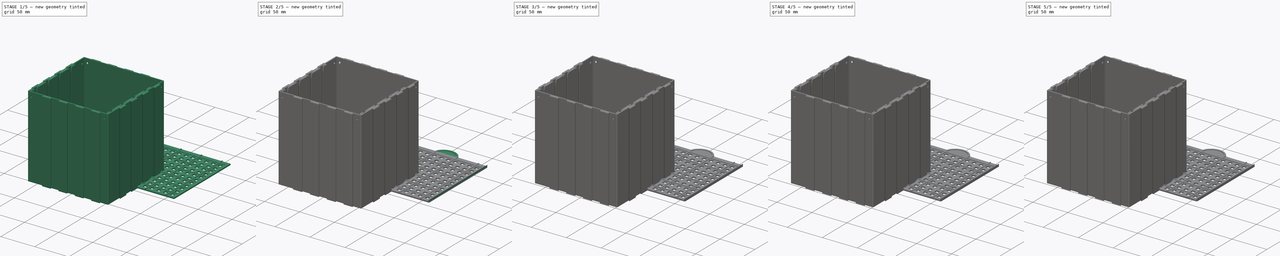
[diagram: build sequence overview — one tinted view per stage of 5, left to right]
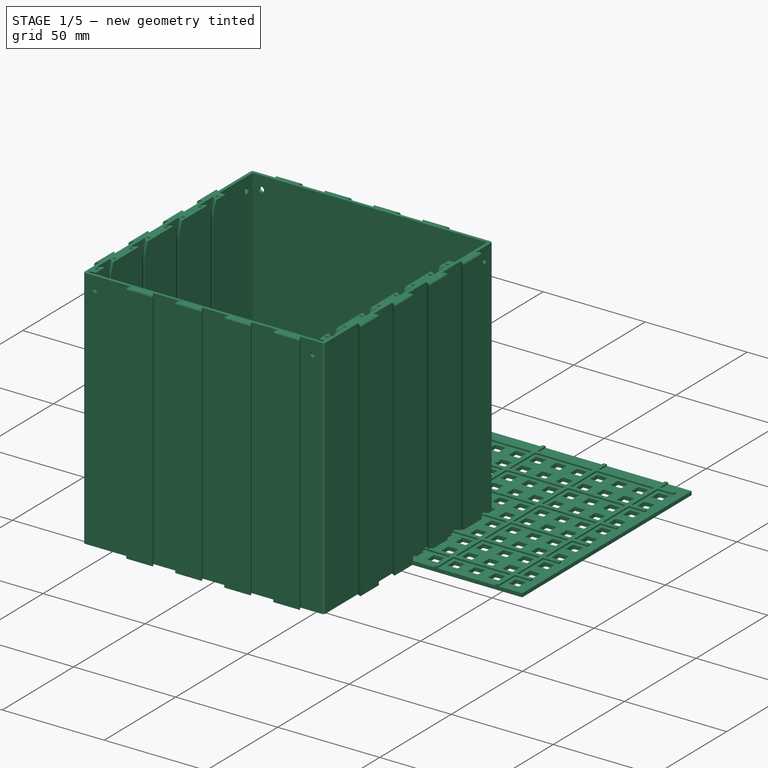
[diagram: stage 1 of 5 — iso view after this stage's code; geometry added in this stage tinted green]
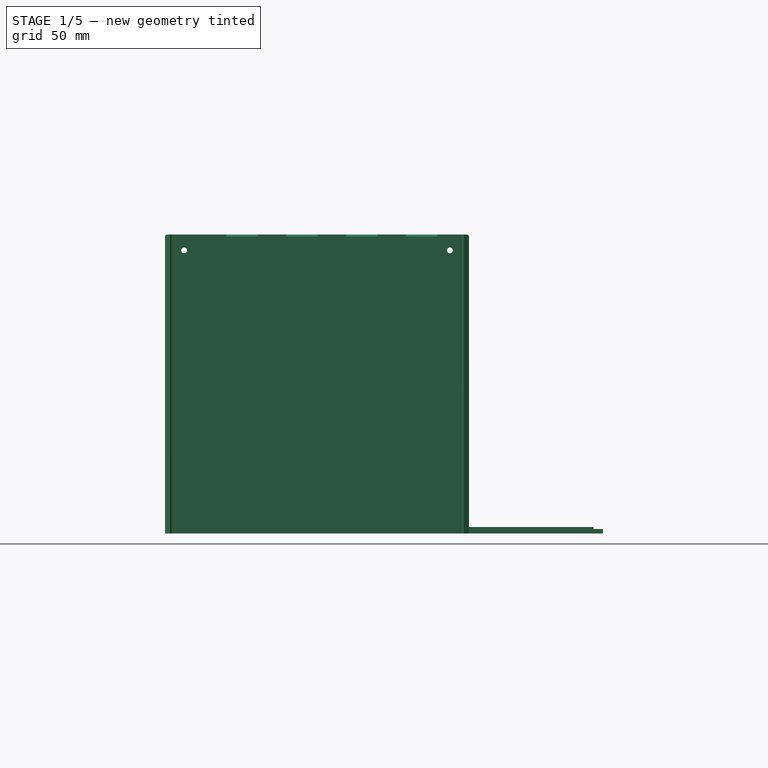
[diagram: stage 1 of 5 — front view after this stage's code; geometry added in this stage tinted green]
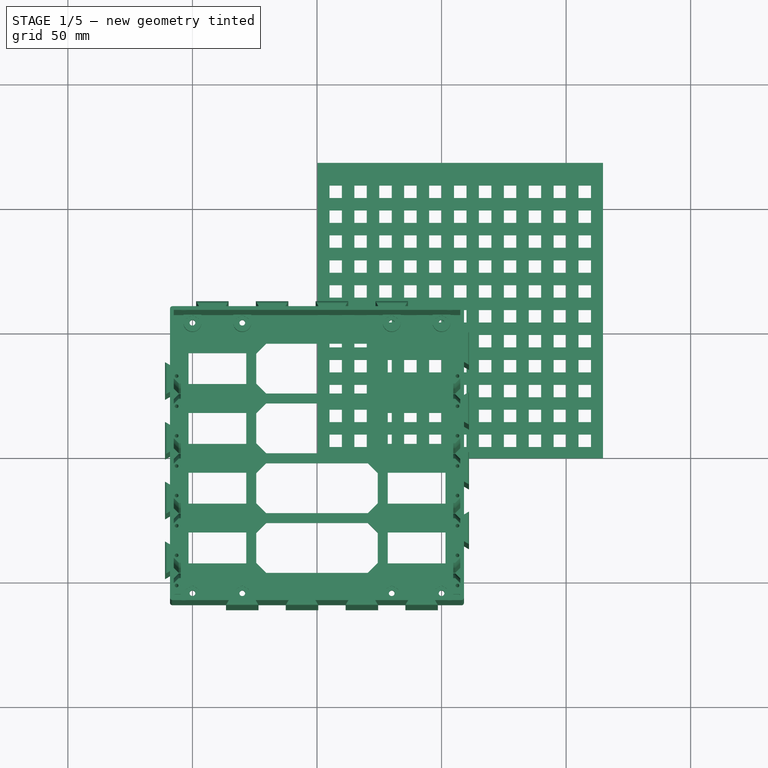
[diagram: stage 1 of 5 — top view after this stage's code; geometry added in this stage tinted green]
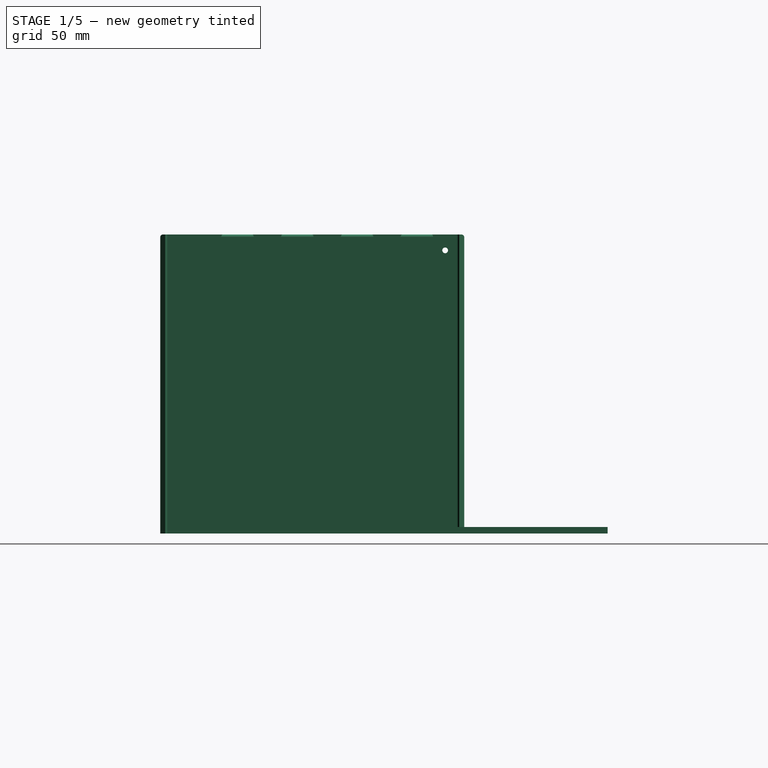
[diagram: stage 1 of 5 — right view after this stage's code; geometry added in this stage tinted green]
FCSTD DOCUMENT  (FreeCAD 0.21R33694 (Git))
Label: mbh2
License: All rights reserved
LicenseURL: https://en.wikipedia.org/wiki/All_rights_reserved
objects: Sketcher::SketchObject×77, PartDesign::Pad×63, PartDesign::Body×26, PartDesign::LinearPattern×24, PartDesign::FeatureBase×20, PartDesign::Pocket×11, PartDesign::Mirrored×10, PartDesign::Chamfer×10, Part::Mirroring×8, PartDesign::Fillet×7, PartDesign::MultiTransform×6, PartDesign::Plane×5, PartDesign::AdditiveWedge×4, PartDesign::SubtractiveWedge×3, PartDesign::Hole×2, Part::MultiFuse×2, Spreadsheet::Sheet×1, PartDesign::AdditiveBox×1, PartDesign::PolarPattern×1, PartDesign::AdditivePipe×1, +1 more types
note: 383 computed .brp shape members not serialized (recipe doc carries the construction recipe); baked Part::Feature solids carry a one-line shape summary decoded from their .brp

FEATURE [Spreadsheet::Sheet] Spreadsheet
  cells = A1='Name; B1='Value; C1='Description; D1='Fixed; E1='Calculated; F1='Public; G1='Axis; A2='bh_grid; B2(bh_grid)==5 mm; C2='The board holder grid size; D2='n; E2='n; F2='n; A3='bh_grid_x_size; B3(bh_grid_x_size)==trunc(bh_base_x / bh_grid / 2) * bh_grid * 2; E3='y; F3='n; G3='bh; A4='bh_grid_y_size; B4(bh_grid_y_size)==trunc((bh_base_y - bh_edge_to_center_of_first_grid_cutout_y - bh_grid) / bh_grid / 2) * bh_grid * 2; E4='y; F4='n; G4='bh; A5='bh_grid_x_amount; B5(bh_grid_x_amount)==trunc(bh_grid_x_size / bh_grid / 2) + 1; E5='y; F5='n; G5='bh; A6='bh_grid_y_amount; B6(bh_grid_y_amount)==trunc(bh_grid_y_size / bh_grid / 2) + 1; E6='y; F6='n; G6='bh; A7='bh_edge_to_usb_center_x; B7(bh_edge_to_usb_center_x)==3.5 * bh_grid; E7='y; G7='bh; A8='usb_socket_y; B8(usb_socket_y)==12.4 mm; C8='The cutout for the USB socket for (VID: Adafruit Industries LLC) (PID: 4055); D8='y; E8='n; F8='n; A9='usb_socket_x; B9(usb_socket_x)==23.2 mm; C9='The cutout for the USB socket for (VID: Adafruit Industries LLC) (PID: 4055); D9='y; E9='n; F9='n; A10='usb_socket_total_with_lip_x; B10(usb_socket_total_with_lip_x)==29 mm; C10='The total size with the lip of the USB socket for (VID: Adafruit Industries LLC) (PID: 4055); D10='y; E10='n; F10='n; A11='usb_socket_total_with_lip_y; B11(usb_socket_total_with_lip_y)==18.2 mm; C11='The total size with the lip of the USB socket for (VID: Adafruit Industries LLC) (PID: 4055); D11='y; E11='n; F11='n; A12='usb_socket_lip_only_z; B12(usb_socket_lip_only_z)==4.5 mm; C12='Only the lip of the USB socket for (VID: Adafruit Industries LLC) (PID: 4055); D12='y; E12='n; A13='usb_socket_lip_only_x; B13(usb_socket_lip_only_x)==(usb_socket_total_with_lip_x - usb_socket_x) / 2; C13='Only the lip of the USB socket for (VID: Adafruit Industries LLC) (PID: 4055); D13='y; E13='y; A14='usb_metal_gap; B14(usb_metal_gap)==2.7 mm; C14='The measured gap of the metal part of the USB plug between the casing and the lip of the usb socket; D14='y; E14='n; A15='usb_board_to_center_z; B15(usb_board_to_center_z)==mc_slot_offset_y / 2 - bh_base_z; A16='usb_metal_plug_width; B16(usb_metal_plug_width)==12.1 mm; A17='usb_metal_plug_height; B17(usb_metal_plug_height)==4.45 mm; A18='bh_base_x; B18(bh_base_x)==115 mm; C18='The base of the board holder; E18='y; G18='bh; A19='bh_base_y; B19(bh_base_y)==mc_grid - mc_back_thickness_z; C19='The base of the board holder; E19='y; G19='bh; A20='bh_base_z; B20(bh_base_z)==1.8 mm; E20='n; G20='bh; A24='bc_board_side_tol; B24(bc_board_side_tol)==0.2 mm; A25='bh_edge_to_center_of_first_grid_cutout_y; B25(bh_edge_to_center_of_first_grid_cutout_y)==usb_socket_lip_only_z + bh_grid / 2; D25='y; E25='y; G25='bh; A26='bh_support_beam_xy; B26(bh_support_beam_xy)==1.6 mm; C26='The width up the support beam to make the board holder more rigid, it should not interfere with the clip bottoms; D26='y; E26='n; G26='bh; A27='bh_support_beam_z; B27(bh_support_beam_z)==1.8 mm; D27='n; E27='n; G27='bh; A28='mc_back_thickness_z; B28(mc_back_thickness_z)==1.4 mm; A29='bh_stability_bar_z; B29(bh_stability_bar_z)==0.8 mm; A30='bh_stability_bar_width; B30(bh_stability_bar_width)==1.6 mm; A31='bh_stability_bar_x_size; B31(bh_stability_bar_x_size)==bh_base_x - 5 * bh_grid; A32='bh_stabiltiy_bar_x_amount; B32(bh_stabiltiy_bar_x_amount)==trunc(bh_stability_bar_x_size / bh_grid / 2) + 1; A33='bh_angle_connector_xz; B33(bh_angle_connector_xz)==2 mm; A34='bh_stability_bar_x_standoff; B34(bh_stability_bar_x_standoff)==bh_angle_connector_xz + 2 mm; A35='bh_stability_bar_y_size; B35(bh_stability_bar_y_size)==trunc((bh_base_y - bh_edge_to_center_of_first_grid_cutout_y - bh_grid) / bh_grid / 2) * bh_grid * 2; A36='bh_stabiltiy_bar_y_amount; B36(bh_stabiltiy_bar_y_amount)==trunc(bh_stability_bar_y_size / bh_grid / 2 + 1) + 1; A37='clip_height_from_board; B37(clip_height_from_board)==1.6 mm; A38='clip_overhang; B38(clip_overhang)==1.6 mm; A39='clip_thickness; B39(clip_thickness)==1.4 mm; A40='clip_deflection; B40(clip_deflection)==0.2 mm; C42=0; A43='center_usb_grid_offset_x; B43(center_usb_grid_offset_x)==bh_edge_to_usb_center_x - bh_grid * 3.5; D43='y; A44='srh_length; B44(srh_length)==bh_grid * 5; A45='srh_width; B45(srh_width)==bh_grid * 3; A46='srh_center_diameter; B46(srh_center_diameter)==5 mm; A47='srh_bottom_cutout; B47(srh_bottom_cutout)==srh_center_diameter * 0.8; A48='srh_ridge_grid; B48(srh_ridge_grid)==1.2 mm; D48='n; A51='src_bend_diameter; B51(src_bend_diameter)==0.4 mm; A52='src_clip_thickness; B52(src_clip_thickness)==1.4 mm; A53=0; A54='mc_inner_base_x; B54(mc_inner_base_x)==bh_base_x; E54='y; A55='mc_inner_base_y; B55(mc_inner_base_y)==mc_inner_base_x; A56='mc_edge_inside_support_x; B56(mc_edge_inside_support_x)==4 mm; C56='The extra support on the extentding inside for the module container; E56='n; A57='mc_grid; B57(mc_grid)==mc_inner_base_x + mc_inner_thickness * 2 + mc_dove_extrusion; E57='y; A58='mc_inner_thickness; B58(mc_inner_thickness)==1.5 mm; D58='y; E58='n; A59='mc_dove_extrusion; B59(mc_dove_extrusion)==2 mm; D59='y; E59='n; A60='mc_dove_angle; B60(mc_dove_angle)==60 °; A61='mc_slot_offset_y; B61(mc_slot_offset_y)==24 mm; A62='mc_slot_count; B62(mc_slot_count)=4; E62='n; A63='mc_bottom_center_dove_tail; B63(mc_bottom_center_dove_tail)==mc_slot_offset_y * (mc_slot_count / 2 - 0.25); A64='mc_dove_wing; B64(mc_dove_wing)==mc_dove_extrusion / tan(mc_dove_angle); A65='mc_dove_outer_shorter; B65(mc_dove_outer_shorter)==(mc_slot_offset_y + 2 * mc_dove_wing - 0.2 mm) / 2; E65='y; A66='mc_base_z; B66(mc_base_z)==mc_grid; A67='mc_bottom_usb_center_y; B67(mc_bottom_usb_center_y)==mc_slot_offset_y * mc_slot_count / 2 - mc_slot_offset_y / 2; A68='mc_top_of_bottom_board_y; B68(mc_top_of_bottom_board_y)==mc_bottom_usb_center_y + usb_board_to_center_z; +64 more cells
FEATURE [Sketcher::SketchObject] Sketch  label="Sketch_base"
  FullyConstrained = true
  MapMode = 5
  Support = -> [XY_Plane]
  expr: Constraints[11] = Spreadsheet.bc_board_side_tol
  expr: Constraints[6] = Spreadsheet.bh_base_y
  expr: Constraints[7] = Spreadsheet.bh_base_x - Spreadsheet.bc_board_side_tol * 2
  sketch-geometry (4):
    g0: LineSegment StartX=0.2 StartY=0 StartZ=0 EndX=114.8 EndY=0 EndZ=0
    g1: LineSegment StartX=114.8 StartY=0 StartZ=0 EndX=114.8 EndY=118.6 EndZ=0
    g2: LineSegment StartX=114.8 StartY=118.6 StartZ=0 EndX=0.2 EndY=118.6 EndZ=0
    g3: LineSegment StartX=0.2 StartY=118.6 StartZ=0 EndX=0.2 EndY=0 EndZ=0
  constraints (12):
    c: Coincident(g0,g1)
    c: Coincident(g1,g2)
    c: Coincident(g2,g3)
    c: Horizontal(g2)
    c: Vertical(g1)
    c: Vertical(g3)
    c: DistanceY(g1,g1) = 118.6
    c: DistanceX(g2,g2) = 114.6
    c: Coincident(g3,g0)
    c: Horizontal(g0)
    c: PointOnObject(g0,g-1)
    c: DistanceX(g-1,g0) = 0.2
FEATURE [PartDesign::Pad] Pad  label="Pad_base"
  Direction = (0,0,1)
  Length = 1.8
  Length2 = 10
  Profile = -> Sketch
  ReferenceAxis = -> Sketch [N_Axis]
  Type = 0
  expr: Length = Spreadsheet.bh_base_z
FEATURE [Sketcher::SketchObject] Sketch001  label="Sketch_bh_grid_start"
  FullyConstrained = true
  MapMode = 5
  Support = -> [XY_Plane]
  expr: Constraints[10] = Spreadsheet.bh_grid
  expr: Constraints[11] = Spreadsheet.bh_edge_to_center_of_first_grid_cutout_y
  expr: Constraints[12] = Spreadsheet.bh_grid
  sketch-geometry (5):
    g0: LineSegment StartX=5 StartY=4.5 StartZ=0 EndX=5 EndY=9.5 EndZ=0
    g1: LineSegment StartX=5 StartY=9.5 StartZ=0 EndX=10 EndY=9.5 EndZ=0
    g2: LineSegment StartX=10 StartY=9.5 StartZ=0 EndX=10 EndY=4.5 EndZ=0
    g3: LineSegment StartX=10 StartY=4.5 StartZ=0 EndX=5 EndY=4.5 EndZ=0
    g4: GeomPoint X=7.5 Y=7 Z=0
  constraints (13):
    c: Coincident(g0,g1)
    c: Coincident(g1,g2)
    c: Coincident(g2,g3)
    c: Coincident(g3,g0)
    c: Horizontal(g1)
    c: Horizontal(g3)
    c: Vertical(g0)
    c: Vertical(g2)
    c: Symmetric(g1,g0,g4)
    c: Equal(g2,g3)
    c: DistanceX(g3,g3) = 5
    c: DistanceY(g-1,g4) = 7
    c: DistanceX(g-1,g0) = 5
FEATURE [PartDesign::Pocket] Pocket  label="Pocket_grid_start"
  BaseFeature = -> Pad
  Direction = (0,0,-1)
  Length = 5
  Length2 = 5
  Profile = -> Sketch001
  ReferenceAxis = -> Sketch001 [N_Axis]
  Reversed = true
  Type = 1
FEATURE [PartDesign::Plane] DatumPlane  label="DatumPlane_center_x_usb"
  AttachmentOffset = pos=(0,0,17.5) rot=(0,0,1;0rad)
  Length = 170.879
  MapMode = 4
  Placement = pos=(17.5,0,0) rot=(0.57735,0.57735,0.57735;2.0944rad)
  ResizeMode = 0
  Support = -> [XY_Plane]
  Width = 67.5137
  expr: .AttachmentOffset.Base.z = Spreadsheet.bh_edge_to_usb_center_x
FEATURE [PartDesign::Plane] DatumPlane001  label="DatumPlane_center_of_start_grid"
  AttachmentOffset = pos=(0,0,-7) rot=(0,0,1;0rad)
  Length = 156.521
  MapMode = 3
  Placement = pos=(0,7,-1.6e-15) rot=(1,0,0;1.5708rad)
  ResizeMode = 0
  Support = -> [XY_Plane]
  Width = 66.7212
  expr: .AttachmentOffset.Base.z = -Spreadsheet.bh_edge_to_center_of_first_grid_cutout_y
FEATURE [PartDesign::LinearPattern] LinearPattern
  Direction = -> Sketch001 [H_Axis]
  Length = 110
  Occurrences = 12
  expr: Length = Spreadsheet.bh_grid_x_size
  expr: Occurrences = Spreadsheet.bh_grid_x_amount
FEATURE [PartDesign::LinearPattern] LinearPattern001
  Direction = -> Sketch001 [V_Axis]
  Length = 100
  Occurrences = 11
  expr: Length = Spreadsheet.bh_grid_y_size
  expr: Occurrences = Spreadsheet.bh_grid_y_amount
FEATURE [PartDesign::MultiTransform] MultiTransform  label="MultiTransform_grid"
  BaseFeature = -> Pocket
  Originals = -> [Pocket]
  Transformations = -> [LinearPattern,LinearPattern001]
FEATURE [Sketcher::SketchObject] Sketch002  label="Sketch_stablilty_bar_y"
  FullyConstrained = true
  MapMode = 5
  Support = -> [XY_Plane]
  expr: Constraints[10] = Spreadsheet.bh_base_y
  expr: Constraints[12] = Spreadsheet.bh_grid * 2.5
  expr: Constraints[8] = Spreadsheet.bh_stability_bar_width
  sketch-geometry (5):
    g0: LineSegment StartX=11.7 StartY=0 StartZ=0 EndX=13.3 EndY=0 EndZ=0
    g1: LineSegment StartX=13.3 StartY=0 StartZ=0 EndX=13.3 EndY=118.6 EndZ=0
    g2: LineSegment StartX=13.3 StartY=118.6 StartZ=0 EndX=11.7 EndY=118.6 EndZ=0
    g3: LineSegment StartX=11.7 StartY=118.6 StartZ=0 EndX=11.7 EndY=0 EndZ=0
    g4: GeomPoint X=12.5 Y=0 Z=0
  constraints (13):
    c: Coincident(g0,g1)
    c: Coincident(g1,g2)
    c: Coincident(g2,g3)
    c: Coincident(g3,g0)
    c: Horizontal(g0)
    c: Horizontal(g2)
    c: Vertical(g1)
    c: Vertical(g3)
    c: DistanceX(g0,g0) = 1.6
    c: PointOnObject(g0,g-1)
    c: DistanceY(g1,g1) = 118.6
    c: Symmetric(g0,g0,g4)
    c: DistanceX(g-1,g4) = 12.5
FEATURE [PartDesign::Pad] Pad001  label="Pad_stablilty_bar_y"
  BaseFeature = -> MultiTransform
  Direction = (0,0,1)
  Length = 2.6
  Length2 = 10
  Profile = -> Sketch002
  ReferenceAxis = -> Sketch002 [N_Axis]
  Type = 0
  expr: Length = Spreadsheet.bh_base_z + Spreadsheet.bh_stability_bar_z
FEATURE [PartDesign::LinearPattern] LinearPattern002  label="LinearPattern_stablilty_bar_y"
  BaseFeature = -> Pad001
  Direction = -> Sketch002 [H_Axis]
  Length = 90
  Occurrences = 4
  Originals = -> [Pad001]
  expr: Length = Spreadsheet.bh_stability_bar_x_size
  expr: Occurrences = trunc(Spreadsheet.bh_stabiltiy_bar_x_amount / 2) - 1
FEATURE [Sketcher::SketchObject] Sketch003  label="Sketch_stablilty_bar_x"
  FullyConstrained = true
  MapMode = 5
  Support = -> [XY_Plane]
  expr: Constraints[10] = Spreadsheet.bh_stability_bar_x_standoff
  expr: Constraints[11] = Spreadsheet.bh_base_x - Spreadsheet.bh_stability_bar_x_standoff * 2
  expr: Constraints[12] = Spreadsheet.bh_grid + Spreadsheet.bh_edge_to_center_of_first_grid_cutout_y
  expr: Constraints[9] = Spreadsheet.bh_stability_bar_width
  sketch-geometry (5):
    g0: LineSegment StartX=4 StartY=12.8 StartZ=0 EndX=4 EndY=11.2 EndZ=0
    g1: LineSegment StartX=4 StartY=11.2 StartZ=0 EndX=111 EndY=11.2 EndZ=0
    g2: LineSegment StartX=111 StartY=11.2 StartZ=0 EndX=111 EndY=12.8 EndZ=0
    g3: LineSegment StartX=111 StartY=12.8 StartZ=0 EndX=4 EndY=12.8 EndZ=0
    g4: GeomPoint X=57.5 Y=12 Z=0
  constraints (13):
    c: Coincident(g0,g1)
    c: Coincident(g1,g2)
    c: Coincident(g2,g3)
    c: Coincident(g3,g0)
    c: Horizontal(g1)
    c: Horizontal(g3)
    c: Vertical(g0)
    c: Vertical(g2)
    c: Symmetric(g1,g0,g4)
    c: DistanceY(g0,g0) = 1.6
    c: DistanceX(g-1,g0) = 4
    c: DistanceX(g1,g1) = 107
    c: DistanceY(g-1,g4) = 12
FEATURE [PartDesign::Pad] Pad002  label="Pad_stablilty_bar_x"
  BaseFeature = -> LinearPattern002
  Direction = (0,0,1)
  Length = 2.6
  Length2 = 10
  Profile = -> Sketch003
  ReferenceAxis = -> Sketch003 [N_Axis]
  Type = 0
  expr: Length = Spreadsheet.bh_base_z + Spreadsheet.bh_stability_bar_z
FEATURE [PartDesign::LinearPattern] LinearPattern003  label="LinearPattern_stablilty_bar_x"
  BaseFeature = -> Pad002
  Direction = -> Sketch003 [V_Axis]
  Length = 100
  Occurrences = 6
  Originals = -> [Pad002]
  expr: Length = Spreadsheet.bh_stability_bar_y_size
  expr: Occurrences = Spreadsheet.bh_stabiltiy_bar_y_amount / 2
FEATURE [PartDesign::Body] Body001  label="umh"
  Group = -> [Sketch006,Pad004,Sketch007,Pad005,Sketch008,Pocket001,Sketch009,Pocket002,Wedge001,Box,Fillet002,Fillet006]
  Origin = -> Origin001
  Placement = pos=(-52.7,-46.2,5.9) rot=(0,0,1;0rad)
  Tip = -> Fillet006
  expr: .Placement.Base.x = -(Spreadsheet.mc_inner_base_x / 2 - Spreadsheet.bh_edge_to_usb_center_x + Spreadsheet.bh_grid * 2.5 + Spreadsheet.clip_deflection)
  expr: .Placement.Base.y = -Spreadsheet.mc_top_of_bottom_board_y
  expr: .Placement.Base.z = Spreadsheet.bh_edge_to_center_of_first_grid_cutout_y + Spreadsheet.mc_back_thickness_z - Spreadsheet.bh_grid / 2
FEATURE [Sketcher::SketchObject] Sketch013  label="Sketch_mc_inner_base"
  FullyConstrained = true
  MapMode = 5
  Support = -> [XY_Plane004]
  expr: Constraints[10] = Spreadsheet.mc_inner_base_x
  expr: Constraints[11] = Spreadsheet.mc_inner_base_y
  sketch-geometry (5):
    g0: LineSegment StartX=-57.5 StartY=57.5 StartZ=0 EndX=-57.5 EndY=-57.5 EndZ=0
    g1: LineSegment StartX=-57.5 StartY=-57.5 StartZ=0 EndX=57.5 EndY=-57.5 EndZ=0
    g2: LineSegment StartX=57.5 StartY=-57.5 StartZ=0 EndX=57.5 EndY=57.5 EndZ=0
    g3: LineSegment StartX=57.5 StartY=57.5 StartZ=0 EndX=-57.5 EndY=57.5 EndZ=0
    g4: GeomPoint X=6e-16 Y=-1.3e-15 Z=0
  constraints (12):
    c: Coincident(g0,g1)
    c: Coincident(g1,g2)
    c: Coincident(g2,g3)
    c: Coincident(g3,g0)
    c: Horizontal(g1)
    c: Horizontal(g3)
    c: Vertical(g0)
    c: Vertical(g2)
    c: Symmetric(g1,g0,g4)
    c: Coincident(g4,g-1)
    c: DistanceX(g3,g3) = 115
    c: DistanceY(g0,g0) = 115
FEATURE [Sketcher::SketchObject] Sketch014  label="Sketch_mc_outer_base"
  FullyConstrained = true
  MapMode = 5
  Support = -> [XY_Plane004]
  expr: Constraints[10] = Spreadsheet.mc_inner_base_x
  expr: Constraints[11] = Spreadsheet.mc_inner_base_y
  expr: Constraints[22] = Spreadsheet.mc_inner_base_x + Spreadsheet.mc_inner_thickness * 2
  expr: Constraints[23] = Spreadsheet.mc_inner_base_y + Spreadsheet.mc_inner_thickness * 2
  sketch-geometry (10):
    g0: LineSegment StartX=-57.5 StartY=-57.5 StartZ=0 EndX=-57.5 EndY=57.5 EndZ=0
    g1: LineSegment StartX=-57.5 StartY=57.5 StartZ=0 EndX=57.5 EndY=57.5 EndZ=0
    g2: LineSegment StartX=57.5 StartY=57.5 StartZ=0 EndX=57.5 EndY=-57.5 EndZ=0
    g3: LineSegment StartX=57.5 StartY=-57.5 StartZ=0 EndX=-57.5 EndY=-57.5 EndZ=0
    g4: GeomPoint X=0 Y=0 Z=0
    g5: LineSegment StartX=-59 StartY=-59 StartZ=0 EndX=-59 EndY=59 EndZ=0
    g6: LineSegment StartX=-59 StartY=59 StartZ=0 EndX=59 EndY=59 EndZ=0
    g7: LineSegment StartX=59 StartY=59 StartZ=0 EndX=59 EndY=-59 EndZ=0
    g8: LineSegment StartX=59 StartY=-59 StartZ=0 EndX=-59 EndY=-59 EndZ=0
    g9: GeomPoint X=0 Y=0 Z=0
  constraints (24):
    c: Coincident(g0,g1)
    c: Coincident(g1,g2)
    c: Coincident(g2,g3)
    c: Coincident(g3,g0)
    c: Horizontal(g1)
    c: Horizontal(g3)
    c: Vertical(g0)
    c: Vertical(g2)
    c: Symmetric(g1,g0,g4)
    c: Coincident(g4,g-1)
    c: DistanceX(g1,g1) = 115
    c: DistanceY(g0,g0) = 115
    c: Coincident(g5,g6)
    c: Coincident(g6,g7)
    c: Coincident(g7,g8)
    c: Coincident(g8,g5)
    c: Horizontal(g6)
    c: Horizontal(g8)
    c: Vertical(g5)
    c: Vertical(g7)
    c: Symmetric(g6,g5,g9)
    c: Coincident(g9,g4)
    c: DistanceX(g6,g6) = 118
    c: DistanceY(g5,g5) = 118
FEATURE [PartDesign::Pad] Pad009  label="Pad_mc_inner_base"
  Direction = (0,0,1)
  Length = 1.4
  Length2 = 10
  Profile = -> Sketch013
  ReferenceAxis = -> Sketch013 [N_Axis]
  Type = 0
  expr: Length = Spreadsheet.mc_back_thickness_z
FEATURE [PartDesign::Pad] Pad010  label="Pad_mc_outer_base"
  BaseFeature = -> Pad009
  Direction = (0,0,1)
  Length = 120
  Length2 = 10
  Profile = -> Sketch014
  ReferenceAxis = -> Sketch014 [N_Axis]
  Type = 0
  expr: Length = Spreadsheet.mc_base_z
FEATURE [Sketcher::SketchObject] Sketch015  label="Sketch_mc_dove"
  FullyConstrained = true
  MapMode = 5
  Support = -> [XY_Plane004]
  expr: Constraints[10] = Spreadsheet.mc_inner_base_x / 2 + Spreadsheet.mc_inner_thickness
  expr: Constraints[11] = Spreadsheet.mc_bottom_center_dove_tail
  expr: Constraints[12] = Spreadsheet.mc_dove_outer_shorter
  expr: Constraints[7] = 180 ° - Spreadsheet.mc_dove_angle
  expr: Constraints[9] = Spreadsheet.mc_dove_extrusion
  sketch-geometry (5):
    g0: LineSegment StartX=-59 StartY=-36.6274 StartZ=0 EndX=-59 EndY=-47.3726 EndZ=0
    g1: GeomPoint X=-59 Y=-42 Z=0
    g2: LineSegment StartX=-61 StartY=-35.4726 StartZ=0 EndX=-61 EndY=-48.5274 EndZ=0
    g3: LineSegment StartX=-61 StartY=-48.5274 StartZ=0 EndX=-59 EndY=-47.3726 EndZ=0
    g4: LineSegment StartX=-59 StartY=-36.6274 StartZ=0 EndX=-61 EndY=-35.4726 EndZ=0
  constraints (13):
    c: Vertical(g0)
    c: Symmetric(g0,g0,g1)
    c: Vertical(g2)
    c: Coincident(g3,g2)
    c: Coincident(g3,g0)
    c: Coincident(g4,g0)
    c: Coincident(g4,g2)
    c: Angle(g4,g0) = 2.0944
    c: Equal(g4,g3)
    c: DistanceX(g2,g0) = 2
    c: DistanceX(g1,g-1) = 59
    c: DistanceY(g1,g-1) = 42
    c: DistanceY(g2,g2) = 13.0547
FEATURE [PartDesign::Pad] Pad011  label="Pad_mc_dove"
  BaseFeature = -> Pad010
  Direction = (0,0,1)
  Length = 120
  Length2 = 10
  Profile = -> Sketch015
  ReferenceAxis = -> Sketch015 [N_Axis]
  Type = 0
  expr: Length = Spreadsheet.mc_base_z
FEATURE [PartDesign::LinearPattern] LinearPattern006
  Direction = -> Sketch015 [V_Axis]
  Length = 72
  Occurrences = 4
  expr: Length = Spreadsheet.mc_slot_offset_y * (Spreadsheet.mc_slot_count - 1)
  expr: Occurrences = Spreadsheet.mc_slot_count
FEATURE [PartDesign::PolarPattern] PolarPattern
  Angle = 360
  Axis = -> Sketch015 [N_Axis]
  Occurrences = 4
FEATURE [PartDesign::MultiTransform] MultiTransform001  label="MultiTransform_mc_dove"
  BaseFeature = -> Pad011
  Originals = -> [Pad011]
  Transformations = -> [LinearPattern006,PolarPattern]
FEATURE [Sketcher::SketchObject] Sketch016  label="Sketch_mc_usb_cutout"
  FullyConstrained = true
  MapMode = 5
  Support = -> [XY_Plane004]
  expr: Constraints[10] = Spreadsheet.bh_base_x / 2 - Spreadsheet.bh_edge_to_usb_center_x
  expr: Constraints[11] = Spreadsheet.usb_socket_y
  expr: Constraints[12] = Spreadsheet.usb_socket_x
  expr: Constraints[9] = Spreadsheet.mc_bottom_usb_center_y
  sketch-geometry (5):
    g0: LineSegment StartX=-28.4 StartY=-29.8 StartZ=0 EndX=-28.4 EndY=-42.2 EndZ=0
    g1: LineSegment StartX=-28.4 StartY=-42.2 StartZ=0 EndX=-51.6 EndY=-42.2 EndZ=0
    g2: LineSegment StartX=-51.6 StartY=-42.2 StartZ=0 EndX=-51.6 EndY=-29.8 EndZ=0
    g3: LineSegment StartX=-51.6 StartY=-29.8 StartZ=0 EndX=-28.4 EndY=-29.8 EndZ=0
    g4: GeomPoint X=-40 Y=-36 Z=0
  constraints (13):
    c: Coincident(g0,g1)
    c: Coincident(g1,g2)
    c: Coincident(g2,g3)
    c: Coincident(g3,g0)
    c: Horizontal(g1)
    c: Horizontal(g3)
    c: Vertical(g0)
    c: Vertical(g2)
    c: Symmetric(g1,g0,g4)
    c: DistanceY(g4,g-1) = 36
    c: DistanceX(g4,g-1) = 40
    c: DistanceY(g2,g2) = 12.4
    c: DistanceX(g3,g3) = 23.2
FEATURE [PartDesign::Pocket] Pocket003  label="Pocket_mc_usb_cutout"
  BaseFeature = -> MultiTransform001
  Direction = (0,0,-1)
  Length = 5
  Length2 = 5
  Profile = -> Sketch016
  ReferenceAxis = -> Sketch016 [N_Axis]
  Reversed = true
  Type = 1
FEATURE [PartDesign::Mirrored] Mirrored001
  MirrorPlane = -> Sketch016 [V_Axis]
FEATURE [PartDesign::LinearPattern] LinearPattern007
  Direction = -> Sketch016 [V_Axis]
  Length = 72
  Occurrences = 4
  expr: Length = Spreadsheet.mc_slot_offset_y * (Spreadsheet.mc_slot_count - 1)
  expr: Occurrences = Spreadsheet.mc_slot_count
FEATURE [PartDesign::MultiTransform] MultiTransform002  label="MultiTransform_mc_usb_cutout"
  BaseFeature = -> Pocket003
  Originals = -> [Pocket003]
  Transformations = -> [Mirrored001,LinearPattern007]
FEATURE [Sketcher::SketchObject] Sketch017  label="Sketch_mc_cutout"
  FullyConstrained = true
  MapMode = 5
  Support = -> [XY_Plane004]
  expr: Constraints[16] = Spreadsheet.mc_inner_base_x - 2 * Spreadsheet.bh_edge_to_usb_center_x - Spreadsheet.usb_socket_x - 8 mm
  expr: Constraints[27] = Spreadsheet.mc_slot_offset_y - 4 mm
  expr: Constraints[4] = Spreadsheet.mc_bottom_usb_center_y
  sketch-geometry (11):
    g0: LineSegment StartX=-24.4 StartY=-30 StartZ=0 EndX=-24.4 EndY=-42 EndZ=0
    g1: LineSegment StartX=-20.4 StartY=-46 StartZ=0 EndX=20.4 EndY=-46 EndZ=0
    g2: LineSegment StartX=24.4 StartY=-42 StartZ=0 EndX=24.4 EndY=-30 EndZ=0
    g3: LineSegment StartX=20.4 StartY=-26 StartZ=0 EndX=-20.4 EndY=-26 EndZ=0
    g4: GeomPoint X=0 Y=-36 Z=0
    g5: LineSegment StartX=-24.4 StartY=-30 StartZ=0 EndX=-20.4 EndY=-26 EndZ=0
    g6: LineSegment StartX=20.4 StartY=-26 StartZ=0 EndX=24.4 EndY=-30 EndZ=0
    g7: LineSegment StartX=24.4 StartY=-42 StartZ=0 EndX=20.4 EndY=-46 EndZ=0
    g8: LineSegment StartX=-24.4 StartY=-42 StartZ=0 EndX=-20.4 EndY=-46 EndZ=0
    g9: GeomPoint X=-24.4 Y=-36 Z=0
    g10: GeomPoint X=0 Y=-26 Z=0
  constraints (28):
    c: Horizontal(g1)
    c: Horizontal(g3)
    c: Vertical(g0)
    c: Vertical(g2)
    c: DistanceY(g4,g-1) = 36
    c: Vertical(g4,g-1)
    c: Coincident(g0,g5)
    c: Coincident(g3,g5)
    c: Coincident(g0,g8)
    c: Coincident(g1,g8)
    c: Coincident(g1,g7)
    c: Coincident(g2,g7)
    c: Coincident(g2,g6)
    c: Coincident(g3,g6)
    c: Equal(g5,g6)
    c: Equal(g6,g7)
    c: DistanceX(g0,g2) = 48.8
    c: DistanceX(g0,g3) = 4
    c: Symmetric(g3,g3,g10)
    c: Symmetric(g0,g0,g9)
    c: Horizontal(g9,g4)
    c: Vertical(g10,g4)
    c: Equal(g0,g2)
    c: Equal(g3,g1)
    c: DistanceY(g0,g3) = 4
    c: DistanceX(g0,g1) = 4
    c: DistanceY(g1,g0) = 4
    c: DistanceY(g1,g3) = 20
FEATURE [PartDesign::Pocket] Pocket004  label="Pocket_mc_cutout"
  BaseFeature = -> MultiTransform002
  Direction = (0,0,-1)
  Length = 5
  Length2 = 5
  Profile = -> Sketch017
  ReferenceAxis = -> Sketch017 [N_Axis]
  Reversed = true
  Type = 1
FEATURE [PartDesign::LinearPattern] LinearPattern008  label="LinearPattern_mc_cutout"
  BaseFeature = -> Pocket004
  Direction = -> Sketch017 [V_Axis]
  Length = 72
  Occurrences = 4
  Originals = -> [Pocket004]
  expr: Length = Spreadsheet.mc_slot_offset_y * (Spreadsheet.mc_slot_count - 1)
  expr: Occurrences = Spreadsheet.mc_slot_count
FEATURE [Sketcher::SketchObject] Sketch021  label="Sketch_mc_slot_line"
  AttachmentOffset = pos=(0,0,-57.5) rot=(0,0,1;0rad)
  FullyConstrained = true
  MapMode = 5
  Placement = pos=(-57.5,1.28e-14,-1.28e-14) rot=(0.57735,0.57735,0.57735;2.0944rad)
  Support = -> [YZ_Plane004]
  expr: .AttachmentOffset.Base.z = -Spreadsheet.mc_inner_base_x / 2
  expr: Constraints[3] = Spreadsheet.mc_base_z
  expr: Constraints[4] = Spreadsheet.mc_slot_flair
  expr: Constraints[5] = Spreadsheet.mc_slot_flair * 4
  expr: Constraints[6] = Spreadsheet.mc_top_of_bottom_board_y
  sketch-geometry (2):
    g0: LineSegment StartX=-46.2 StartY=0 StartZ=0 EndX=-46.2 EndY=112 EndZ=0
    g1: ArcOfCircle CenterX=-29.2 CenterY=112 CenterZ=0 NormalX=0 NormalY=0 NormalZ=1 AngleXU=0 Radius=17 StartAngle=2.65164 EndAngle=3.14159
  constraints (7):
    c: Vertical(g0)
    c: Tangent(g1,g0) = 1.5708
    c: DistanceY(g-1,g0) = 0
    c: DistanceY(g-1,g1) = 120
    c: DistanceX(g0,g1) = 2
    c: DistanceY(g0,g1) = 8
    c: DistanceX(g0,g-1) = 46.2
FEATURE [Sketcher::SketchObject] Sketch022  label="Sketch_mc_angle_holder"
  AttachmentOffset = pos=(0,0,1.4) rot=(0,0,1;0rad)
  ExternalGeometry = -> [Sketch021]
  FullyConstrained = true
  MapMode = 5
  Placement = pos=(0,0,1.4) rot=(0,0,1;0rad)
  Support = -> [XY_Plane004]
  expr: .AttachmentOffset.Base.z = Spreadsheet.mc_back_thickness_z
  expr: .Constraints.wear_support = Spreadsheet.mc_angle_connector_extra_x
  expr: Constraints[14] = Spreadsheet.mc_angle_connector_y + Spreadsheet.mc_angle_connector_x - 0.6 mm
  expr: Constraints[1] = Spreadsheet.mc_angle_connector_x
  expr: Constraints[2] = Spreadsheet.mc_angle_connector_x
  expr: Constraints[6] = Spreadsheet.mc_angle_connector_y
  sketch-geometry (6):
    g0: LineSegment StartX=-55.5 StartY=-46.025 StartZ=0 EndX=-57.5 EndY=-44.025 EndZ=0
    g1: ArcOfCircle CenterX=-56.9 CenterY=-39.025 CenterZ=0 NormalX=0 NormalY=0 NormalZ=1 AngleXU=0 Radius=0.6 StartAngle=3.14159 EndAngle=4.71239
    g2: LineSegment StartX=-57.5 StartY=-44.025 StartZ=0 EndX=-57.5 EndY=-39.025 EndZ=0
    g3: LineSegment StartX=-56.9 StartY=-39.625 StartZ=0 EndX=-54.7 EndY=-39.625 EndZ=0
    g4: LineSegment StartX=-55.5 StartY=-46.025 StartZ=0 EndX=-54.7 EndY=-46.025 EndZ=0
    g5: LineSegment StartX=-54.7 StartY=-46.025 StartZ=0 EndX=-54.7 EndY=-39.625 EndZ=0
  constraints (18):
    c: Vertical(g0,g-3)
    c: DistanceY(g0,g0) = 2
    c: DistanceX(g0,g0) = 2
    c: Vertical(g1,g-3)
    c: Coincident(g2,g0)
    c: Coincident(g2,g1)
    c: DistanceY(g2,g2) = 5
    c: Coincident(g4,g0)
    c: Horizontal(g4)
    c: DistanceX(g4,g4) = 0.8  'wear_support'
    c: Coincident(g5,g4)
    c: Vertical(g5)
    c: Coincident(g5,g3)
    c: DistanceY(g-3,g0) = 0.175  'tol'
    c: DistanceY(g5,g5) = 6.4
    c: Horizontal(g3)
    c: Tangent(g1,g3) = -1.5708
    c: Horizontal(g1,g1)
FEATURE [PartDesign::AdditivePipe] AdditivePipe
  AuxilleryCurvelinear = true
  AuxillerySpineTangent = false
  BaseFeature = -> LinearPattern008
  Binormal = (0,0,0)
  Mode = 1
  Profile = -> Sketch022
  Spine = -> Sketch021 [Edge1,Edge2]
  SpineTangent = false
  Transformation = 0
  Transition = 0
FEATURE [PartDesign::Plane] DatumPlane003  label="DatumPlane_mc_center_of_bottom_board"
  AttachmentOffset = pos=(0,0,47.1) rot=(0,0,1;0rad)
  Length = 148.601
  MapMode = 5
  Placement = pos=(0,-47.1,-1.05e-14) rot=(1,0,0;1.5708rad)
  ResizeMode = 0
  Support = -> [XZ_Plane004]
  Width = 171.601
  expr: .AttachmentOffset.Base.z = Spreadsheet.mc_top_of_bottom_board_y + Spreadsheet.bh_base_z / 2
FEATURE [Sketcher::SketchObject] Sketch023  label="Sketch_mc_light_pipe_hole"
  FullyConstrained = true
  MapMode = 5
  Support = -> [XY_Plane004]
  expr: Constraints[0] = Spreadsheet.mc_light_pipe_diameter
  expr: Constraints[1] = Spreadsheet.mc_inner_base_x / 2 - Spreadsheet.mc_light_pipe_diameter / 2 - Spreadsheet.mc_angle_connector_x / 2 + 0.6 mm
  expr: Constraints[2] = Spreadsheet.mc_top_of_bottom_board_y - Spreadsheet.mc_angle_connector_x + Spreadsheet.mc_light_pipe_diameter / 2 - Spreadsheet.mc_angle_connector_y / 2 - 1.4 mm
  sketch-geometry (1):
    g0: Circle CenterX=-56.36 CenterY=-41.04 CenterZ=0 NormalX=0 NormalY=0 NormalZ=1 AngleXU=0 Radius=0.74
  constraints (3):
    c: Diameter(g0) = 1.48
    c: DistanceX(g0,g-1) = 56.36
    c: DistanceY(g0,g-1) = 41.04
FEATURE [PartDesign::Mirrored] Mirrored002
  MirrorPlane = -> DatumPlane003
FEATURE [PartDesign::Mirrored] Mirrored003
  MirrorPlane = -> Sketch022 [V_Axis]
FEATURE [PartDesign::LinearPattern] LinearPattern009
  Direction = -> Sketch022 [V_Axis]
  Length = 72
  Occurrences = 4
  expr: Length = Spreadsheet.mc_slot_offset_y * (Spreadsheet.mc_slot_count - 1)
  expr: Occurrences = Spreadsheet.mc_slot_count
FEATURE [PartDesign::Pocket] Pocket005  label="Pocket_mc_light_pipe_hole"
  BaseFeature = -> AdditivePipe
  Direction = (0,0,-1)
  Length = 5
  Length2 = 5
  Profile = -> Sketch023
  ReferenceAxis = -> Sketch023 [N_Axis]
  Reversed = true
  Type = 1
FEATURE [PartDesign::MultiTransform] MultiTransform003  label="MultiTransform_mc_rails"
  BaseFeature = -> Pocket005
  Originals = -> [AdditivePipe,Pocket005]
  Transformations = -> [Mirrored002,Mirrored003,LinearPattern009]
FEATURE [Sketcher::SketchObject] Sketch024  label="Sketch_mc_pcb_screw_outer"
  FullyConstrained = true
  MapMode = 5
  Support = -> [XY_Plane004]
  expr: Constraints[1] = Spreadsheet.mc_inner_base_y / 2
  expr: Constraints[2] = Spreadsheet.mc_bottom_left_pcb_outer_hole_diameter
  expr: Constraints[6] = Spreadsheet.mc_bottom_left_pcb_hole_x
  expr: Constraints[7] = Spreadsheet.mc_bottom_left_pcb_hole_y
  sketch-geometry (5):
    g0: LineSegment StartX=-46.4 StartY=-57.5 StartZ=0 EndX=-53.6 EndY=-57.5 EndZ=0
    g1: GeomPoint X=-50 Y=-57.5 Z=0
    g2: ArcOfCircle CenterX=-50 CenterY=-54.3 CenterZ=0 NormalX=0 NormalY=0 NormalZ=1 AngleXU=0 Radius=3.6 StartAngle=0 EndAngle=3.14159
    g3: LineSegment StartX=-53.6 StartY=-54.3 StartZ=0 EndX=-53.6 EndY=-57.5 EndZ=0
    g4: LineSegment StartX=-46.4 StartY=-54.3 StartZ=0 EndX=-46.4 EndY=-57.5 EndZ=0
  constraints (16):
    c: Horizontal(g0)
    c: DistanceY(g0,g-1) = 57.5
    c: DistanceX(g0,g0) = 7.2
    c: Symmetric(g0,g0,g1)
    c: Horizontal(g2,g2)
    c: Horizontal(g2,g2)
    c: DistanceX(g2,g-1) = 50
    c: DistanceY(g2,g-1) = 54.3
    c: Vertical(g2,g0)
    c: Vertical(g2,g0)
    c: Coincident(g3,g2)
    c: Coincident(g3,g0)
    c: Coincident(g4,g2)
    c: Coincident(g4,g0)
    c: Vertical(g4)
    c: Tangent(g4,g2)
FEATURE [PartDesign::Pad] Pad012  label="Pad_mc_pcb_screw_outer"
  BaseFeature = -> MultiTransform003
  Direction = (0,0,1)
  Length = 12
  Length2 = 10
  Profile = -> Sketch024
  ReferenceAxis = -> Sketch024 [N_Axis]
  Type = 0
  expr: Length = Spreadsheet.mc_pcb_hole_length
FEATURE [Sketcher::SketchObject] Sketch025  label="Sketch_mc_pcb_hex"
  AttachmentOffset = pos=(0,0,12) rot=(0,0,1;0rad)
  FullyConstrained = true
  MapMode = 5
  Placement = pos=(0,0,12) rot=(0,0,1;0rad)
  Support = -> [XY_Plane004]
  expr: .AttachmentOffset.Base.z = Spreadsheet.mc_pcb_hole_length
  expr: Constraints[17] = 5.25 mm
  expr: Constraints[19] = Spreadsheet.mc_bottom_left_pcb_hole_y
  expr: Constraints[20] = Spreadsheet.mc_bottom_left_pcb_hole_x
  sketch-geometry (7):
    g0: LineSegment StartX=-47.375 StartY=-55.8155 StartZ=0 EndX=-47.375 EndY=-52.7845 EndZ=0
    g1: LineSegment StartX=-47.375 StartY=-52.7845 StartZ=0 EndX=-50 EndY=-51.2689 EndZ=0
    g2: LineSegment StartX=-50 StartY=-51.2689 StartZ=0 EndX=-52.625 EndY=-52.7845 EndZ=0
    g3: LineSegment StartX=-52.625 StartY=-52.7845 StartZ=0 EndX=-52.625 EndY=-55.8155 EndZ=0
    g4: LineSegment StartX=-52.625 StartY=-55.8155 StartZ=0 EndX=-50 EndY=-57.3311 EndZ=0
    g5: LineSegment StartX=-50 StartY=-57.3311 StartZ=0 EndX=-47.375 EndY=-55.8155 EndZ=0
    g6: Circle CenterX=-50 CenterY=-54.3 CenterZ=0 NormalX=0 NormalY=0 NormalZ=1 AngleXU=0 Radius=3.03109
  constraints (17):
    c: Coincident(g0,g1)
    c: Coincident(g1,g2)
    c: Coincident(g2,g3)
    c: Coincident(g3,g4)
    c: Coincident(g4,g5)
    c: Coincident(g5,g0)
    c: Equal(g0, g1-g5) x5
    c: PointOnObject(g0,g6)
    c: PointOnObject(g1,g6)
    c: PointOnObject(g2,g6)
    c: PointOnObject(g3,g6)
    c: PointOnObject(g4,g6)
    c: PointOnObject(g5,g6)
    c: DistanceX(g2,g0) = 5.25
    c: Vertical(g0)
    c: DistanceY(g6,g-1) = 54.3
    c: DistanceX(g6,g-1) = 50
FEATURE [PartDesign::Pocket] Pocket006  label="Pocket_mc_pcb_hole"
  BaseFeature = -> Pad012
  Direction = (0,0,-1)
  Length = 2.5
  Length2 = 5
  Profile = -> Sketch025
  ReferenceAxis = -> Sketch025 [N_Axis]
  Type = 0
FEATURE [PartDesign::Hole] Hole001  label="Hole_mc_pcb_hole"
  BaseFeature = -> Pocket006
  CustomThreadClearance = 0
  Depth = 353.748
  DepthType = 1
  Diameter = 2.3
  DrillForDepth = false
  DrillPoint = 1
  DrillPointAngle = 118
  HoleCutCountersinkAngle = 90
  HoleCutCustomValues = false
  HoleCutDepth = 0
  HoleCutDiameter = 6.1
  HoleCutType = 0
  ModelThread = false
  Profile = -> Pocket006 [Face11]
  Tapered = false
  TaperedAngle = 90
  ThreadClass = 0
  ThreadDepth = 353.748
  ThreadDepthType = 0
  ThreadDirection = 0
  ThreadFit = 1
  ThreadSize = 0
  ThreadType = 0
  Threaded = false
  UseCustomThreadClearance = false
FEATURE [PartDesign::Plane] DatumPlane004  label="DatumPlane_mc_center_of_usb_x"
  AttachmentOffset = pos=(0,0,-40) rot=(0,0,1;0rad)
  Length = 148.601
  MapMode = 5
  Placement = pos=(-40,8.9e-15,-8.9e-15) rot=(0.57735,0.57735,0.57735;2.0944rad)
  ResizeMode = 0
  Support = -> [YZ_Plane004]
  Width = 171.601
  expr: .AttachmentOffset.Base.z = -(Spreadsheet.mc_inner_base_x / 2 - Spreadsheet.bh_edge_to_usb_center_x)
FEATURE [PartDesign::Mirrored] Mirrored004
  MirrorPlane = -> DatumPlane004
FEATURE [PartDesign::Mirrored] Mirrored005
  MirrorPlane = -> Sketch024 [V_Axis]
FEATURE [PartDesign::Mirrored] Mirrored006
  MirrorPlane = -> Sketch024 [H_Axis]
FEATURE [PartDesign::MultiTransform] MultiTransform004  label="MultiTransform_mc_ridges"
  BaseFeature = -> Hole001
  Originals = -> [Pad012,Pocket006,Hole001]
  Transformations = -> [Mirrored004,Mirrored005,Mirrored006]
FEATURE [Sketcher::SketchObject] Sketch026  label="Sketch_mc_locking_big_hole"
  AttachmentOffset = pos=(0,0,-57.5) rot=(0,0,1;0rad)
  FullyConstrained = true
  MapMode = 5
  Placement = pos=(0,57.5,1.28e-14) rot=(1,0,0;1.5708rad)
  Support = -> [XZ_Plane004]
  expr: .AttachmentOffset.Base.z = -Spreadsheet.mc_inner_base_y / 2
  expr: Constraints[0] = Spreadsheet.mc_locking_hole_big_diameter
  expr: Constraints[1] = Spreadsheet.mc_locking_hole_from_side
  expr: Constraints[2] = Spreadsheet.mc_locking_hole_from_front
  sketch-geometry (1):
    g0: Circle CenterX=53.35 CenterY=113.65 CenterZ=0 NormalX=0 NormalY=0 NormalZ=1 AngleXU=0 Radius=1.35
  constraints (3):
    c: Diameter(g0) = 2.7
    c: DistanceX(g-1,g0) = 53.35
    c: DistanceY(g-1,g0) = 113.65
FEATURE [PartDesign::Pocket] Pocket007  label="Pocket_mc_locking_big_hole"
  BaseFeature = -> MultiTransform004
  Direction = (0,1,2e-16)
  Length = 5
  Length2 = 5
  Profile = -> Sketch026
  ReferenceAxis = -> Sketch026 [N_Axis]
  Type = 1
FEATURE [PartDesign::Mirrored] Mirrored007  label="Mirrored_mc_locking_big_hole"
  BaseFeature = -> Pocket007
  MirrorPlane = -> Sketch026 [V_Axis]
  Originals = -> [Pocket007]
FEATURE [Sketcher::SketchObject] Sketch027  label="Sketch_mc_locking_big_hole_side"
  AttachmentOffset = pos=(0,0,-57.5) rot=(0,0,1;0rad)
  FullyConstrained = true
  MapMode = 5
  Placement = pos=(-57.5,1.28e-14,-1.28e-14) rot=(0.57735,0.57735,0.57735;2.0944rad)
  Support = -> [YZ_Plane004]
  expr: .AttachmentOffset.Base.z = -Spreadsheet.mc_inner_base_x / 2
  expr: Constraints[0] = Spreadsheet.mc_locking_hole_from_side
  expr: Constraints[1] = Spreadsheet.mc_locking_hole_big_diameter
  expr: Constraints[2] = Spreadsheet.mc_locking_hole_from_front
  sketch-geometry (1):
    g0: Circle CenterX=53.35 CenterY=113.65 CenterZ=0 NormalX=0 NormalY=0 NormalZ=1 AngleXU=0 Radius=1.35
  constraints (3):
    c: DistanceX(g-1,g0) = 53.35
    c: Diameter(g0) = 2.7
    c: DistanceY(g-1,g0) = 113.65
FEATURE [PartDesign::Pocket] Pocket008  label="Pocket_mc_locking_big_hole_side"
  BaseFeature = -> Mirrored007
  Direction = (-1,2e-16,-3e-16)
  Length = 5
  Length2 = 5
  Profile = -> Sketch027
  ReferenceAxis = -> Sketch027 [N_Axis]
  Type = 1
FEATURE [Sketcher::SketchObject] Sketch028  label="Sketch_mc_locking_small_hole_side"
  AttachmentOffset = pos=(0,0,57.5) rot=(0,0,1;0rad)
  FullyConstrained = true
  MapMode = 5
  Placement = pos=(57.5,-1.28e-14,1.28e-14) rot=(0.57735,0.57735,0.57735;2.0944rad)
  Support = -> [YZ_Plane004]
  expr: .AttachmentOffset.Base.z = Spreadsheet.mc_inner_base_x / 2
  expr: Constraints[0] = Spreadsheet.mc_locking_hole_from_front
  expr: Constraints[1] = Spreadsheet.mc_locking_hole_from_side
  expr: Constraints[2] = Spreadsheet.mc_locking_hole_small_diameter
  sketch-geometry (1):
    g0: Circle CenterX=53.35 CenterY=113.65 CenterZ=0 NormalX=0 NormalY=0 NormalZ=1 AngleXU=0 Radius=1.15
  constraints (3):
    c: DistanceY(g-1,g0) = 113.65
    c: DistanceX(g-1,g0) = 53.35
    c: Diameter(g0) = 2.3
FEATURE [PartDesign::Pocket] Pocket009  label="Pocket_mc_locking_small_hole_side"
  BaseFeature = -> Pocket008
  Direction = (-1,2e-16,-3e-16)
  Length = 5
  Length2 = 5
  Profile = -> Sketch028
  ReferenceAxis = -> Sketch028 [N_Axis]
  Reversed = true
  Type = 1
FEATURE [Sketcher::SketchObject] Sketch029  label="Sketch_mc_locking_small_hole"
  AttachmentOffset = pos=(0,0,57.5) rot=(0,0,1;0rad)
  FullyConstrained = true
  MapMode = 5
  Placement = pos=(0,-57.5,-1.28e-14) rot=(1,0,0;1.5708rad)
  Support = -> [XZ_Plane004]
  expr: .AttachmentOffset.Base.z = Spreadsheet.mc_inner_base_x / 2
  expr: Constraints[0] = Spreadsheet.mc_locking_hole_from_side
  expr: Constraints[1] = Spreadsheet.mc_locking_hole_small_diameter
  expr: Constraints[2] = Spreadsheet.mc_locking_hole_from_front
  sketch-geometry (1):
    g0: Circle CenterX=53.35 CenterY=113.65 CenterZ=0 NormalX=0 NormalY=0 NormalZ=1 AngleXU=0 Radius=1.15
  constraints (3):
    c: DistanceX(g-1,g0) = 53.35
    c: Diameter(g0) = 2.3
    c: DistanceY(g-1,g0) = 113.65
FEATURE [PartDesign::Pocket] Pocket010  label="Pocket_mc_locking_small_hole"
  BaseFeature = -> Pocket009
  Direction = (0,1,2e-16)
  Length = 5
  Length2 = 5
  Profile = -> Sketch029
  ReferenceAxis = -> Sketch029 [N_Axis]
  Reversed = true
  Type = 1
FEATURE [PartDesign::Mirrored] Mirrored008  label="Mirrored_mc_locking_small_hole"
  BaseFeature = -> Pocket010
  MirrorPlane = -> Sketch029 [V_Axis]
  Originals = -> [Pocket010]
FEATURE [PartDesign::Body] Body044  label="bc_s_2"
  Group = -> [Clone035,Sketch118,Sketch117,Sketch116,Pad087,Pad088,Pad089,LinearPattern028]
  Origin = -> Origin046
  Tip = -> LinearPattern028
FEATURE [App::Part] Part001  label="bc"
  Group = -> [Body039,Body041,Body038,Mirror012,Body012,Body018,Body027,Mirror007,Body040,Mirror013,Body014,Mirror,Body015,Body029,Mirror008,Body028,Body030,Body031,Body026,Mirror009,Body032,Body035,Body042,Body043,Body044]
  Origin = -> Origin041
  Placement = pos=(0,-46.2,5.9) rot=(0,0,1;0rad)
  expr: .Placement.Base.y = -Spreadsheet.mc_top_of_bottom_board_y
  expr: .Placement.Base.z = Spreadsheet.bh_edge_to_center_of_first_grid_cutout_y + Spreadsheet.mc_back_thickness_z - Spreadsheet.bh_grid / 2
FEATURE [PartDesign::AdditiveWedge] Wedge006  label="mc_front_edge_blocker"
  AttacherType = Attacher::AttachEngine3D
  AttachmentOffset = pos=(-57.5,0,30.2) rot=(0,0,1;0rad)
  BaseFeature = -> Mirrored008
  MapMode = 5
  Placement = pos=(-57.5,-30.2,-6.7e-15) rot=(1,0,0;1.5708rad)
  Support = -> [XZ_Plane004]
  X2max = 2.8
  X2min = 0
  Xmax = 2.8
  Xmin = 0
  Ymax = 120
  Ymin = 0
  Z2max = 9.8
  Z2min = 0
  Zmax = 9.8
  Zmin = 0
  expr: .AttachmentOffset.Base.x = -Spreadsheet.mc_inner_base_y / 2
  expr: X2max = Spreadsheet.mc_angle_connector_extra_x + Spreadsheet.mc_angle_connector_x
  expr: Xmax = Spreadsheet.mc_angle_connector_extra_x + Spreadsheet.mc_angle_connector_x
  expr: Ymax = Spreadsheet.mc_base_z
  expr: Z2max = Spreadsheet.mc_angle_connector_y * 1.6 + Spreadsheet.bh_base_z
  expr: Zmax = Spreadsheet.mc_angle_connector_y * 1.6 + Spreadsheet.bh_base_z
FEATURE [PartDesign::Mirrored] Mirrored009
  MirrorPlane = -> YZ_Plane004
  Placement = pos=(-57.5,-30.2,-6.7e-15) rot=(1,0,0;1.5708rad)
FEATURE [PartDesign::LinearPattern] LinearPattern029
  Direction = -> Y_Axis004
  Length = 48
  Occurrences = 3
  Placement = pos=(-57.5,-30.2,-6.7e-15) rot=(1,0,0;1.5708rad)
  expr: Length = (Spreadsheet.mc_slot_count - 2) * Spreadsheet.mc_slot_offset_y
  expr: Occurrences = Spreadsheet.mc_slot_count - 1
FEATURE [PartDesign::MultiTransform] MultiTransform005  label="MultiTransform_mc_front_edge_blocker"
  BaseFeature = -> Wedge006
  Originals = -> [Wedge006]
  Placement = pos=(-57.5,-30.2,-7e-15) rot=(1,0,0;1.5708rad)
  Transformations = -> [Mirrored009,LinearPattern029]
FEATURE [PartDesign::Body] Body  label="bh"
  Group = -> [Sketch,Pad,Sketch001,Pocket,DatumPlane,DatumPlane001,MultiTransform,LinearPattern,LinearPattern001,Sketch002,Pad001,LinearPattern002,Sketch003,Pad002,LinearPattern003,Wedge,DatumPlane002,Mirrored,Sketch005,Pad003,Sketch119,Pad090,Fillet007]
  Origin = -> Origin
  Placement = pos=(-57.5,-46.2,1.4) rot=(1,0,0;1.5708rad)
  Tip = -> Pad090
  expr: .Placement.Base.x = -Spreadsheet.mc_inner_base_x / 2
  expr: .Placement.Base.y = -Spreadsheet.mc_top_of_bottom_board_y
  expr: .Placement.Base.z = Spreadsheet.mc_back_thickness_z
FEATURE [PartDesign::Fillet] Fillet
  Base = -> MultiTransform005 [Edge849,Edge854,Edge859,Edge864,Edge871,Edge876,Edge881,Edge886,Edge801,Edge806,Edge811,Edge816,Edge825,Edge830,Edge835,Edge840]
  BaseFeature = -> MultiTransform005
  Placement = pos=(-57.5,-30.2,-7e-15) rot=(1,0,0;1.5708rad)
  Radius = 1
  SupportTransform = false
  UseAllEdges = false
FEATURE [PartDesign::Fillet] Fillet008
  Base = -> Fillet [Edge239,Edge261,Edge216,Edge17]
  BaseFeature = -> Fillet
  Placement = pos=(-57.5,-30.2,-7e-15) rot=(1,0,0;1.5708rad)
  Radius = 1
  SupportTransform = false
  UseAllEdges = false
FEATURE [PartDesign::Body] Body004  label="mc"
  Group = -> [Sketch013,Sketch014,Pad009,Pad010,Sketch015,Pad011,MultiTransform001,LinearPattern006,PolarPattern,Sketch016,Pocket003,MultiTransform002,Mirrored001,LinearPattern007,Sketch017,Pocket004,LinearPattern008,Sketch021,Sketch022,AdditivePipe,Pocket005,DatumPlane003,Sketch023,MultiTransform003,Mirrored002,Mirrored003,LinearPattern009,Sketch024,Pad012,Sketch025,Pocket006,Hole001,DatumPlane004,+20 more]
  Origin = -> Origin004
  Tip = -> Fillet008
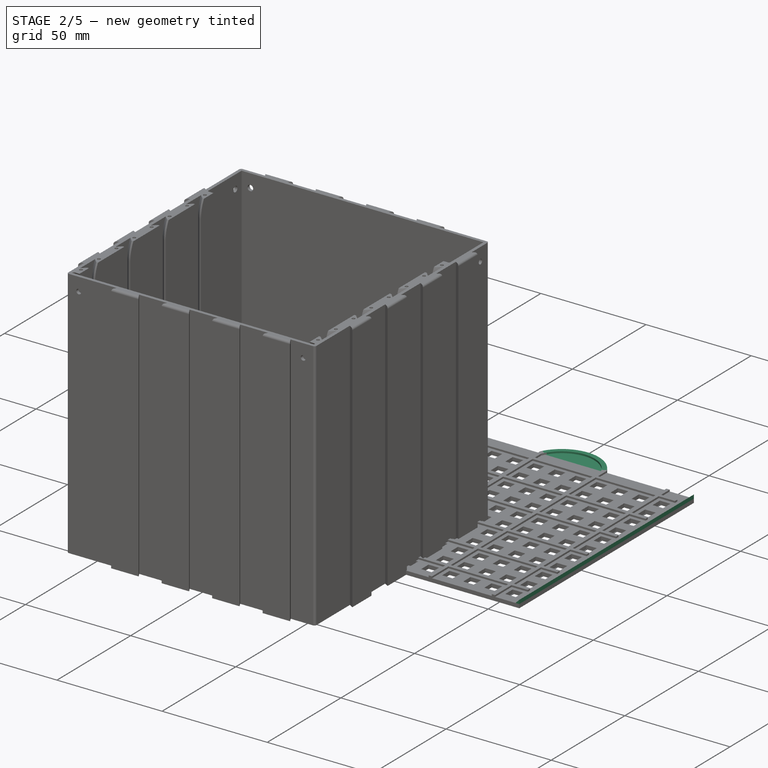
[diagram: stage 2 of 5 — iso view after this stage's code; geometry added in this stage tinted green]
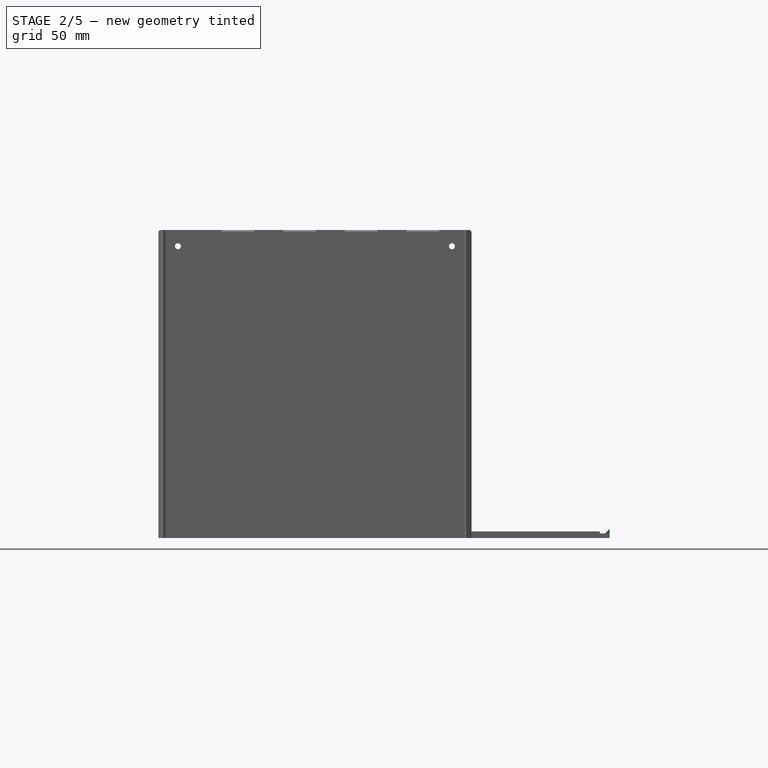
[diagram: stage 2 of 5 — front view after this stage's code; geometry added in this stage tinted green]
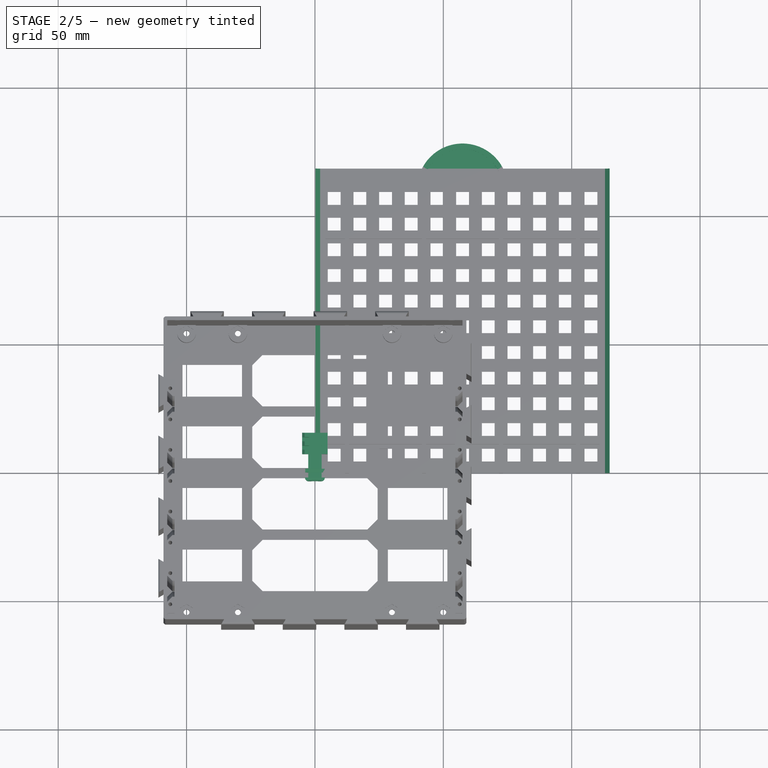
[diagram: stage 2 of 5 — top view after this stage's code; geometry added in this stage tinted green]
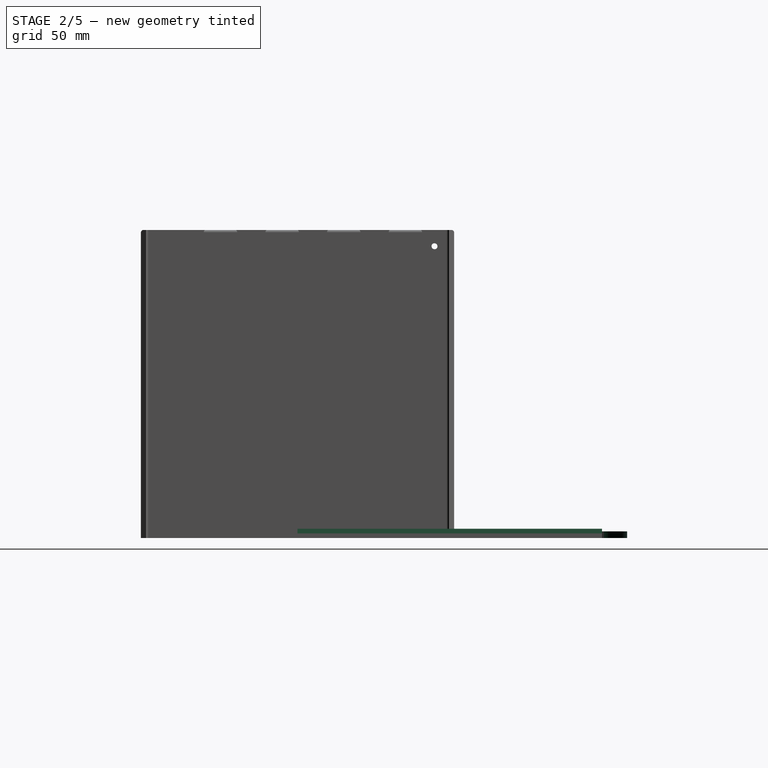
[diagram: stage 2 of 5 — right view after this stage's code; geometry added in this stage tinted green]
FEATURE [PartDesign::AdditiveWedge] Wedge  label="Wedge_left_connector"
  AttacherType = Attacher::AttachEngine3D
  AttachmentOffset = pos=(0.2,118.6,1.8) rot=(1,0,0;1.5708rad)
  BaseFeature = -> LinearPattern003
  MapMode = 5
  Placement = pos=(0.2,118.6,1.8) rot=(1,0,0;1.5708rad)
  Support = -> [XY_Plane]
  X2max = 0
  X2min = 0
  Xmax = 1.8
  Xmin = 0
  Ymax = 1.8
  Ymin = 0
  Z2max = 118.6
  Z2min = 0
  Zmax = 118.6
  Zmin = 0
  expr: .AttachmentOffset.Base.x = Spreadsheet.bc_board_side_tol
  expr: .AttachmentOffset.Base.y = Spreadsheet.bh_base_y
  expr: .AttachmentOffset.Base.z = Spreadsheet.bh_base_z
  expr: Xmax = Spreadsheet.bh_angle_connector_xz - Spreadsheet.bc_board_side_tol
  expr: Ymax = Spreadsheet.bh_angle_connector_xz - Spreadsheet.bc_board_side_tol
  expr: Z2max = Spreadsheet.bh_base_y
  expr: Zmax = Spreadsheet.bh_base_y
FEATURE [PartDesign::Plane] DatumPlane002  label="DatumPlane_center_x"
  AttachmentOffset = pos=(0,0,57.5) rot=(0,0,1;0rad)
  Length = 170.879
  MapMode = 5
  Placement = pos=(57.5,-1.28e-14,1.28e-14) rot=(0.57735,0.57735,0.57735;2.0944rad)
  ResizeMode = 0
  Support = -> [YZ_Plane]
  Width = 67.5137
  expr: .AttachmentOffset.Base.z = Spreadsheet.bh_base_x / 2
FEATURE [PartDesign::Mirrored] Mirrored  label="Mirrored_right_connector"
  BaseFeature = -> Wedge
  MirrorPlane = -> DatumPlane002
  Originals = -> [Wedge]
  Placement = pos=(0.2,118.6,1.8) rot=(1,0,0;1.5708rad)
FEATURE [Sketcher::SketchObject] Sketch005  label="Sketch_label"
  FullyConstrained = true
  MapMode = 5
  Support = -> [XY_Plane]
  expr: Constraints[12] = (Spreadsheet.bh_grid * 6 + Spreadsheet.bh_stability_bar_width) / 4
  expr: Constraints[5] = Spreadsheet.bh_grid * 6 + Spreadsheet.bh_stability_bar_width
  expr: Constraints[6] = Spreadsheet.bh_base_y
  expr: Constraints[7] = Spreadsheet.bh_stability_bar_width
  expr: Constraints[8] = Spreadsheet.bh_grid * 8.5 - Spreadsheet.bh_stability_bar_width / 2
  sketch-geometry (4):
    g0: LineSegment StartX=73.3 StartY=118.6 StartZ=0 EndX=73.3 EndY=117 EndZ=0
    g1: LineSegment StartX=73.3 StartY=117 StartZ=0 EndX=41.7 EndY=117 EndZ=0
    g2: LineSegment StartX=41.7 StartY=117 StartZ=0 EndX=41.7 EndY=118.6 EndZ=0
    g3: ArcOfCircle CenterX=57.5 CenterY=110.7 CenterZ=0 NormalX=0 NormalY=0 NormalZ=1 AngleXU=0 Radius=17.6649 StartAngle=0.463648 EndAngle=2.67795
  constraints (13):
    c: Coincident(g0,g1)
    c: Coincident(g1,g2)
    c: Horizontal(g1)
    c: Vertical(g0)
    c: Vertical(g2)
    c: DistanceX(g2,g0) = 31.6
    c: DistanceY(g-1,g2) = 118.6
    c: DistanceY(g0,g0) = 1.6
    c: DistanceX(g-1,g2) = 41.7
    c: Coincident(g3,g2)
    c: Coincident(g3,g0)
    c: Equal(g0,g2)
    c: DistanceY(g3,g2) = 7.9
FEATURE [PartDesign::Pad] Pad003  label="Pad_label"
  BaseFeature = -> Mirrored
  Direction = (0,0,1)
  Length = 1.8
  Length2 = 10
  Placement = pos=(0.2,118.6,1.8) rot=(1,0,0;1.5708rad)
  Profile = -> Sketch005
  ReferenceAxis = -> Sketch005 [N_Axis]
  Type = 0
  expr: Length = Spreadsheet.bh_base_z
FEATURE [Sketcher::SketchObject] Sketch034  label="Sketch_bc_c_base_clip_left"
  FullyConstrained = true
  MapMode = 5
  Support = -> [XY_Plane008]
  expr: Constraints[11] = Spreadsheet.bc_clip_height_from_board
  expr: Constraints[13] = Spreadsheet.bc_s_total_x / 2
  expr: Constraints[14] = Spreadsheet.bc_clip_thickness
  expr: Constraints[15] = Spreadsheet.bc_clip_overhang
  expr: Constraints[18] = Spreadsheet.bc_total_clip_length
  expr: Constraints[19] = Spreadsheet.bc_top_of_bh_to_bottom_of_pcb
  expr: Constraints[20] = Spreadsheet.bc_s_total_x / 2
  expr: Constraints[27] = Spreadsheet.bc_holder_thickness
  sketch-geometry (9):
    g0: LineSegment StartX=-1.35 StartY=-1.8 StartZ=0 EndX=-1.35 EndY=6 EndZ=0
    g1: LineSegment StartX=-1.35 StartY=-1.8 StartZ=0 EndX=-1.35 EndY=-3.2 EndZ=0
    g2: LineSegment StartX=-1.35 StartY=-3.2 StartZ=0 EndX=-2.45 EndY=-3.2 EndZ=0
    g3: ArcOfCircle CenterX=-2.45 CenterY=-1.8 CenterZ=0 NormalX=0 NormalY=0 NormalZ=1 AngleXU=0 Radius=1.4 StartAngle=3.14159 EndAngle=4.71239
    g4: LineSegment StartX=-3.85 StartY=-1.8 StartZ=0 EndX=-2.6 EndY=-1.8 EndZ=0
    g5: LineSegment StartX=-2.6 StartY=-1.8 StartZ=0 EndX=-2.6 EndY=9 EndZ=0
    g6: ArcOfCircle CenterX=5e-16 CenterY=6 CenterZ=0 NormalX=0 NormalY=0 NormalZ=1 AngleXU=0 Radius=1.35 StartAngle=1.5708 EndAngle=3.14159
    g7: LineSegment StartX=-2.6 StartY=9 StartZ=0 EndX=0 EndY=9 EndZ=0
    g8: LineSegment StartX=0 StartY=9 StartZ=0 EndX=5e-16 EndY=7.35 EndZ=0
  constraints (28):
    c: Coincident(g1,g0)
    c: Vertical(g1)
    c: Horizontal(g2)
    c: Coincident(g3,g2)
    c: Horizontal(g3,g3)
    c: Vertical(g3,g2)
    c: Horizontal(g3,g0)
    c: Coincident(g4,g3)
    c: Horizontal(g4)
    c: Coincident(g5,g4)
    c: Vertical(g5)
    c: DistanceY(g1,g1) = 1.4
    c: Coincident(g1,g2)
    c: DistanceX(g4,g-1) = 2.6
    c: DistanceX(g4,g1) = 1.25
    c: DistanceX(g3,g4) = 1.25
    c: Vertical(g0)
    c: Tangent(g6,g0) = 1.5708
    c: DistanceY(g1,g6) = 10.55
    c: DistanceY(g-1,g5) = 9
    c: DistanceX(g5,g6) = 2.6
    c: Vertical(g6,g6)
    c: Coincident(g7,g5)
    c: PointOnObject(g7,g-2)
    c: Horizontal(g7)
    c: Coincident(g8,g7)
    c: Coincident(g8,g6)
    c: DistanceY(g8,g8) = 1.65
FEATURE [PartDesign::Pad] Pad017  label="Pad_bc_c_base_clip_left"
  Direction = (0,0,1)
  Length = 5
  Length2 = 10
  Profile = -> Sketch034
  ReferenceAxis = -> Sketch034 [N_Axis]
  Type = 0
  expr: Length = Spreadsheet.bh_grid
FEATURE [Sketcher::SketchObject] Sketch037  label="Sketch_bc_c_blocker"
  FullyConstrained = true
  MapMode = 5
  Support = -> [XY_Plane008]
  expr: Constraints[10] = Spreadsheet.bc_clip_thickness
  expr: Constraints[13] = Spreadsheet.bc_s_total_x / 2
  expr: Constraints[14] = Spreadsheet.bc_top_blocker_thickness
  expr: Constraints[15] = Spreadsheet.bc_bottom_blocker_thickness
  expr: Constraints[16] = Spreadsheet.bc_clip_height_from_board
  expr: Constraints[17] = Spreadsheet.bc_blocker_tol_y
  sketch-geometry (6):
    g0: LineSegment StartX=-1.35 StartY=0.2 StartZ=0 EndX=-1.35 EndY=1.6 EndZ=0
    g1: LineSegment StartX=-3.85 StartY=1.6 StartZ=0 EndX=-3 EndY=0.2 EndZ=0
    g2: LineSegment StartX=-3.85 StartY=1.6 StartZ=0 EndX=-2.6 EndY=1.6 EndZ=0
    g3: LineSegment StartX=-2.6 StartY=1.6 StartZ=0 EndX=-1.35 EndY=1.6 EndZ=0
    g4: LineSegment StartX=-3 StartY=0.2 StartZ=0 EndX=-2.6 EndY=0.2 EndZ=0
    g5: LineSegment StartX=-2.6 StartY=0.2 StartZ=0 EndX=-1.35 EndY=0.2 EndZ=0
  constraints (18):
    c: Vertical(g0)
    c: Coincident(g2,g1)
    c: Horizontal(g2)
    c: Coincident(g3,g0)
    c: Horizontal(g3)
    c: Coincident(g4,g1)
    c: Horizontal(g4)
    c: Coincident(g5,g4)
    c: Coincident(g5,g0)
    c: Horizontal(g5)
    c: DistanceX(g5,g5) = 1.25
    c: Coincident(g3,g2)
    c: Equal(g3,g5)
    c: DistanceX(g4,g-1) = 2.6
    c: DistanceX(g2,g2) = 1.25
    c: DistanceX(g4,g4) = 0.4
    c: DistanceY(g1,g1) = 1.4
    c: DistanceY(g-1,g1) = 0.2
FEATURE [PartDesign::Pad] Pad020  label="Pad_bc_c_blocker"
  BaseFeature = -> Pad017
  Direction = (0,0,1)
  Length = 6.25
  Length2 = 10
  Profile = -> Sketch037
  ReferenceAxis = -> Sketch037 [N_Axis]
  Type = 0
  expr: Length = Spreadsheet.bh_grid + Spreadsheet.bc_top_blocker_thickness
FEATURE [PartDesign::Body] Body008  label="_bc_c"
  Group = -> [Sketch034,Pad017,Pad020,Sketch037]
  Origin = -> Origin008
  Tip = -> Pad020
FEATURE [Part::Mirroring] Mirror001  label="_bc_s(mirrored)"
  Base = (0,0,0)
  Normal = (-0.999988,0,0)
  Source = -> Body008
FEATURE [Part::MultiFuse] Fusion001  label="_bc_s"
  Shapes = -> [Body008,Mirror001]
FEATURE [PartDesign::Body] Body035  label="bc_d_4_4"
  Group = -> [Clone026,Sketch097,Sketch096,Sketch095,Sketch094,Pad066,Pad067,Pad068,Pad069,LinearPattern022,Chamfer012]
  Origin = -> Origin036
  Placement = pos=(-5,0,0) rot=(0,0,1;0rad)
  Tip = -> Chamfer012
  expr: .Placement.Base.x = -Spreadsheet.bc_grid * 2
FEATURE [PartDesign::FeatureBase] Clone029
  BaseFeature = -> Fusion001
FEATURE [PartDesign::FeatureBase] Clone031
  BaseFeature = -> Fusion001
FEATURE [Sketcher::SketchObject] Sketch106  label="Sketch_bc_s_pcb004"
  FullyConstrained = true
  MapMode = 5
  Support = -> [XY_Plane042]
  expr: Constraints[10] = Spreadsheet.bc_grid * 3
  expr: Constraints[11] = Spreadsheet.bc_s_total_x / 2
  expr: Constraints[8] = Spreadsheet.bc_pcb_thickness
  expr: Constraints[9] = Spreadsheet.bc_top_of_bh_to_bottom_of_pcb
  sketch-geometry (4):
    g0: LineSegment StartX=4.9 StartY=10.65 StartZ=0 EndX=4.9 EndY=9 EndZ=0
    g1: LineSegment StartX=4.9 StartY=9 StartZ=0 EndX=-2.6 EndY=9 EndZ=0
    g2: LineSegment StartX=-2.6 StartY=9 StartZ=0 EndX=-2.6 EndY=10.65 EndZ=0
    g3: LineSegment StartX=-2.6 StartY=10.65 StartZ=0 EndX=4.9 EndY=10.65 EndZ=0
  constraints (12):
    c: Coincident(g0,g1)
    c: Coincident(g1,g2)
    c: Coincident(g2,g3)
    c: Coincident(g3,g0)
    c: Horizontal(g1)
    c: Horizontal(g3)
    c: Vertical(g0)
    c: Vertical(g2)
    c: DistanceY(g0,g0) = 1.65
    c: DistanceY(g-1,g0) = 9
    c: DistanceX(g3,g3) = 7.5
    c: DistanceX(g2,g-1) = 2.6
FEATURE [Sketcher::SketchObject] Sketch107  label="Sketch_bc_s_corner004"
  FullyConstrained = true
  MapMode = 5
  Support = -> [XY_Plane042]
  expr: Constraints[10] = Spreadsheet.bc_grid * 3 - Spreadsheet.bc_s_total_x / 2
  expr: Constraints[11] = Spreadsheet.bc_top_of_bh_to_bottom_of_pcb
  expr: Constraints[8] = Spreadsheet.bc_grid * 1 - Spreadsheet.bc_tol_inner_slots
  expr: Constraints[9] = Spreadsheet.bc_pcb_thickness
  sketch-geometry (4):
    g0: LineSegment StartX=2.8 StartY=10.65 StartZ=0 EndX=4.9 EndY=10.65 EndZ=0
    g1: LineSegment StartX=4.9 StartY=10.65 StartZ=0 EndX=4.9 EndY=9 EndZ=0
    g2: LineSegment StartX=4.9 StartY=9 StartZ=0 EndX=2.8 EndY=9 EndZ=0
    g3: LineSegment StartX=2.8 StartY=9 StartZ=0 EndX=2.8 EndY=10.65 EndZ=0
  constraints (12):
    c: Coincident(g0,g1)
    c: Coincident(g1,g2)
    c: Coincident(g2,g3)
    c: Coincident(g3,g0)
    c: Horizontal(g0)
    c: Horizontal(g2)
    c: Vertical(g1)
    c: Vertical(g3)
    c: DistanceX(g0,g0) = 2.1
    c: DistanceY(g1,g1) = 1.65
    c: DistanceX(g-1,g0) = 4.9
    c: DistanceY(g-1,g1) = 9
FEATURE [Sketcher::SketchObject] Sketch108  label="Sketch_bc_s_top004"
  FullyConstrained = true
  MapMode = 5
  Support = -> [XY_Plane042]
  expr: Constraints[10] = Spreadsheet.bc_top_of_bh_to_bottom_of_pcb + Spreadsheet.bc_pcb_thickness
  expr: Constraints[11] = Spreadsheet.bc_s_total_x / 2
  expr: Constraints[8] = Spreadsheet.bc_grid * 3
  expr: Constraints[9] = Spreadsheet.bc_holder_thickness
  sketch-geometry (4):
    g0: LineSegment StartX=-2.6 StartY=12.3 StartZ=0 EndX=4.9 EndY=12.3 EndZ=0
    g1: LineSegment StartX=4.9 StartY=12.3 StartZ=0 EndX=4.9 EndY=10.65 EndZ=0
    g2: LineSegment StartX=4.9 StartY=10.65 StartZ=0 EndX=-2.6 EndY=10.65 EndZ=0
    g3: LineSegment StartX=-2.6 StartY=10.65 StartZ=0 EndX=-2.6 EndY=12.3 EndZ=0
  constraints (12):
    c: Coincident(g0,g1)
    c: Coincident(g1,g2)
    c: Coincident(g2,g3)
    c: Coincident(g3,g0)
    c: Horizontal(g0)
    c: Horizontal(g2)
    c: Vertical(g1)
    c: Vertical(g3)
    c: DistanceX(g0,g0) = 7.5
    c: DistanceY(g1,g1) = 1.65
    c: DistanceY(g-1,g1) = 10.65
    c: DistanceX(g0,g-1) = 2.6
FEATURE [Sketcher::SketchObject] Sketch109  label="Sketch_bc_s_holder004"
  FullyConstrained = true
  MapMode = 5
  Support = -> [XY_Plane042]
  expr: Constraints[10] = Spreadsheet.bc_grid * 3
  expr: Constraints[11] = Spreadsheet.bc_top_of_bh_to_bottom_of_pcb
  expr: Constraints[12] = Spreadsheet.bc_s_total_x / 2
  expr: Constraints[9] = Spreadsheet.bc_holder_thickness
  sketch-geometry (5):
    g0: LineSegment StartX=-2.6 StartY=9 StartZ=0 EndX=-2.6 EndY=7.35 EndZ=0
    g1: LineSegment StartX=-2.6 StartY=7.35 StartZ=0 EndX=4.9 EndY=7.35 EndZ=0
    g2: LineSegment StartX=4.9 StartY=7.35 StartZ=0 EndX=4.9 EndY=9 EndZ=0
    g3: LineSegment StartX=4.9 StartY=9 StartZ=0 EndX=-2.6 EndY=9 EndZ=0
    g4: GeomPoint X=1.15 Y=8.175 Z=0
  constraints (13):
    c: Coincident(g0,g1)
    c: Coincident(g1,g2)
    c: Coincident(g2,g3)
    c: Coincident(g3,g0)
    c: Horizontal(g1)
    c: Horizontal(g3)
    c: Vertical(g0)
    c: Vertical(g2)
    c: Symmetric(g1,g0,g4)
    c: DistanceY(g2,g2) = 1.65
    c: DistanceX(g3,g3) = 7.5
    c: DistanceY(g-1,g2) = 9
    c: DistanceX(g0,g-1) = 2.6
FEATURE [PartDesign::Pad] Pad078  label="Pad_bc_s_holder004"
  BaseFeature = -> Clone031
  Direction = (0,0,1)
  Length = 7.5
  Length2 = 10
  Profile = -> Sketch109
  ReferenceAxis = -> Sketch109 [N_Axis]
  Type = 0
  expr: Length = Spreadsheet.bc_grid * 3
FEATURE [PartDesign::Pad] Pad079  label="Pad_bc_s_corner004"
  BaseFeature = -> Pad078
  Direction = (0,0,1)
  Length = 7.5
  Length2 = 10
  Profile = -> Sketch107
  ReferenceAxis = -> Sketch107 [N_Axis]
  Type = 0
  expr: Length = Spreadsheet.bc_grid * 3
FEATURE [PartDesign::Pad] Pad080  label="Pad_bc_s_pcb004"
  BaseFeature = -> Pad079
  Direction = (0,0,1)
  Length = 4.6
  Length2 = 10
  Profile = -> Sketch106
  ReferenceAxis = -> Sketch106 [N_Axis]
  Type = 0
  expr: Length = Spreadsheet.bc_grid * 2 - Spreadsheet.bc_tol_inner_slots
FEATURE [PartDesign::Pad] Pad081  label="Pad_bc_s_top004"
  BaseFeature = -> Pad080
  Direction = (0,0,1)
  Length = 7.5
  Length2 = 10
  Profile = -> Sketch108
  ReferenceAxis = -> Sketch108 [N_Axis]
  Type = 0
  expr: Length = Spreadsheet.bc_grid * 3
FEATURE [PartDesign::LinearPattern] LinearPattern025
  BaseFeature = -> Pad081
  Direction = -> Sketch108 [V_Axis]
  Length = 3.3
  Occurrences = 2
  Originals = -> [Pad081,Pad080,Pad079]
  expr: Length = Spreadsheet.bc_total_y_from_bottom_of_pcb
  expr: Occurrences = Spreadsheet.bc_slots
FEATURE [PartDesign::Chamfer] Chamfer015
  Angle = 45
  Base = -> LinearPattern025 [Edge25,Edge39,Edge74]
  BaseFeature = -> LinearPattern025
  ChamferType = 0
  FlipDirection = false
  Size = 1
  Size2 = 1
  SupportTransform = false
  UseAllEdges = false
FEATURE [PartDesign::Body] Body040  label="_bc_0_2"
  Group = -> [Clone031,Sketch106,Sketch107,Sketch108,Sketch109,Pad078,Pad079,Pad080,Pad081,LinearPattern025,Chamfer015]
  Origin = -> Origin042
  Tip = -> Chamfer015
FEATURE [PartDesign::FeatureBase] Clone032
  BaseFeature = -> Body040
FEATURE [PartDesign::Body] Body041  label="bc_s_0_2"
  Group = -> [Clone032]
  Origin = -> Origin043
  Tip = -> Clone032
FEATURE [Part::Mirroring] Mirror013  label="bc_2_0"
  Base = (0,0,0)
  Normal = (0.001,0,0)
  Placement = pos=(2.5,0,5) rot=(0,-1,0;1.5708rad)
  Source = -> Body040
  expr: .Placement.Base.x = Spreadsheet.bc_grid
  expr: .Placement.Base.z = Spreadsheet.bc_grid * 2
FEATURE [PartDesign::FeatureBase] Clone033
  BaseFeature = -> Fusion001
FEATURE [Sketcher::SketchObject] Sketch111  label="Sketch_bc_s_top005"
  FullyConstrained = true
  MapMode = 5
  Support = -> [XY_Plane044]
  expr: Constraints[10] = Spreadsheet.bc_top_of_bh_to_bottom_of_pcb + Spreadsheet.bc_pcb_thickness
  expr: Constraints[11] = Spreadsheet.bc_s_total_x / 2
  expr: Constraints[8] = Spreadsheet.bc_grid * 3
  expr: Constraints[9] = Spreadsheet.bc_holder_thickness
  sketch-geometry (4):
    g0: LineSegment StartX=-2.6 StartY=12.3 StartZ=0 EndX=4.9 EndY=12.3 EndZ=0
    g1: LineSegment StartX=4.9 StartY=12.3 StartZ=0 EndX=4.9 EndY=10.65 EndZ=0
    g2: LineSegment StartX=4.9 StartY=10.65 StartZ=0 EndX=-2.6 EndY=10.65 EndZ=0
    g3: LineSegment StartX=-2.6 StartY=10.65 StartZ=0 EndX=-2.6 EndY=12.3 EndZ=0
  constraints (12):
    c: Coincident(g0,g1)
    c: Coincident(g1,g2)
    c: Coincident(g2,g3)
    c: Coincident(g3,g0)
    c: Horizontal(g0)
    c: Horizontal(g2)
    c: Vertical(g1)
    c: Vertical(g3)
    c: DistanceX(g0,g0) = 7.5
    c: DistanceY(g1,g1) = 1.65
    c: DistanceY(g-1,g1) = 10.65
    c: DistanceX(g0,g-1) = 2.6
FEATURE [Sketcher::SketchObject] Sketch112  label="Sketch_bc_s_holder005"
  FullyConstrained = true
  MapMode = 5
  Support = -> [XY_Plane044]
  expr: Constraints[10] = Spreadsheet.bc_grid * 3
  expr: Constraints[11] = Spreadsheet.bc_top_of_bh_to_bottom_of_pcb
  expr: Constraints[12] = Spreadsheet.bc_s_total_x / 2
  expr: Constraints[9] = Spreadsheet.bc_holder_thickness
  sketch-geometry (5):
    g0: LineSegment StartX=-2.6 StartY=9 StartZ=0 EndX=-2.6 EndY=7.35 EndZ=0
    g1: LineSegment StartX=-2.6 StartY=7.35 StartZ=0 EndX=4.9 EndY=7.35 EndZ=0
    g2: LineSegment StartX=4.9 StartY=7.35 StartZ=0 EndX=4.9 EndY=9 EndZ=0
    g3: LineSegment StartX=4.9 StartY=9 StartZ=0 EndX=-2.6 EndY=9 EndZ=0
    g4: GeomPoint X=1.15 Y=8.175 Z=0
  constraints (13):
    c: Coincident(g0,g1)
    c: Coincident(g1,g2)
    c: Coincident(g2,g3)
    c: Coincident(g3,g0)
    c: Horizontal(g1)
    c: Horizontal(g3)
    c: Vertical(g0)
    c: Vertical(g2)
    c: Symmetric(g1,g0,g4)
    c: DistanceY(g2,g2) = 1.65
    c: DistanceX(g3,g3) = 7.5
    c: DistanceY(g-1,g2) = 9
    c: DistanceX(g0,g-1) = 2.6
FEATURE [Sketcher::SketchObject] Sketch113  label="Sketch_bc_s_corner005"
  FullyConstrained = true
  MapMode = 5
  Support = -> [XY_Plane044]
  expr: Constraints[10] = Spreadsheet.bc_grid * 3 - Spreadsheet.bc_s_total_x / 2
  expr: Constraints[11] = Spreadsheet.bc_top_of_bh_to_bottom_of_pcb
  expr: Constraints[8] = Spreadsheet.bc_grid * 1 - Spreadsheet.bc_tol_inner_slots
  expr: Constraints[9] = Spreadsheet.bc_pcb_thickness
  sketch-geometry (4):
    g0: LineSegment StartX=2.8 StartY=10.65 StartZ=0 EndX=4.9 EndY=10.65 EndZ=0
    g1: LineSegment StartX=4.9 StartY=10.65 StartZ=0 EndX=4.9 EndY=9 EndZ=0
    g2: LineSegment StartX=4.9 StartY=9 StartZ=0 EndX=2.8 EndY=9 EndZ=0
    g3: LineSegment StartX=2.8 StartY=9 StartZ=0 EndX=2.8 EndY=10.65 EndZ=0
  constraints (12):
    c: Coincident(g0,g1)
    c: Coincident(g1,g2)
    c: Coincident(g2,g3)
    c: Coincident(g3,g0)
    c: Horizontal(g0)
    c: Horizontal(g2)
    c: Vertical(g1)
    c: Vertical(g3)
    c: DistanceX(g0,g0) = 2.1
    c: DistanceY(g1,g1) = 1.65
    c: DistanceX(g-1,g0) = 4.9
    c: DistanceY(g-1,g1) = 9
FEATURE [PartDesign::Pad] Pad082
  BaseFeature = -> Clone033
  Direction = (0,0,1)
  Length = 5
  Length2 = 10
  Profile = -> Sketch112
  ReferenceAxis = -> Sketch112 [N_Axis]
  Type = 0
  expr: Length = Spreadsheet.bc_grid * 2
FEATURE [PartDesign::Pad] Pad083
  BaseFeature = -> Pad082
  Direction = (0,0,1)
  Length = 5
  Length2 = 10
  Profile = -> Sketch113
  ReferenceAxis = -> Sketch113 [N_Axis]
  Type = 0
  expr: Length = Spreadsheet.bc_grid * 2
FEATURE [PartDesign::Pad] Pad084
  BaseFeature = -> Pad083
  Direction = (0,0,1)
  Length = 5
  Length2 = 10
  Profile = -> Sketch111
  ReferenceAxis = -> Sketch111 [N_Axis]
  Type = 0
  expr: Length = Spreadsheet.bc_grid * 2
FEATURE [PartDesign::LinearPattern] LinearPattern026
  BaseFeature = -> Pad084
  Direction = -> Sketch113 [V_Axis]
  Length = 3.3
  Occurrences = 2
  Originals = -> [Pad083,Pad082,Pad084]
  expr: Length = Spreadsheet.bc_total_y_from_bottom_of_pcb
  expr: Occurrences = Spreadsheet.bc_slots
FEATURE [PartDesign::Body] Body042  label="bc_s_0"
  Group = -> [Clone033,Sketch112,Sketch111,Sketch113,Pad082,Pad083,Pad084,LinearPattern026]
  Origin = -> Origin044
  Tip = -> LinearPattern026
FEATURE [PartDesign::FeatureBase] Clone034
  BaseFeature = -> Fusion001
FEATURE [PartDesign::FeatureBase] Clone035
  BaseFeature = -> Fusion001
FEATURE [Sketcher::SketchObject] Sketch114  label="Sketch_bc_s_pcb008"
  FullyConstrained = true
  MapMode = 5
  Support = -> [XY_Plane045]
  expr: Constraints[10] = Spreadsheet.bc_pcb_thickness
  expr: Constraints[11] = Spreadsheet.bc_s_total_x
  expr: Constraints[12] = Spreadsheet.bc_top_of_bh_to_bottom_of_pcb
  sketch-geometry (5):
    g0: LineSegment StartX=2.6 StartY=10.65 StartZ=0 EndX=2.6 EndY=9 EndZ=0
    g1: LineSegment StartX=2.6 StartY=9 StartZ=0 EndX=-2.6 EndY=9 EndZ=0
    g2: LineSegment StartX=-2.6 StartY=9 StartZ=0 EndX=-2.6 EndY=10.65 EndZ=0
    g3: LineSegment StartX=-2.6 StartY=10.65 StartZ=0 EndX=2.6 EndY=10.65 EndZ=0
    g4: GeomPoint X=0 Y=9.825 Z=0
  constraints (13):
    c: Coincident(g0,g1)
    c: Coincident(g1,g2)
    c: Coincident(g2,g3)
    c: Coincident(g3,g0)
    c: Horizontal(g1)
    c: Horizontal(g3)
    c: Vertical(g0)
    c: Vertical(g2)
    c: Symmetric(g1,g0,g4)
    c: PointOnObject(g4,g-2)
    c: DistanceY(g0,g0) = 1.65
    c: DistanceX(g3,g3) = 5.2
    c: DistanceY(g-1,g0) = 9
FEATURE [Sketcher::SketchObject] Sketch115  label="Sketch_bc_s_top008"
  FullyConstrained = true
  MapMode = 5
  Support = -> [XY_Plane045]
  expr: Constraints[12] = Spreadsheet.bc_top_of_bh_to_bottom_of_pcb + Spreadsheet.bc_pcb_thickness
  expr: Constraints[8] = Spreadsheet.bc_s_total_x
  expr: Constraints[9] = Spreadsheet.bc_holder_thickness
  sketch-geometry (5):
    g0: LineSegment StartX=-2.6 StartY=12.3 StartZ=0 EndX=2.6 EndY=12.3 EndZ=0
    g1: LineSegment StartX=2.6 StartY=12.3 StartZ=0 EndX=2.6 EndY=10.65 EndZ=0
    g2: LineSegment StartX=2.6 StartY=10.65 StartZ=0 EndX=-2.6 EndY=10.65 EndZ=0
    g3: LineSegment StartX=-2.6 StartY=10.65 StartZ=0 EndX=-2.6 EndY=12.3 EndZ=0
    g4: GeomPoint X=0 Y=12.3 Z=0
  constraints (13):
    c: Coincident(g0,g1)
    c: Coincident(g1,g2)
    c: Coincident(g2,g3)
    c: Coincident(g3,g0)
    c: Horizontal(g0)
    c: Horizontal(g2)
    c: Vertical(g1)
    c: Vertical(g3)
    c: DistanceX(g0,g0) = 5.2
    c: DistanceY(g1,g1) = 1.65
    c: Symmetric(g0,g0,g4)
    c: PointOnObject(g4,g-2)
    c: DistanceY(g-1,g1) = 10.65
FEATURE [Sketcher::SketchObject] Sketch116  label="Sketch_bc_s_pcb006"
  FullyConstrained = true
  MapMode = 5
  Support = -> [XY_Plane046]
  expr: Constraints[10] = Spreadsheet.bc_pcb_thickness
  expr: Constraints[11] = Spreadsheet.bc_s_total_x
  expr: Constraints[12] = Spreadsheet.bc_top_of_bh_to_bottom_of_pcb
  sketch-geometry (5):
    g0: LineSegment StartX=2.6 StartY=10.65 StartZ=0 EndX=2.6 EndY=9 EndZ=0
    g1: LineSegment StartX=2.6 StartY=9 StartZ=0 EndX=-2.6 EndY=9 EndZ=0
    g2: LineSegment StartX=-2.6 StartY=9 StartZ=0 EndX=-2.6 EndY=10.65 EndZ=0
    g3: LineSegment StartX=-2.6 StartY=10.65 StartZ=0 EndX=2.6 EndY=10.65 EndZ=0
    g4: GeomPoint X=0 Y=9.825 Z=0
  constraints (13):
    c: Coincident(g0,g1)
    c: Coincident(g1,g2)
    c: Coincident(g2,g3)
    c: Coincident(g3,g0)
    c: Horizontal(g1)
    c: Horizontal(g3)
    c: Vertical(g0)
    c: Vertical(g2)
    c: Symmetric(g1,g0,g4)
    c: PointOnObject(g4,g-2)
    c: DistanceY(g0,g0) = 1.65
    c: DistanceX(g3,g3) = 5.2
    c: DistanceY(g-1,g0) = 9
FEATURE [Sketcher::SketchObject] Sketch117  label="Sketch_bc_s_top006"
  FullyConstrained = true
  MapMode = 5
  Support = -> [XY_Plane046]
  expr: Constraints[12] = Spreadsheet.bc_top_of_bh_to_bottom_of_pcb + Spreadsheet.bc_pcb_thickness
  expr: Constraints[8] = Spreadsheet.bc_s_total_x
  expr: Constraints[9] = Spreadsheet.bc_holder_thickness
  sketch-geometry (5):
    g0: LineSegment StartX=-2.6 StartY=12.3 StartZ=0 EndX=2.6 EndY=12.3 EndZ=0
    g1: LineSegment StartX=2.6 StartY=12.3 StartZ=0 EndX=2.6 EndY=10.65 EndZ=0
    g2: LineSegment StartX=2.6 StartY=10.65 StartZ=0 EndX=-2.6 EndY=10.65 EndZ=0
    g3: LineSegment StartX=-2.6 StartY=10.65 StartZ=0 EndX=-2.6 EndY=12.3 EndZ=0
    g4: GeomPoint X=0 Y=12.3 Z=0
  constraints (13):
    c: Coincident(g0,g1)
    c: Coincident(g1,g2)
    c: Coincident(g2,g3)
    c: Coincident(g3,g0)
    c: Horizontal(g0)
    c: Horizontal(g2)
    c: Vertical(g1)
    c: Vertical(g3)
    c: DistanceX(g0,g0) = 5.2
    c: DistanceY(g1,g1) = 1.65
    c: Symmetric(g0,g0,g4)
    c: PointOnObject(g4,g-2)
    c: DistanceY(g-1,g1) = 10.65
FEATURE [Sketcher::SketchObject] Sketch118  label="Sketch_bc_s_holder006"
  FullyConstrained = true
  MapMode = 5
  Support = -> [XY_Plane046]
  expr: Constraints[10] = Spreadsheet.bc_s_total_x
  expr: Constraints[12] = Spreadsheet.bc_top_of_bh_to_bottom_of_pcb
  expr: Constraints[9] = Spreadsheet.bc_holder_thickness
  sketch-geometry (5):
    g0: LineSegment StartX=-2.6 StartY=9 StartZ=0 EndX=-2.6 EndY=7.35 EndZ=0
    g1: LineSegment StartX=-2.6 StartY=7.35 StartZ=0 EndX=2.6 EndY=7.35 EndZ=0
    g2: LineSegment StartX=2.6 StartY=7.35 StartZ=0 EndX=2.6 EndY=9 EndZ=0
    g3: LineSegment StartX=2.6 StartY=9 StartZ=0 EndX=-2.6 EndY=9 EndZ=0
    g4: GeomPoint X=0 Y=8.175 Z=0
  constraints (13):
    c: Coincident(g0,g1)
    c: Coincident(g1,g2)
    c: Coincident(g2,g3)
    c: Coincident(g3,g0)
    c: Horizontal(g1)
    c: Horizontal(g3)
    c: Vertical(g0)
    c: Vertical(g2)
    c: Symmetric(g1,g0,g4)
    c: DistanceY(g2,g2) = 1.65
    c: DistanceX(g3,g3) = 5.2
    c: PointOnObject(g4,g-2)
    c: DistanceY(g-1,g2) = 9
FEATURE [PartDesign::Pad] Pad085
  BaseFeature = -> Clone034
  Direction = (0,0,1)
  Length = 2.5
  Length2 = 10
  Profile = -> Sketch114
  ReferenceAxis = -> Sketch114 [N_Axis]
  Type = 0
  expr: Length = Spreadsheet.bc_grid
FEATURE [PartDesign::Pad] Pad086
  BaseFeature = -> Pad085
  Direction = (0,0,1)
  Length = 5
  Length2 = 10
  Profile = -> Sketch115
  ReferenceAxis = -> Sketch115 [N_Axis]
  Type = 0
  expr: Length = Spreadsheet.bc_grid * 2
FEATURE [PartDesign::LinearPattern] LinearPattern027
  BaseFeature = -> Pad086
  Direction = -> Sketch114 [V_Axis]
  Length = 3.3
  Occurrences = 2
  Originals = -> [Pad085,Pad086]
  expr: Length = Spreadsheet.bc_total_y_from_bottom_of_pcb
  expr: Occurrences = Spreadsheet.bc_slots
FEATURE [PartDesign::Body] Body043  label="bc_s_1"
  Group = -> [Clone034,Sketch114,Sketch115,Pad085,Pad086,LinearPattern027]
  Origin = -> Origin045
  Tip = -> LinearPattern027
FEATURE [PartDesign::Pad] Pad087
  BaseFeature = -> Clone035
  Direction = (0,0,1)
  Length = 7.5
  Length2 = 10
  Profile = -> Sketch118
  ReferenceAxis = -> Sketch118 [N_Axis]
  Type = 0
  expr: Length = Spreadsheet.bc_grid * 3
FEATURE [PartDesign::Pad] Pad088
  BaseFeature = -> Pad087
  Direction = (0,0,1)
  Length = 5
  Length2 = 10
  Profile = -> Sketch116
  ReferenceAxis = -> Sketch116 [N_Axis]
  Type = 0
  expr: Length = Spreadsheet.bc_grid * 2
FEATURE [PartDesign::Pad] Pad089
  BaseFeature = -> Pad088
  Direction = (0,0,1)
  Length = 7.5
  Length2 = 10
  Profile = -> Sketch117
  ReferenceAxis = -> Sketch117 [N_Axis]
  Type = 0
  expr: Length = Spreadsheet.bc_grid * 3
FEATURE [PartDesign::LinearPattern] LinearPattern028
  BaseFeature = -> Pad089
  Direction = -> Sketch117 [V_Axis]
  Length = 3.3
  Occurrences = 2
  Originals = -> [Pad089,Pad088]
  expr: Length = Spreadsheet.bc_total_y_from_bottom_of_pcb
  expr: Occurrences = Spreadsheet.bc_slots
FEATURE [Sketcher::SketchObject] Sketch119  label="Sketch_label_holder"
  FullyConstrained = true
  MapMode = 5
  Support = -> [XY_Plane]
  expr: Constraints[11] = (Spreadsheet.bh_grid * 6 + Spreadsheet.bh_stability_bar_width) / 4
  expr: Constraints[19] = Spreadsheet.bh_grid * 8.5 - Spreadsheet.bh_stability_bar_width / 2
  expr: Constraints[5] = Spreadsheet.bh_grid * 6 + Spreadsheet.bh_stability_bar_width
  expr: Constraints[6] = Spreadsheet.bh_base_y
  expr: Constraints[7] = Spreadsheet.bh_stability_bar_width
  sketch-geometry (6):
    g0: LineSegment StartX=73.3 StartY=118.6 StartZ=0 EndX=73.3 EndY=117 EndZ=0
    g1: LineSegment StartX=73.3 StartY=117 StartZ=0 EndX=71.7 EndY=117 EndZ=0
    g2: LineSegment StartX=41.7 StartY=117 StartZ=0 EndX=41.7 EndY=118.6 EndZ=0
    g3: ArcOfCircle CenterX=57.5 CenterY=110.7 CenterZ=0 NormalX=0 NormalY=0 NormalZ=1 AngleXU=0 Radius=17.6649 StartAngle=0.463648 EndAngle=2.67795
    g4: ArcOfCircle CenterX=57.5 CenterY=110.7 CenterZ=0 NormalX=0 NormalY=0 NormalZ=1 AngleXU=0 Radius=15.5348 StartAngle=0.417571 EndAngle=2.72402
    g5: LineSegment StartX=43.3 StartY=117 StartZ=0 EndX=41.7 EndY=117 EndZ=0
  constraints (20):
    c: Coincident(g0,g1)
    c: Coincident(g5,g2)
    c: Horizontal(g1)
    c: Vertical(g0)
    c: Vertical(g2)
    c: DistanceX(g2,g0) = 31.6
    c: DistanceY(g-1,g2) = 118.6
    c: DistanceY(g0,g0) = 1.6
    c: Coincident(g3,g2)
    c: Coincident(g3,g0)
    c: Equal(g0,g2)
    c: DistanceY(g3,g2) = 7.9
    c: Coincident(g1,g4)
    c: Coincident(g5,g4)
    c: Equal(g1,g0)
    c: Equal(g5,g1)
    c: Horizontal(g5)
    c: Horizontal(g1,g4)
    c: DistanceY(g3,g4) = 0
    c: DistanceX(g-1,g2) = 41.7
FEATURE [PartDesign::Pad] Pad090  label="Pad_label_holder"
  BaseFeature = -> Pad003
  Direction = (0,0,1)
  Length = 2.6
  Length2 = 10
  Placement = pos=(0.2,118.6,1.8) rot=(1,0,0;1.5708rad)
  Profile = -> Sketch119
  ReferenceAxis = -> Sketch119 [N_Axis]
  Type = 0
  expr: Length = Spreadsheet.bh_base_z + Spreadsheet.bh_stability_bar_z
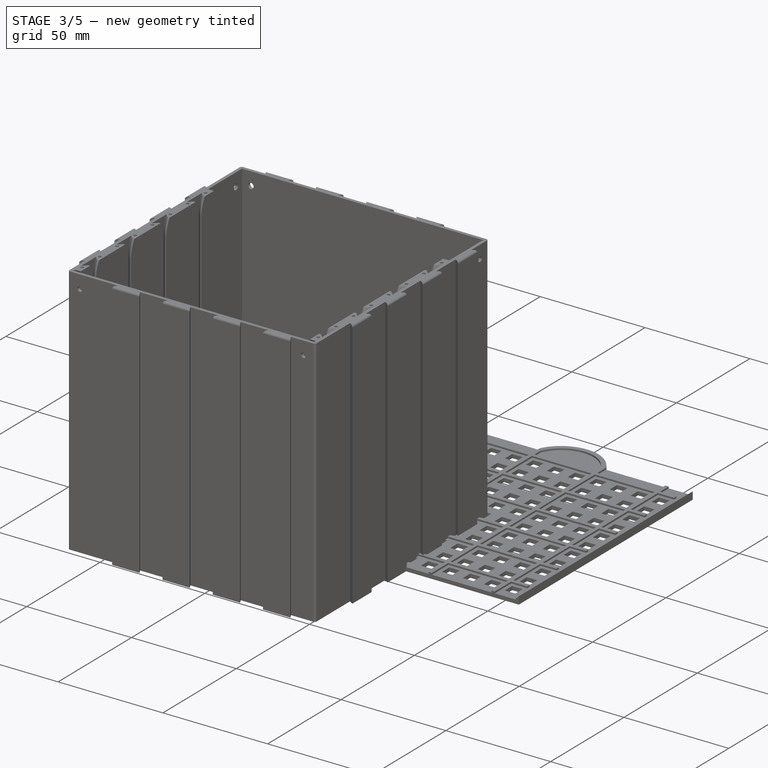
[diagram: stage 3 of 5 — iso view after this stage's code; geometry added in this stage tinted green]
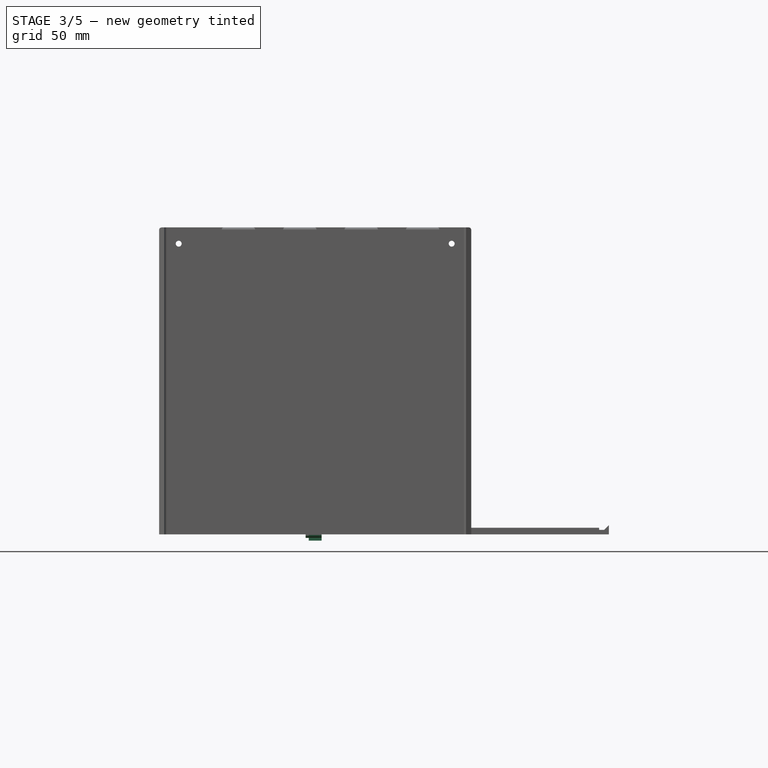
[diagram: stage 3 of 5 — front view after this stage's code; geometry added in this stage tinted green]
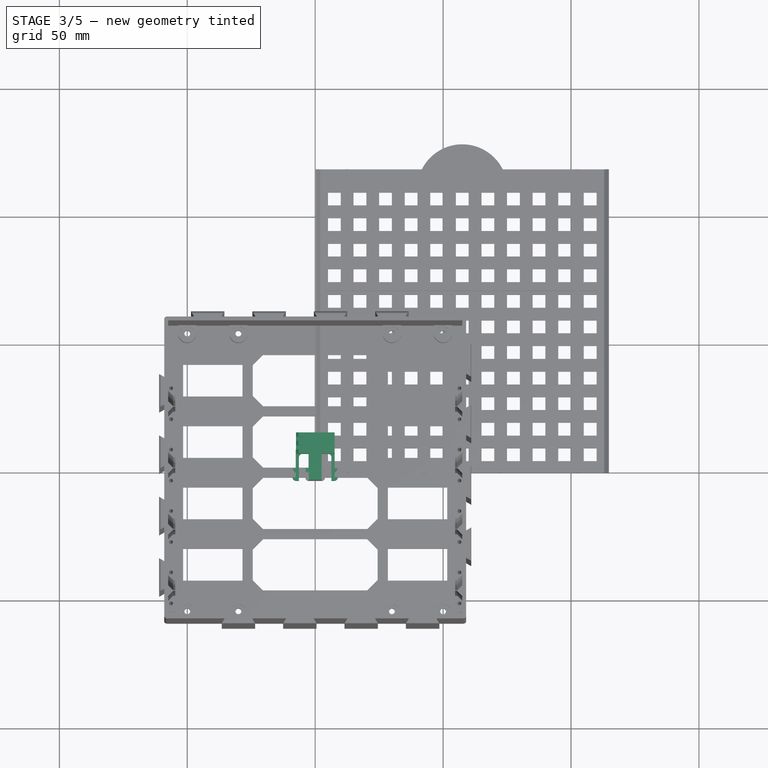
[diagram: stage 3 of 5 — top view after this stage's code; geometry added in this stage tinted green]
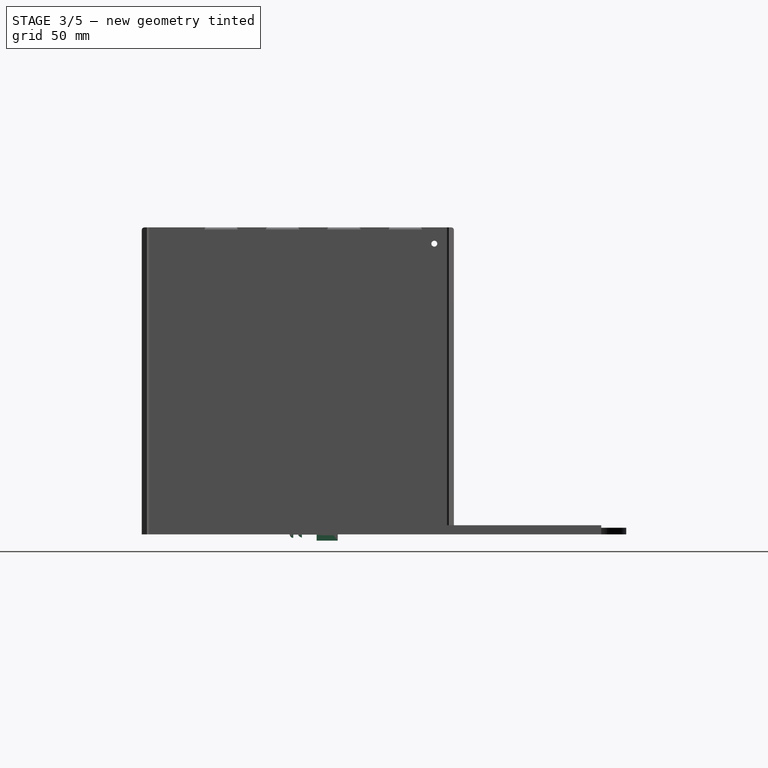
[diagram: stage 3 of 5 — right view after this stage's code; geometry added in this stage tinted green]
FEATURE [Part::Mirroring] Mirror002  label="_bc_d(mirrored)"
  Base = (5,0,0)
  Normal = (-1,0,-1.19209e-07)
  Source = -> Body008
  expr: .Base.x = Spreadsheet.bh_grid
FEATURE [PartDesign::Body] Body015  label="bc_s_2_2"
  Group = -> [Clone006,Sketch056,Sketch057,Sketch058,Sketch059,Pad029,Pad030,Pad031,Pad032,LinearPattern012,Chamfer002]
  Origin = -> Origin015
  Tip = -> Chamfer002
FEATURE [Sketcher::SketchObject] Sketch038  label="Sketch_bc_d_middle"
  FullyConstrained = true
  MapMode = 5
  Support = -> [XY_Plane011]
  expr: Constraints[10] = Spreadsheet.bh_grid * 2
  expr: Constraints[11] = Spreadsheet.bc_holder_thickness
  expr: Constraints[12] = Spreadsheet.bc_top_of_bh_to_bottom_of_pcb
  sketch-geometry (5):
    g0: LineSegment StartX=-5 StartY=9 StartZ=0 EndX=5 EndY=9 EndZ=0
    g1: LineSegment StartX=5 StartY=9 StartZ=0 EndX=5 EndY=7.35 EndZ=0
    g2: LineSegment StartX=5 StartY=7.35 StartZ=0 EndX=-5 EndY=7.35 EndZ=0
    g3: LineSegment StartX=-5 StartY=7.35 StartZ=0 EndX=-5 EndY=9 EndZ=0
    g4: GeomPoint X=0 Y=9 Z=0
  constraints (13):
    c: Coincident(g0,g1)
    c: Coincident(g1,g2)
    c: Coincident(g2,g3)
    c: Coincident(g3,g0)
    c: Horizontal(g0)
    c: Horizontal(g2)
    c: Vertical(g1)
    c: Vertical(g3)
    c: Symmetric(g0,g0,g4)
    c: PointOnObject(g4,g-2)
    c: DistanceX(g2,g2) = 10
    c: DistanceY(g1,g1) = 1.65
    c: DistanceY(g-1,g0) = 9
FEATURE [Part::MultiFuse] Fusion002  label="_bc_d_sides"
  Shapes = -> [Mirror002,Body008]
FEATURE [PartDesign::FeatureBase] Clone003
  BaseFeature = -> Fusion002
  Placement = pos=(-5,0,0) rot=(0,0,1;0rad)
  expr: .Placement.Base.x = -Spreadsheet.bh_grid
FEATURE [PartDesign::Pad] Pad021  label="Pad_bc_d_middle"
  BaseFeature = -> Clone003
  Direction = (0,0,1)
  Length = 5
  Length2 = 10
  Placement = pos=(-5,0,0) rot=(0,0,1;0rad)
  Profile = -> Sketch038
  ReferenceAxis = -> Sketch038 [N_Axis]
  Type = 0
  expr: Length = Spreadsheet.bh_grid
FEATURE [PartDesign::Body] Body003  label="src"
  Group = -> [Sketch012,Pad008,Wedge004,LinearPattern005,Fillet005,Wedge005]
  Origin = -> Origin003
  Placement = pos=(-40,-44.2,50.9) rot=(0,1,0;3.14159rad)
  Tip = -> Wedge005
  expr: .Placement.Base.x = Spreadsheet.bh_edge_to_usb_center_x - Spreadsheet.mc_inner_base_x / 2
  expr: .Placement.Base.y = -Spreadsheet.mc_top_of_bottom_board_y + 2 mm
  expr: .Placement.Base.z = Spreadsheet.mc_back_thickness_z + Spreadsheet.bh_grid * 8.5 + Spreadsheet.bh_edge_to_center_of_first_grid_cutout_y
FEATURE [PartDesign::FeatureBase] Clone017
  BaseFeature = -> Body011
FEATURE [Sketcher::SketchObject] Sketch075  label="Sketch_bc_d_pcb004"
  FullyConstrained = true
  MapMode = 5
  Support = -> [XY_Plane026]
  expr: Constraints[10] = Spreadsheet.bc_top_of_bh_to_bottom_of_pcb
  expr: Constraints[11] = Spreadsheet.bc_d_total_x / 2
  expr: Constraints[8] = Spreadsheet.bc_pcb_thickness
  expr: Constraints[9] = Spreadsheet.bc_grid * 5
  sketch-geometry (4):
    g0: LineSegment StartX=7.6 StartY=10.65 StartZ=0 EndX=7.6 EndY=9 EndZ=0
    g1: LineSegment StartX=7.6 StartY=9 StartZ=0 EndX=-4.9 EndY=9 EndZ=0
    g2: LineSegment StartX=-4.9 StartY=9 StartZ=0 EndX=-4.9 EndY=10.65 EndZ=0
    g3: LineSegment StartX=-4.9 StartY=10.65 StartZ=0 EndX=7.6 EndY=10.65 EndZ=0
  constraints (12):
    c: Coincident(g0,g1)
    c: Coincident(g1,g2)
    c: Coincident(g2,g3)
    c: Coincident(g3,g0)
    c: Horizontal(g1)
    c: Horizontal(g3)
    c: Vertical(g0)
    c: Vertical(g2)
    c: DistanceY(g0,g0) = 1.65
    c: DistanceX(g3,g3) = 12.5
    c: DistanceY(g-1,g0) = 9
    c: DistanceX(g-1,g0) = 7.6
FEATURE [Sketcher::SketchObject] Sketch076  label="Sketch_bc_d_corner004"
  FullyConstrained = true
  MapMode = 5
  Support = -> [XY_Plane026]
  expr: Constraints[10] = Spreadsheet.bc_d_total_x / 2
  expr: Constraints[11] = Spreadsheet.bc_top_of_bh_to_bottom_of_pcb
  expr: Constraints[8] = Spreadsheet.bc_grid * 4 - Spreadsheet.bc_tol_inner_slots
  expr: Constraints[9] = Spreadsheet.bc_pcb_thickness
  sketch-geometry (4):
    g0: LineSegment StartX=-2 StartY=10.65 StartZ=0 EndX=7.6 EndY=10.65 EndZ=0
    g1: LineSegment StartX=7.6 StartY=10.65 StartZ=0 EndX=7.6 EndY=9 EndZ=0
    g2: LineSegment StartX=7.6 StartY=9 StartZ=0 EndX=-2 EndY=9 EndZ=0
    g3: LineSegment StartX=-2 StartY=9 StartZ=0 EndX=-2 EndY=10.65 EndZ=0
  constraints (12):
    c: Coincident(g0,g1)
    c: Coincident(g1,g2)
    c: Coincident(g2,g3)
    c: Coincident(g3,g0)
    c: Horizontal(g0)
    c: Horizontal(g2)
    c: Vertical(g1)
    c: Vertical(g3)
    c: DistanceX(g0,g0) = 9.6
    c: DistanceY(g1,g1) = 1.65
    c: DistanceX(g-1,g0) = 7.6
    c: DistanceY(g-1,g1) = 9
FEATURE [Sketcher::SketchObject] Sketch077  label="Sketch_bc_d_top004"
  FullyConstrained = true
  MapMode = 5
  Support = -> [XY_Plane026]
  expr: Constraints[10] = Spreadsheet.bc_top_of_bh_to_bottom_of_pcb + Spreadsheet.bc_pcb_thickness
  expr: Constraints[11] = Spreadsheet.bc_d_total_x / 2
  expr: Constraints[8] = Spreadsheet.bc_grid * 5
  expr: Constraints[9] = Spreadsheet.bc_holder_thickness
  sketch-geometry (4):
    g0: LineSegment StartX=-4.9 StartY=12.3 StartZ=0 EndX=7.6 EndY=12.3 EndZ=0
    g1: LineSegment StartX=7.6 StartY=12.3 StartZ=0 EndX=7.6 EndY=10.65 EndZ=0
    g2: LineSegment StartX=7.6 StartY=10.65 StartZ=0 EndX=-4.9 EndY=10.65 EndZ=0
    g3: LineSegment StartX=-4.9 StartY=10.65 StartZ=0 EndX=-4.9 EndY=12.3 EndZ=0
  constraints (12):
    c: Coincident(g0,g1)
    c: Coincident(g1,g2)
    c: Coincident(g2,g3)
    c: Coincident(g3,g0)
    c: Horizontal(g0)
    c: Horizontal(g2)
    c: Vertical(g1)
    c: Vertical(g3)
    c: DistanceX(g0,g0) = 12.5
    c: DistanceY(g1,g1) = 1.65
    c: DistanceY(g-1,g1) = 10.65
    c: DistanceX(g-1,g0) = 7.6
FEATURE [Sketcher::SketchObject] Sketch078  label="Sketch_bc_d_holder004"
  FullyConstrained = true
  MapMode = 5
  Support = -> [XY_Plane026]
  expr: Constraints[10] = Spreadsheet.bc_grid * 5
  expr: Constraints[11] = Spreadsheet.bc_top_of_bh_to_bottom_of_pcb
  expr: Constraints[12] = Spreadsheet.bc_d_total_x / 2
  expr: Constraints[9] = Spreadsheet.bc_holder_thickness
  sketch-geometry (5):
    g0: LineSegment StartX=-4.9 StartY=9 StartZ=0 EndX=-4.9 EndY=7.35 EndZ=0
    g1: LineSegment StartX=-4.9 StartY=7.35 StartZ=0 EndX=7.6 EndY=7.35 EndZ=0
    g2: LineSegment StartX=7.6 StartY=7.35 StartZ=0 EndX=7.6 EndY=9 EndZ=0
    g3: LineSegment StartX=7.6 StartY=9 StartZ=0 EndX=-4.9 EndY=9 EndZ=0
    g4: GeomPoint X=1.35 Y=8.175 Z=0
  constraints (13):
    c: Coincident(g0,g1)
    c: Coincident(g1,g2)
    c: Coincident(g2,g3)
    c: Coincident(g3,g0)
    c: Horizontal(g1)
    c: Horizontal(g3)
    c: Vertical(g0)
    c: Vertical(g2)
    c: Symmetric(g1,g0,g4)
    c: DistanceY(g2,g2) = 1.65
    c: DistanceX(g3,g3) = 12.5
    c: DistanceY(g-1,g2) = 9
    c: DistanceX(g-1,g2) = 7.6
FEATURE [PartDesign::Pad] Pad047  label="Pad_bc_d_holder004"
  BaseFeature = -> Clone017
  Direction = (0,0,1)
  Length = 10
  Length2 = 10
  Profile = -> Sketch078
  ReferenceAxis = -> Sketch078 [N_Axis]
  Type = 0
  expr: Length = Spreadsheet.bc_grid * 4
FEATURE [PartDesign::Pad] Pad048  label="Pad_bc_d_corner004"
  BaseFeature = -> Pad047
  Direction = (0,0,1)
  Length = 10
  Length2 = 10
  Profile = -> Sketch076
  ReferenceAxis = -> Sketch076 [N_Axis]
  Type = 0
  expr: Length = Spreadsheet.bc_grid * 4
FEATURE [PartDesign::Pad] Pad049  label="Pad_bc_d_pcb004"
  BaseFeature = -> Pad048
  Direction = (0,0,1)
  Length = 7.1
  Length2 = 10
  Profile = -> Sketch075
  ReferenceAxis = -> Sketch075 [N_Axis]
  Type = 0
  expr: Length = Spreadsheet.bc_grid * 3 - Spreadsheet.bc_tol_inner_slots
FEATURE [PartDesign::Pad] Pad050  label="Pad_bc_d_top004"
  BaseFeature = -> Pad049
  Direction = (0,0,1)
  Length = 10
  Length2 = 10
  Profile = -> Sketch077
  ReferenceAxis = -> Sketch077 [N_Axis]
  Type = 0
  expr: Length = Spreadsheet.bc_grid * 4
FEATURE [PartDesign::LinearPattern] LinearPattern017
  BaseFeature = -> Pad050
  Direction = -> Sketch077 [V_Axis]
  Length = 3.3
  Occurrences = 2
  Originals = -> [Pad050,Pad049,Pad048]
  expr: Length = Spreadsheet.bc_total_y_from_bottom_of_pcb
  expr: Occurrences = Spreadsheet.bc_slots
FEATURE [PartDesign::Chamfer] Chamfer007
  Angle = 45
  Base = -> LinearPattern017 [Edge75,Edge40,Edge25]
  BaseFeature = -> LinearPattern017
  ChamferType = 0
  FlipDirection = false
  Size = 1
  Size2 = 1
  SupportTransform = false
  UseAllEdges = false
FEATURE [Sketcher::SketchObject] Sketch086  label="Sketch_bc_d_pcb007"
  FullyConstrained = true
  MapMode = 5
  Support = -> [XY_Plane032]
  expr: Constraints[10] = Spreadsheet.bc_top_of_bh_to_bottom_of_pcb
  expr: Constraints[11] = Spreadsheet.bc_d_total_x / 2
  expr: Constraints[8] = Spreadsheet.bc_pcb_thickness
  expr: Constraints[9] = Spreadsheet.bc_grid * 4
  sketch-geometry (4):
    g0: LineSegment StartX=7.6 StartY=10.65 StartZ=0 EndX=7.6 EndY=9 EndZ=0
    g1: LineSegment StartX=7.6 StartY=9 StartZ=0 EndX=-2.4 EndY=9 EndZ=0
    g2: LineSegment StartX=-2.4 StartY=9 StartZ=0 EndX=-2.4 EndY=10.65 EndZ=0
    g3: LineSegment StartX=-2.4 StartY=10.65 StartZ=0 EndX=7.6 EndY=10.65 EndZ=0
  constraints (12):
    c: Coincident(g0,g1)
    c: Coincident(g1,g2)
    c: Coincident(g2,g3)
    c: Coincident(g3,g0)
    c: Horizontal(g1)
    c: Horizontal(g3)
    c: Vertical(g0)
    c: Vertical(g2)
    c: DistanceY(g0,g0) = 1.65
    c: DistanceX(g3,g3) = 10
    c: DistanceY(g-1,g0) = 9
    c: DistanceX(g-1,g0) = 7.6
FEATURE [Sketcher::SketchObject] Sketch087  label="Sketch_bc_d_corner007"
  FullyConstrained = true
  MapMode = 5
  Support = -> [XY_Plane032]
  expr: Constraints[10] = Spreadsheet.bc_d_total_x / 2
  expr: Constraints[11] = Spreadsheet.bc_top_of_bh_to_bottom_of_pcb
  expr: Constraints[8] = Spreadsheet.bc_grid * 3 - Spreadsheet.bc_tol_inner_slots
  expr: Constraints[9] = Spreadsheet.bc_pcb_thickness
  sketch-geometry (4):
    g0: LineSegment StartX=0.5 StartY=10.65 StartZ=0 EndX=7.6 EndY=10.65 EndZ=0
    g1: LineSegment StartX=7.6 StartY=10.65 StartZ=0 EndX=7.6 EndY=9 EndZ=0
    g2: LineSegment StartX=7.6 StartY=9 StartZ=0 EndX=0.5 EndY=9 EndZ=0
    g3: LineSegment StartX=0.5 StartY=9 StartZ=0 EndX=0.5 EndY=10.65 EndZ=0
  constraints (12):
    c: Coincident(g0,g1)
    c: Coincident(g1,g2)
    c: Coincident(g2,g3)
    c: Coincident(g3,g0)
    c: Horizontal(g0)
    c: Horizontal(g2)
    c: Vertical(g1)
    c: Vertical(g3)
    c: DistanceX(g0,g0) = 7.1
    c: DistanceY(g1,g1) = 1.65
    c: DistanceX(g-1,g0) = 7.6
    c: DistanceY(g-1,g1) = 9
FEATURE [Sketcher::SketchObject] Sketch088  label="Sketch_bc_d_top007"
  FullyConstrained = true
  MapMode = 5
  Support = -> [XY_Plane032]
  expr: Constraints[10] = Spreadsheet.bc_top_of_bh_to_bottom_of_pcb + Spreadsheet.bc_pcb_thickness
  expr: Constraints[11] = Spreadsheet.bc_d_total_x / 2
  expr: Constraints[8] = Spreadsheet.bc_grid * 4
  expr: Constraints[9] = Spreadsheet.bc_holder_thickness
  sketch-geometry (4):
    g0: LineSegment StartX=-2.4 StartY=12.3 StartZ=0 EndX=7.6 EndY=12.3 EndZ=0
    g1: LineSegment StartX=7.6 StartY=12.3 StartZ=0 EndX=7.6 EndY=10.65 EndZ=0
    g2: LineSegment StartX=7.6 StartY=10.65 StartZ=0 EndX=-2.4 EndY=10.65 EndZ=0
    g3: LineSegment StartX=-2.4 StartY=10.65 StartZ=0 EndX=-2.4 EndY=12.3 EndZ=0
  constraints (12):
    c: Coincident(g0,g1)
    c: Coincident(g1,g2)
    c: Coincident(g2,g3)
    c: Coincident(g3,g0)
    c: Horizontal(g0)
    c: Horizontal(g2)
    c: Vertical(g1)
    c: Vertical(g3)
    c: DistanceX(g0,g0) = 10
    c: DistanceY(g1,g1) = 1.65
    c: DistanceY(g-1,g1) = 10.65
    c: DistanceX(g-1,g0) = 7.6
FEATURE [Sketcher::SketchObject] Sketch089  label="Sketch_bc_d_holder007"
  FullyConstrained = true
  MapMode = 5
  Support = -> [XY_Plane032]
  expr: Constraints[10] = Spreadsheet.bc_grid * 4
  expr: Constraints[11] = Spreadsheet.bc_top_of_bh_to_bottom_of_pcb
  expr: Constraints[12] = Spreadsheet.bc_d_total_x / 2
  expr: Constraints[9] = Spreadsheet.bc_holder_thickness
  sketch-geometry (5):
    g0: LineSegment StartX=-2.4 StartY=9 StartZ=0 EndX=-2.4 EndY=7.35 EndZ=0
    g1: LineSegment StartX=-2.4 StartY=7.35 StartZ=0 EndX=7.6 EndY=7.35 EndZ=0
    g2: LineSegment StartX=7.6 StartY=7.35 StartZ=0 EndX=7.6 EndY=9 EndZ=0
    g3: LineSegment StartX=7.6 StartY=9 StartZ=0 EndX=-2.4 EndY=9 EndZ=0
    g4: GeomPoint X=2.6 Y=8.175 Z=0
  constraints (13):
    c: Coincident(g0,g1)
    c: Coincident(g1,g2)
    c: Coincident(g2,g3)
    c: Coincident(g3,g0)
    c: Horizontal(g1)
    c: Horizontal(g3)
    c: Vertical(g0)
    c: Vertical(g2)
    c: Symmetric(g1,g0,g4)
    c: DistanceY(g2,g2) = 1.65
    c: DistanceX(g3,g3) = 10
    c: DistanceY(g-1,g2) = 9
    c: DistanceX(g-1,g2) = 7.6
FEATURE [PartDesign::FeatureBase] Clone022
  BaseFeature = -> Body011
FEATURE [PartDesign::Pad] Pad058  label="Pad_bc_d_holder007"
  BaseFeature = -> Clone022
  Direction = (0,0,1)
  Length = 10
  Length2 = 10
  Profile = -> Sketch089
  ReferenceAxis = -> Sketch089 [N_Axis]
  Type = 0
  expr: Length = Spreadsheet.bc_grid * 4
FEATURE [PartDesign::Pad] Pad059  label="Pad_bc_d_pcb007"
  BaseFeature = -> Pad058
  Direction = (0,0,1)
  Length = 7.1
  Length2 = 10
  Profile = -> Sketch086
  ReferenceAxis = -> Sketch086 [N_Axis]
  Type = 0
  expr: Length = Spreadsheet.bc_grid * 3 - Spreadsheet.bc_tol_inner_slots
FEATURE [PartDesign::Body] Body031  label="bc_d_3_3"
  Group = -> [Clone022,Sketch086,Sketch087,Sketch088,Sketch089,Pad058,Pad059,Pad060,Pad061,LinearPattern020,Chamfer010]
  Origin = -> Origin032
  Placement = pos=(-5,0,0) rot=(0,0,1;0rad)
  Tip = -> Chamfer010
  expr: .Placement.Base.x = -Spreadsheet.bc_grid * 2
FEATURE [PartDesign::FeatureBase] Clone023
  BaseFeature = -> Body026
FEATURE [PartDesign::Body] Body032  label="bc_d_4_3"
  Group = -> [Clone023]
  Origin = -> Origin033
  Placement = pos=(-5,0,0) rot=(0,0,1;0rad)
  Tip = -> Clone023
  expr: .Placement.Base.x = -Spreadsheet.bc_grid * 2
FEATURE [Part::Mirroring] Mirror009  label="bc_d_3_4"
  Base = (0,0,0)
  Normal = (1,0,0)
  Placement = pos=(2.5,0,7.6) rot=(0,-1,0;1.5708rad)
  Source = -> Body026
  expr: .Placement.Base.x = Spreadsheet.bc_grid
  expr: .Placement.Base.z = Spreadsheet.bc_d_total_x / 2
FEATURE [PartDesign::FeatureBase] Clone026
  BaseFeature = -> Body011
FEATURE [Sketcher::SketchObject] Sketch094  label="Sketch_bc_d_pcb009"
  FullyConstrained = true
  MapMode = 5
  Support = -> [XY_Plane036]
  expr: Constraints[10] = Spreadsheet.bc_top_of_bh_to_bottom_of_pcb
  expr: Constraints[11] = Spreadsheet.bc_d_total_x / 2
  expr: Constraints[8] = Spreadsheet.bc_pcb_thickness
  expr: Constraints[9] = Spreadsheet.bc_grid * 5
  sketch-geometry (4):
    g0: LineSegment StartX=7.6 StartY=10.65 StartZ=0 EndX=7.6 EndY=9 EndZ=0
    g1: LineSegment StartX=7.6 StartY=9 StartZ=0 EndX=-4.9 EndY=9 EndZ=0
    g2: LineSegment StartX=-4.9 StartY=9 StartZ=0 EndX=-4.9 EndY=10.65 EndZ=0
    g3: LineSegment StartX=-4.9 StartY=10.65 StartZ=0 EndX=7.6 EndY=10.65 EndZ=0
  constraints (12):
    c: Coincident(g0,g1)
    c: Coincident(g1,g2)
    c: Coincident(g2,g3)
    c: Coincident(g3,g0)
    c: Horizontal(g1)
    c: Horizontal(g3)
    c: Vertical(g0)
    c: Vertical(g2)
    c: DistanceY(g0,g0) = 1.65
    c: DistanceX(g3,g3) = 12.5
    c: DistanceY(g-1,g0) = 9
    c: DistanceX(g-1,g0) = 7.6
FEATURE [Sketcher::SketchObject] Sketch095  label="Sketch_bc_d_corner009"
  FullyConstrained = true
  MapMode = 5
  Support = -> [XY_Plane036]
  expr: Constraints[10] = Spreadsheet.bc_d_total_x / 2
  expr: Constraints[11] = Spreadsheet.bc_top_of_bh_to_bottom_of_pcb
  expr: Constraints[8] = Spreadsheet.bc_grid * 4 - Spreadsheet.bc_tol_inner_slots
  expr: Constraints[9] = Spreadsheet.bc_pcb_thickness
  sketch-geometry (4):
    g0: LineSegment StartX=-2 StartY=10.65 StartZ=0 EndX=7.6 EndY=10.65 EndZ=0
    g1: LineSegment StartX=7.6 StartY=10.65 StartZ=0 EndX=7.6 EndY=9 EndZ=0
    g2: LineSegment StartX=7.6 StartY=9 StartZ=0 EndX=-2 EndY=9 EndZ=0
    g3: LineSegment StartX=-2 StartY=9 StartZ=0 EndX=-2 EndY=10.65 EndZ=0
  constraints (12):
    c: Coincident(g0,g1)
    c: Coincident(g1,g2)
    c: Coincident(g2,g3)
    c: Coincident(g3,g0)
    c: Horizontal(g0)
    c: Horizontal(g2)
    c: Vertical(g1)
    c: Vertical(g3)
    c: DistanceX(g0,g0) = 9.6
    c: DistanceY(g1,g1) = 1.65
    c: DistanceX(g-1,g0) = 7.6
    c: DistanceY(g-1,g1) = 9
FEATURE [Sketcher::SketchObject] Sketch096  label="Sketch_bc_d_top009"
  FullyConstrained = true
  MapMode = 5
  Support = -> [XY_Plane036]
  expr: Constraints[10] = Spreadsheet.bc_top_of_bh_to_bottom_of_pcb + Spreadsheet.bc_pcb_thickness
  expr: Constraints[11] = Spreadsheet.bc_d_total_x / 2
  expr: Constraints[8] = Spreadsheet.bc_grid * 5
  expr: Constraints[9] = Spreadsheet.bc_holder_thickness
  sketch-geometry (4):
    g0: LineSegment StartX=-4.9 StartY=12.3 StartZ=0 EndX=7.6 EndY=12.3 EndZ=0
    g1: LineSegment StartX=7.6 StartY=12.3 StartZ=0 EndX=7.6 EndY=10.65 EndZ=0
    g2: LineSegment StartX=7.6 StartY=10.65 StartZ=0 EndX=-4.9 EndY=10.65 EndZ=0
    g3: LineSegment StartX=-4.9 StartY=10.65 StartZ=0 EndX=-4.9 EndY=12.3 EndZ=0
  constraints (12):
    c: Coincident(g0,g1)
    c: Coincident(g1,g2)
    c: Coincident(g2,g3)
    c: Coincident(g3,g0)
    c: Horizontal(g0)
    c: Horizontal(g2)
    c: Vertical(g1)
    c: Vertical(g3)
    c: DistanceX(g0,g0) = 12.5
    c: DistanceY(g1,g1) = 1.65
    c: DistanceY(g-1,g1) = 10.65
    c: DistanceX(g-1,g0) = 7.6
FEATURE [Sketcher::SketchObject] Sketch097  label="Sketch_bc_d_holder009"
  FullyConstrained = true
  MapMode = 5
  Support = -> [XY_Plane036]
  expr: Constraints[10] = Spreadsheet.bc_grid * 5
  expr: Constraints[11] = Spreadsheet.bc_top_of_bh_to_bottom_of_pcb
  expr: Constraints[12] = Spreadsheet.bc_d_total_x / 2
  expr: Constraints[9] = Spreadsheet.bc_holder_thickness
  sketch-geometry (5):
    g0: LineSegment StartX=-4.9 StartY=9 StartZ=0 EndX=-4.9 EndY=7.35 EndZ=0
    g1: LineSegment StartX=-4.9 StartY=7.35 StartZ=0 EndX=7.6 EndY=7.35 EndZ=0
    g2: LineSegment StartX=7.6 StartY=7.35 StartZ=0 EndX=7.6 EndY=9 EndZ=0
    g3: LineSegment StartX=7.6 StartY=9 StartZ=0 EndX=-4.9 EndY=9 EndZ=0
    g4: GeomPoint X=1.35 Y=8.175 Z=0
  constraints (13):
    c: Coincident(g0,g1)
    c: Coincident(g1,g2)
    c: Coincident(g2,g3)
    c: Coincident(g3,g0)
    c: Horizontal(g1)
    c: Horizontal(g3)
    c: Vertical(g0)
    c: Vertical(g2)
    c: Symmetric(g1,g0,g4)
    c: DistanceY(g2,g2) = 1.65
    c: DistanceX(g3,g3) = 12.5
    c: DistanceY(g-1,g2) = 9
    c: DistanceX(g-1,g2) = 7.6
FEATURE [PartDesign::Pad] Pad066  label="Pad_bc_d_holder009"
  BaseFeature = -> Clone026
  Direction = (0,0,1)
  Length = 12.5
  Length2 = 10
  Profile = -> Sketch097
  ReferenceAxis = -> Sketch097 [N_Axis]
  Type = 0
  expr: Length = Spreadsheet.bc_grid * 5
FEATURE [PartDesign::Pad] Pad067  label="Pad_bc_d_pcb009"
  BaseFeature = -> Pad066
  Direction = (0,0,1)
  Length = 9.6
  Length2 = 10
  Profile = -> Sketch094
  ReferenceAxis = -> Sketch094 [N_Axis]
  Type = 0
  expr: Length = Spreadsheet.bc_grid * 4 - Spreadsheet.bc_tol_inner_slots
FEATURE [PartDesign::Pad] Pad068  label="Pad_bc_d_corner009"
  BaseFeature = -> Pad067
  Direction = (0,0,1)
  Length = 12.5
  Length2 = 10
  Profile = -> Sketch095
  ReferenceAxis = -> Sketch095 [N_Axis]
  Type = 0
  expr: Length = Spreadsheet.bc_grid * 5
FEATURE [PartDesign::Pad] Pad069  label="Pad_bc_d_top009"
  BaseFeature = -> Pad068
  Direction = (0,0,1)
  Length = 12.5
  Length2 = 10
  Profile = -> Sketch096
  ReferenceAxis = -> Sketch096 [N_Axis]
  Type = 0
  expr: Length = Spreadsheet.bc_grid * 5
FEATURE [PartDesign::LinearPattern] LinearPattern022
  BaseFeature = -> Pad069
  Direction = -> Sketch096 [V_Axis]
  Length = 3.3
  Occurrences = 2
  Originals = -> [Pad069,Pad068,Pad067]
  expr: Length = Spreadsheet.bc_total_y_from_bottom_of_pcb
  expr: Occurrences = Spreadsheet.bc_slots
FEATURE [PartDesign::Chamfer] Chamfer012
  Angle = 45
  Base = -> LinearPattern022 [Edge78,Edge36,Edge42]
  BaseFeature = -> LinearPattern022
  ChamferType = 0
  FlipDirection = false
  Size = 1
  Size2 = 1
  SupportTransform = false
  UseAllEdges = false
FEATURE [Sketcher::SketchObject] Sketch102  label="Sketch_bc_s_pcb003"
  FullyConstrained = true
  MapMode = 5
  Support = -> [XY_Plane039]
  expr: Constraints[10] = Spreadsheet.bc_grid * 3
  expr: Constraints[11] = Spreadsheet.bc_s_total_x / 2
  expr: Constraints[8] = Spreadsheet.bc_pcb_thickness
  expr: Constraints[9] = Spreadsheet.bc_top_of_bh_to_bottom_of_pcb
  sketch-geometry (4):
    g0: LineSegment StartX=4.9 StartY=10.65 StartZ=0 EndX=4.9 EndY=9 EndZ=0
    g1: LineSegment StartX=4.9 StartY=9 StartZ=0 EndX=-2.6 EndY=9 EndZ=0
    g2: LineSegment StartX=-2.6 StartY=9 StartZ=0 EndX=-2.6 EndY=10.65 EndZ=0
    g3: LineSegment StartX=-2.6 StartY=10.65 StartZ=0 EndX=4.9 EndY=10.65 EndZ=0
  constraints (12):
    c: Coincident(g0,g1)
    c: Coincident(g1,g2)
    c: Coincident(g2,g3)
    c: Coincident(g3,g0)
    c: Horizontal(g1)
    c: Horizontal(g3)
    c: Vertical(g0)
    c: Vertical(g2)
    c: DistanceY(g0,g0) = 1.65
    c: DistanceY(g-1,g0) = 9
    c: DistanceX(g3,g3) = 7.5
    c: DistanceX(g2,g-1) = 2.6
FEATURE [Sketcher::SketchObject] Sketch103  label="Sketch_bc_s_corner003"
  FullyConstrained = true
  MapMode = 5
  Support = -> [XY_Plane039]
  expr: Constraints[10] = Spreadsheet.bc_grid * 3 - Spreadsheet.bc_s_total_x / 2
  expr: Constraints[11] = Spreadsheet.bc_top_of_bh_to_bottom_of_pcb
  expr: Constraints[8] = Spreadsheet.bc_grid * 1 - Spreadsheet.bc_tol_inner_slots
  expr: Constraints[9] = Spreadsheet.bc_pcb_thickness
  sketch-geometry (4):
    g0: LineSegment StartX=2.8 StartY=10.65 StartZ=0 EndX=4.9 EndY=10.65 EndZ=0
    g1: LineSegment StartX=4.9 StartY=10.65 StartZ=0 EndX=4.9 EndY=9 EndZ=0
    g2: LineSegment StartX=4.9 StartY=9 StartZ=0 EndX=2.8 EndY=9 EndZ=0
    g3: LineSegment StartX=2.8 StartY=9 StartZ=0 EndX=2.8 EndY=10.65 EndZ=0
  constraints (12):
    c: Coincident(g0,g1)
    c: Coincident(g1,g2)
    c: Coincident(g2,g3)
    c: Coincident(g3,g0)
    c: Horizontal(g0)
    c: Horizontal(g2)
    c: Vertical(g1)
    c: Vertical(g3)
    c: DistanceX(g0,g0) = 2.1
    c: DistanceY(g1,g1) = 1.65
    c: DistanceX(g-1,g0) = 4.9
    c: DistanceY(g-1,g1) = 9
FEATURE [Sketcher::SketchObject] Sketch104  label="Sketch_bc_s_top003"
  FullyConstrained = true
  MapMode = 5
  Support = -> [XY_Plane039]
  expr: Constraints[10] = Spreadsheet.bc_top_of_bh_to_bottom_of_pcb + Spreadsheet.bc_pcb_thickness
  expr: Constraints[11] = Spreadsheet.bc_s_total_x / 2
  expr: Constraints[8] = Spreadsheet.bc_grid * 3
  expr: Constraints[9] = Spreadsheet.bc_holder_thickness
  sketch-geometry (4):
    g0: LineSegment StartX=-2.6 StartY=12.3 StartZ=0 EndX=4.9 EndY=12.3 EndZ=0
    g1: LineSegment StartX=4.9 StartY=12.3 StartZ=0 EndX=4.9 EndY=10.65 EndZ=0
    g2: LineSegment StartX=4.9 StartY=10.65 StartZ=0 EndX=-2.6 EndY=10.65 EndZ=0
    g3: LineSegment StartX=-2.6 StartY=10.65 StartZ=0 EndX=-2.6 EndY=12.3 EndZ=0
  constraints (12):
    c: Coincident(g0,g1)
    c: Coincident(g1,g2)
    c: Coincident(g2,g3)
    c: Coincident(g3,g0)
    c: Horizontal(g0)
    c: Horizontal(g2)
    c: Vertical(g1)
    c: Vertical(g3)
    c: DistanceX(g0,g0) = 7.5
    c: DistanceY(g1,g1) = 1.65
    c: DistanceY(g-1,g1) = 10.65
    c: DistanceX(g0,g-1) = 2.6
FEATURE [Sketcher::SketchObject] Sketch105  label="Sketch_bc_s_holder003"
  FullyConstrained = true
  MapMode = 5
  Support = -> [XY_Plane039]
  expr: Constraints[10] = Spreadsheet.bc_grid * 3
  expr: Constraints[11] = Spreadsheet.bc_top_of_bh_to_bottom_of_pcb
  expr: Constraints[12] = Spreadsheet.bc_s_total_x / 2
  expr: Constraints[9] = Spreadsheet.bc_holder_thickness
  sketch-geometry (5):
    g0: LineSegment StartX=-2.6 StartY=9 StartZ=0 EndX=-2.6 EndY=7.35 EndZ=0
    g1: LineSegment StartX=-2.6 StartY=7.35 StartZ=0 EndX=4.9 EndY=7.35 EndZ=0
    g2: LineSegment StartX=4.9 StartY=7.35 StartZ=0 EndX=4.9 EndY=9 EndZ=0
    g3: LineSegment StartX=4.9 StartY=9 StartZ=0 EndX=-2.6 EndY=9 EndZ=0
    g4: GeomPoint X=1.15 Y=8.175 Z=0
  constraints (13):
    c: Coincident(g0,g1)
    c: Coincident(g1,g2)
    c: Coincident(g2,g3)
    c: Coincident(g3,g0)
    c: Horizontal(g1)
    c: Horizontal(g3)
    c: Vertical(g0)
    c: Vertical(g2)
    c: Symmetric(g1,g0,g4)
    c: DistanceY(g2,g2) = 1.65
    c: DistanceX(g3,g3) = 7.5
    c: DistanceY(g-1,g2) = 9
    c: DistanceX(g0,g-1) = 2.6
FEATURE [PartDesign::Pad] Pad074  label="Pad_bc_s_holder003"
  BaseFeature = -> Clone029
  Direction = (0,0,1)
  Length = 5
  Length2 = 10
  Profile = -> Sketch105
  ReferenceAxis = -> Sketch105 [N_Axis]
  Type = 0
  expr: Length = Spreadsheet.bc_grid * 2
FEATURE [PartDesign::Pad] Pad075  label="Pad_bc_s_pcb003"
  BaseFeature = -> Pad074
  Direction = (0,0,1)
  Length = 2.1
  Length2 = 10
  Profile = -> Sketch102
  ReferenceAxis = -> Sketch102 [N_Axis]
  Type = 0
  expr: Length = Spreadsheet.bc_grid - Spreadsheet.bc_tol_inner_slots
FEATURE [PartDesign::Pad] Pad076  label="Pad_bc_s_corner003"
  BaseFeature = -> Pad075
  Direction = (0,0,1)
  Length = 5
  Length2 = 10
  Profile = -> Sketch103
  ReferenceAxis = -> Sketch103 [N_Axis]
  Type = 0
  expr: Length = Spreadsheet.bc_grid * 2
FEATURE [PartDesign::Pad] Pad077  label="Pad_bc_s_top003"
  BaseFeature = -> Pad076
  Direction = (0,0,1)
  Length = 5
  Length2 = 10
  Profile = -> Sketch104
  ReferenceAxis = -> Sketch104 [N_Axis]
  Type = 0
  expr: Length = Spreadsheet.bc_grid * 2
FEATURE [PartDesign::LinearPattern] LinearPattern024
  BaseFeature = -> Pad077
  Direction = -> Sketch104 [V_Axis]
  Length = 3.3
  Occurrences = 2
  Originals = -> [Pad077,Pad076,Pad075]
  expr: Length = Spreadsheet.bc_total_y_from_bottom_of_pcb
  expr: Occurrences = Spreadsheet.bc_slots
FEATURE [PartDesign::Chamfer] Chamfer014
  Angle = 45
  Base = -> LinearPattern024 [Edge89,Edge35,Edge41]
  BaseFeature = -> LinearPattern024
  ChamferType = 0
  FlipDirection = false
  Size = 1
  Size2 = 1
  SupportTransform = false
  UseAllEdges = false
FEATURE [PartDesign::Body] Body038  label="_bc_s_0_1"
  Group = -> [Clone029,Sketch102,Sketch103,Sketch104,Sketch105,Pad074,Pad075,Pad076,Pad077,LinearPattern024,Chamfer014]
  Origin = -> Origin039
  Tip = -> Chamfer014
FEATURE [PartDesign::FeatureBase] Clone030
  BaseFeature = -> Body038
FEATURE [PartDesign::Body] Body039  label="bc_s_0_1"
  Group = -> [Clone030]
  Origin = -> Origin040
  Tip = -> Clone030
FEATURE [Part::Mirroring] Mirror012  label="bc_s_1_0"
  Base = (0,0,0)
  Normal = (1,0,0)
  Placement = pos=(2.5,0,2.5) rot=(0,-1,0;1.5708rad)
  Source = -> Body038
  expr: .Placement.Base.x = Spreadsheet.bc_grid
  expr: .Placement.Base.z = Spreadsheet.bc_grid
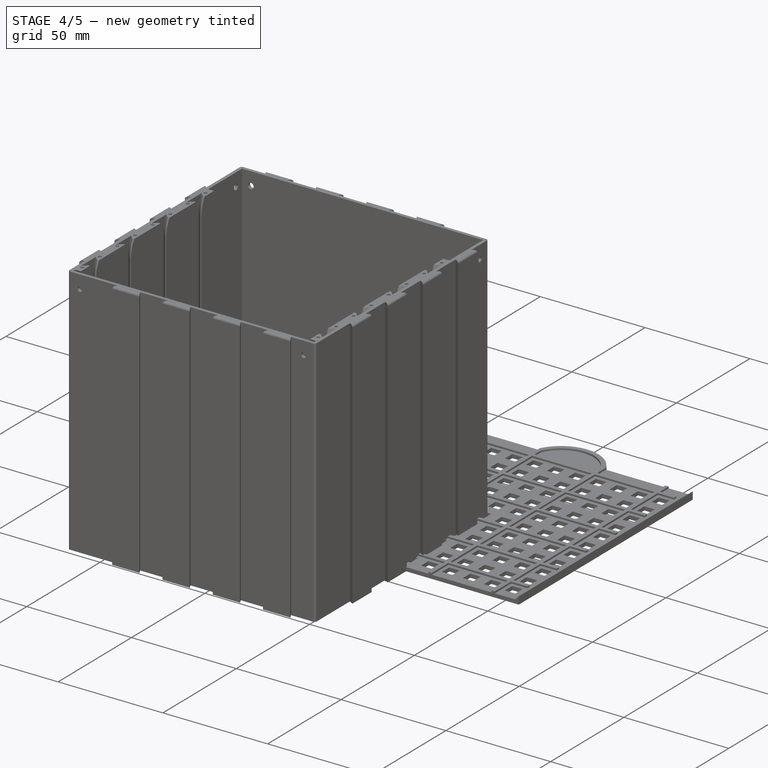
[diagram: stage 4 of 5 — iso view after this stage's code; geometry added in this stage tinted green]
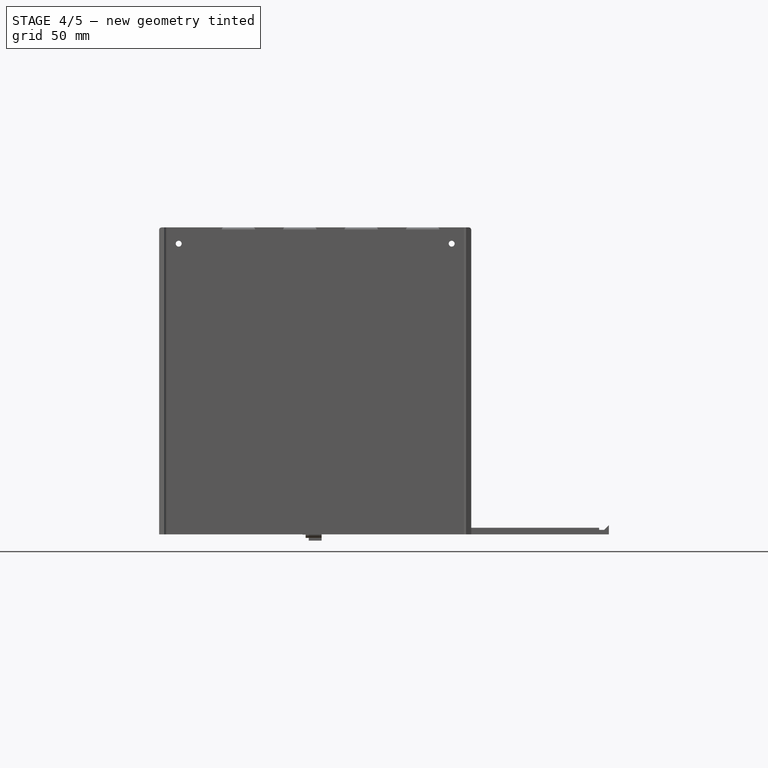
[diagram: stage 4 of 5 — front view after this stage's code; geometry added in this stage tinted green]
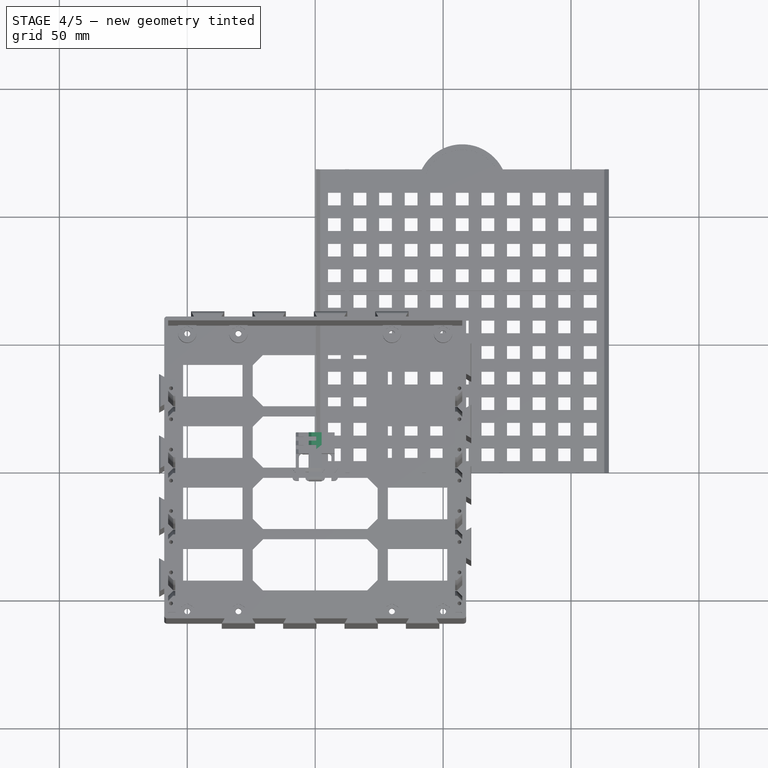
[diagram: stage 4 of 5 — top view after this stage's code; geometry added in this stage tinted green]
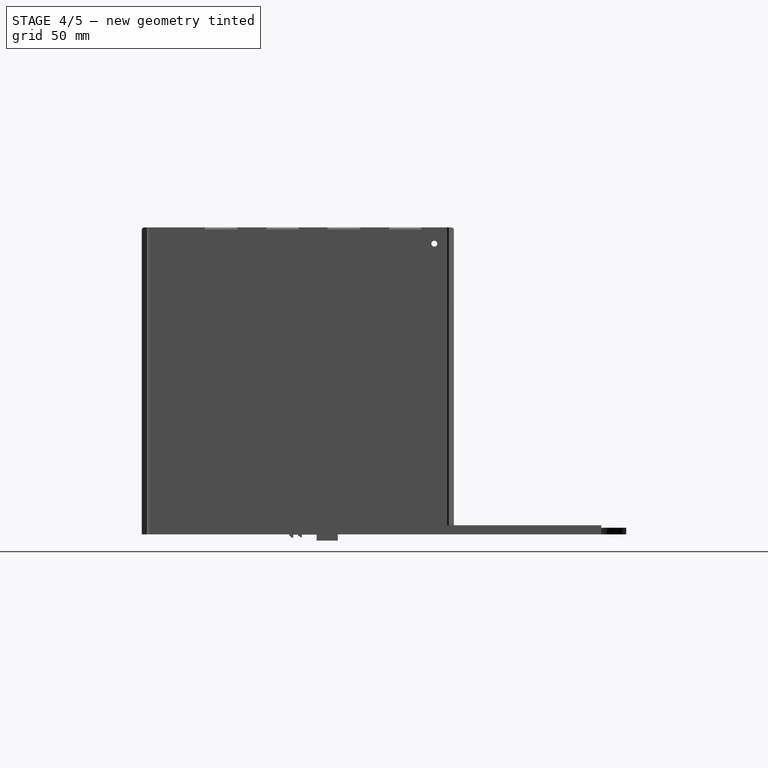
[diagram: stage 4 of 5 — right view after this stage's code; geometry added in this stage tinted green]
FEATURE [PartDesign::FeatureBase] Clone005
  BaseFeature = -> Fusion001
FEATURE [Sketcher::SketchObject] Sketch051  label="Sketch_bc_s_holder"
  FullyConstrained = true
  MapMode = 5
  Support = -> [XY_Plane012]
  expr: Constraints[10] = Spreadsheet.bc_s_total_x
  expr: Constraints[12] = Spreadsheet.bc_top_of_bh_to_bottom_of_pcb
  expr: Constraints[9] = Spreadsheet.bc_holder_thickness
  sketch-geometry (5):
    g0: LineSegment StartX=-2.6 StartY=9 StartZ=0 EndX=-2.6 EndY=7.35 EndZ=0
    g1: LineSegment StartX=-2.6 StartY=7.35 StartZ=0 EndX=2.6 EndY=7.35 EndZ=0
    g2: LineSegment StartX=2.6 StartY=7.35 StartZ=0 EndX=2.6 EndY=9 EndZ=0
    g3: LineSegment StartX=2.6 StartY=9 StartZ=0 EndX=-2.6 EndY=9 EndZ=0
    g4: GeomPoint X=0 Y=8.175 Z=0
  constraints (13):
    c: Coincident(g0,g1)
    c: Coincident(g1,g2)
    c: Coincident(g2,g3)
    c: Coincident(g3,g0)
    c: Horizontal(g1)
    c: Horizontal(g3)
    c: Vertical(g0)
    c: Vertical(g2)
    c: Symmetric(g1,g0,g4)
    c: DistanceY(g2,g2) = 1.65
    c: DistanceX(g3,g3) = 5.2
    c: PointOnObject(g4,g-2)
    c: DistanceY(g-1,g2) = 9
FEATURE [PartDesign::Body] Body012  label="bc_s_1_1"
  Group = -> [Clone,Sketch040,Sketch041,Sketch042,Pad022,Pad023,Pad024,LinearPattern010,Chamfer,Sketch051]
  Origin = -> Origin012
  Tip = -> Chamfer
FEATURE [Sketcher::SketchObject] Sketch052  label="Sketch_bc_s_pcb001"
  FullyConstrained = true
  MapMode = 5
  Support = -> [XY_Plane014]
  expr: Constraints[10] = Spreadsheet.bc_pcb_thickness
  expr: Constraints[11] = Spreadsheet.bc_s_total_x
  expr: Constraints[12] = Spreadsheet.bc_top_of_bh_to_bottom_of_pcb
  sketch-geometry (5):
    g0: LineSegment StartX=2.6 StartY=10.65 StartZ=0 EndX=2.6 EndY=9 EndZ=0
    g1: LineSegment StartX=2.6 StartY=9 StartZ=0 EndX=-2.6 EndY=9 EndZ=0
    g2: LineSegment StartX=-2.6 StartY=9 StartZ=0 EndX=-2.6 EndY=10.65 EndZ=0
    g3: LineSegment StartX=-2.6 StartY=10.65 StartZ=0 EndX=2.6 EndY=10.65 EndZ=0
    g4: GeomPoint X=0 Y=9.825 Z=0
  constraints (13):
    c: Coincident(g0,g1)
    c: Coincident(g1,g2)
    c: Coincident(g2,g3)
    c: Coincident(g3,g0)
    c: Horizontal(g1)
    c: Horizontal(g3)
    c: Vertical(g0)
    c: Vertical(g2)
    c: Symmetric(g1,g0,g4)
    c: PointOnObject(g4,g-2)
    c: DistanceY(g0,g0) = 1.65
    c: DistanceX(g3,g3) = 5.2
    c: DistanceY(g-1,g0) = 9
FEATURE [Sketcher::SketchObject] Sketch053  label="Sketch_bc_s_corner001"
  FullyConstrained = true
  MapMode = 5
  Support = -> [XY_Plane014]
  expr: Constraints[10] = Spreadsheet.bc_s_total_x / 2
  expr: Constraints[11] = Spreadsheet.bc_top_of_bh_to_bottom_of_pcb
  expr: Constraints[8] = Spreadsheet.bc_grid - Spreadsheet.bc_tol_inner_slots
  expr: Constraints[9] = Spreadsheet.bc_pcb_thickness
  sketch-geometry (4):
    g0: LineSegment StartX=0.5 StartY=10.65 StartZ=0 EndX=2.6 EndY=10.65 EndZ=0
    g1: LineSegment StartX=2.6 StartY=10.65 StartZ=0 EndX=2.6 EndY=9 EndZ=0
    g2: LineSegment StartX=2.6 StartY=9 StartZ=0 EndX=0.5 EndY=9 EndZ=0
    g3: LineSegment StartX=0.5 StartY=9 StartZ=0 EndX=0.5 EndY=10.65 EndZ=0
  constraints (12):
    c: Coincident(g0,g1)
    c: Coincident(g1,g2)
    c: Coincident(g2,g3)
    c: Coincident(g3,g0)
    c: Horizontal(g0)
    c: Horizontal(g2)
    c: Vertical(g1)
    c: Vertical(g3)
    c: DistanceX(g0,g0) = 2.1
    c: DistanceY(g1,g1) = 1.65
    c: DistanceX(g-1,g0) = 2.6
    c: DistanceY(g-1,g1) = 9
FEATURE [Sketcher::SketchObject] Sketch054  label="Sketch_bc_s_top001"
  FullyConstrained = true
  MapMode = 5
  Support = -> [XY_Plane014]
  expr: Constraints[12] = Spreadsheet.bc_top_of_bh_to_bottom_of_pcb + Spreadsheet.bc_pcb_thickness
  expr: Constraints[8] = Spreadsheet.bc_s_total_x
  expr: Constraints[9] = Spreadsheet.bc_holder_thickness
  sketch-geometry (5):
    g0: LineSegment StartX=-2.6 StartY=12.3 StartZ=0 EndX=2.6 EndY=12.3 EndZ=0
    g1: LineSegment StartX=2.6 StartY=12.3 StartZ=0 EndX=2.6 EndY=10.65 EndZ=0
    g2: LineSegment StartX=2.6 StartY=10.65 StartZ=0 EndX=-2.6 EndY=10.65 EndZ=0
    g3: LineSegment StartX=-2.6 StartY=10.65 StartZ=0 EndX=-2.6 EndY=12.3 EndZ=0
    g4: GeomPoint X=0 Y=12.3 Z=0
  constraints (13):
    c: Coincident(g0,g1)
    c: Coincident(g1,g2)
    c: Coincident(g2,g3)
    c: Coincident(g3,g0)
    c: Horizontal(g0)
    c: Horizontal(g2)
    c: Vertical(g1)
    c: Vertical(g3)
    c: DistanceX(g0,g0) = 5.2
    c: DistanceY(g1,g1) = 1.65
    c: Symmetric(g0,g0,g4)
    c: PointOnObject(g4,g-2)
    c: DistanceY(g-1,g1) = 10.65
FEATURE [Sketcher::SketchObject] Sketch055  label="Sketch_bc_s_holder001"
  FullyConstrained = true
  MapMode = 5
  Support = -> [XY_Plane014]
  expr: Constraints[10] = Spreadsheet.bc_s_total_x
  expr: Constraints[12] = Spreadsheet.bc_top_of_bh_to_bottom_of_pcb
  expr: Constraints[9] = Spreadsheet.bc_holder_thickness
  sketch-geometry (5):
    g0: LineSegment StartX=-2.6 StartY=9 StartZ=0 EndX=-2.6 EndY=7.35 EndZ=0
    g1: LineSegment StartX=-2.6 StartY=7.35 StartZ=0 EndX=2.6 EndY=7.35 EndZ=0
    g2: LineSegment StartX=2.6 StartY=7.35 StartZ=0 EndX=2.6 EndY=9 EndZ=0
    g3: LineSegment StartX=2.6 StartY=9 StartZ=0 EndX=-2.6 EndY=9 EndZ=0
    g4: GeomPoint X=0 Y=8.175 Z=0
  constraints (13):
    c: Coincident(g0,g1)
    c: Coincident(g1,g2)
    c: Coincident(g2,g3)
    c: Coincident(g3,g0)
    c: Horizontal(g1)
    c: Horizontal(g3)
    c: Vertical(g0)
    c: Vertical(g2)
    c: Symmetric(g1,g0,g4)
    c: DistanceY(g2,g2) = 1.65
    c: DistanceX(g3,g3) = 5.2
    c: PointOnObject(g4,g-2)
    c: DistanceY(g-1,g2) = 9
FEATURE [PartDesign::Pad] Pad025  label="Pad_bc_s_holder001"
  BaseFeature = -> Clone005
  Direction = (0,0,1)
  Length = 7.5
  Length2 = 10
  Profile = -> Sketch055
  ReferenceAxis = -> Sketch055 [N_Axis]
  Type = 0
  expr: Length = Spreadsheet.bc_grid * 3
FEATURE [PartDesign::Pad] Pad026  label="Pad_bc_s_pcb001"
  BaseFeature = -> Pad025
  Direction = (0,0,1)
  Length = 4.6
  Length2 = 10
  Profile = -> Sketch052
  ReferenceAxis = -> Sketch052 [N_Axis]
  Type = 0
  expr: Length = Spreadsheet.bc_grid * 2 - Spreadsheet.bc_tol_inner_slots
FEATURE [PartDesign::Pad] Pad027  label="Pad_bc_s_corner001"
  BaseFeature = -> Pad026
  Direction = (0,0,1)
  Length = 7.5
  Length2 = 10
  Profile = -> Sketch053
  ReferenceAxis = -> Sketch053 [N_Axis]
  Type = 0
  expr: Length = Spreadsheet.bc_grid * 3
FEATURE [PartDesign::Pad] Pad028  label="Pad_bc_s_top001"
  BaseFeature = -> Pad027
  Direction = (0,0,1)
  Length = 7.5
  Length2 = 10
  Profile = -> Sketch054
  ReferenceAxis = -> Sketch054 [N_Axis]
  Type = 0
  expr: Length = Spreadsheet.bc_grid * 3
FEATURE [PartDesign::LinearPattern] LinearPattern011
  BaseFeature = -> Pad028
  Direction = -> Sketch052 [V_Axis]
  Length = 3.3
  Occurrences = 2
  Originals = -> [Pad026,Pad027,Pad028]
  expr: Length = Spreadsheet.bc_total_y_from_bottom_of_pcb
  expr: Occurrences = Spreadsheet.bc_slots
FEATURE [PartDesign::Chamfer] Chamfer001
  Angle = 45
  Base = -> LinearPattern011 [Edge8,Edge36,Edge83]
  BaseFeature = -> LinearPattern011
  ChamferType = 0
  FlipDirection = false
  Size = 1
  Size2 = 1
  SupportTransform = false
  UseAllEdges = false
FEATURE [PartDesign::Body] Body014  label="_bc_s_1_2"
  Group = -> [Clone005,Sketch055,Sketch054,Sketch053,Sketch052,Pad025,Pad026,Pad027,Pad028,LinearPattern011,Chamfer001]
  Origin = -> Origin014
  Tip = -> Chamfer001
FEATURE [PartDesign::FeatureBase] Clone006
  BaseFeature = -> Fusion001
FEATURE [Sketcher::SketchObject] Sketch056  label="Sketch_bc_s_pcb002"
  FullyConstrained = true
  MapMode = 5
  Support = -> [XY_Plane015]
  expr: Constraints[10] = Spreadsheet.bc_s_total_x + Spreadsheet.bc_grid
  expr: Constraints[11] = Spreadsheet.bc_s_total_x / 2
  expr: Constraints[8] = Spreadsheet.bc_pcb_thickness
  expr: Constraints[9] = Spreadsheet.bc_top_of_bh_to_bottom_of_pcb
  sketch-geometry (4):
    g0: LineSegment StartX=2.6 StartY=10.65 StartZ=0 EndX=2.6 EndY=9 EndZ=0
    g1: LineSegment StartX=2.6 StartY=9 StartZ=0 EndX=-5.1 EndY=9 EndZ=0
    g2: LineSegment StartX=-5.1 StartY=9 StartZ=0 EndX=-5.1 EndY=10.65 EndZ=0
    g3: LineSegment StartX=-5.1 StartY=10.65 StartZ=0 EndX=2.6 EndY=10.65 EndZ=0
  constraints (12):
    c: Coincident(g0,g1)
    c: Coincident(g1,g2)
    c: Coincident(g2,g3)
    c: Coincident(g3,g0)
    c: Horizontal(g1)
    c: Horizontal(g3)
    c: Vertical(g0)
    c: Vertical(g2)
    c: DistanceY(g0,g0) = 1.65
    c: DistanceY(g-1,g0) = 9
    c: DistanceX(g3,g3) = 7.7
    c: DistanceX(g-1,g0) = 2.6
FEATURE [Sketcher::SketchObject] Sketch057  label="Sketch_bc_s_corner002"
  FullyConstrained = true
  MapMode = 5
  Support = -> [XY_Plane015]
  expr: Constraints[10] = Spreadsheet.bc_s_total_x / 2
  expr: Constraints[11] = Spreadsheet.bc_top_of_bh_to_bottom_of_pcb
  expr: Constraints[8] = Spreadsheet.bc_grid * 2 - Spreadsheet.bc_tol_inner_slots
  expr: Constraints[9] = Spreadsheet.bc_pcb_thickness
  sketch-geometry (4):
    g0: LineSegment StartX=-2 StartY=10.65 StartZ=0 EndX=2.6 EndY=10.65 EndZ=0
    g1: LineSegment StartX=2.6 StartY=10.65 StartZ=0 EndX=2.6 EndY=9 EndZ=0
    g2: LineSegment StartX=2.6 StartY=9 StartZ=0 EndX=-2 EndY=9 EndZ=0
    g3: LineSegment StartX=-2 StartY=9 StartZ=0 EndX=-2 EndY=10.65 EndZ=0
  constraints (12):
    c: Coincident(g0,g1)
    c: Coincident(g1,g2)
    c: Coincident(g2,g3)
    c: Coincident(g3,g0)
    c: Horizontal(g0)
    c: Horizontal(g2)
    c: Vertical(g1)
    c: Vertical(g3)
    c: DistanceX(g0,g0) = 4.6
    c: DistanceY(g1,g1) = 1.65
    c: DistanceX(g-1,g0) = 2.6
    c: DistanceY(g-1,g1) = 9
FEATURE [Sketcher::SketchObject] Sketch058  label="Sketch_bc_s_top002"
  FullyConstrained = true
  MapMode = 5
  Support = -> [XY_Plane015]
  expr: Constraints[10] = Spreadsheet.bc_top_of_bh_to_bottom_of_pcb + Spreadsheet.bc_pcb_thickness
  expr: Constraints[11] = Spreadsheet.bc_s_total_x / 2
  expr: Constraints[8] = Spreadsheet.bc_s_total_x + Spreadsheet.bc_grid
  expr: Constraints[9] = Spreadsheet.bc_holder_thickness
  sketch-geometry (4):
    g0: LineSegment StartX=-5.1 StartY=12.3 StartZ=0 EndX=2.6 EndY=12.3 EndZ=0
    g1: LineSegment StartX=2.6 StartY=12.3 StartZ=0 EndX=2.6 EndY=10.65 EndZ=0
    g2: LineSegment StartX=2.6 StartY=10.65 StartZ=0 EndX=-5.1 EndY=10.65 EndZ=0
    g3: LineSegment StartX=-5.1 StartY=10.65 StartZ=0 EndX=-5.1 EndY=12.3 EndZ=0
  constraints (12):
    c: Coincident(g0,g1)
    c: Coincident(g1,g2)
    c: Coincident(g2,g3)
    c: Coincident(g3,g0)
    c: Horizontal(g0)
    c: Horizontal(g2)
    c: Vertical(g1)
    c: Vertical(g3)
    c: DistanceX(g0,g0) = 7.7
    c: DistanceY(g1,g1) = 1.65
    c: DistanceY(g-1,g1) = 10.65
    c: DistanceX(g-1,g0) = 2.6
FEATURE [Sketcher::SketchObject] Sketch059  label="Sketch_bc_s_holder002"
  FullyConstrained = true
  MapMode = 5
  Support = -> [XY_Plane015]
  expr: Constraints[10] = Spreadsheet.bc_top_of_bh_to_bottom_of_pcb
  expr: Constraints[11] = Spreadsheet.bc_s_total_x / 2
  expr: Constraints[8] = Spreadsheet.bc_holder_thickness
  expr: Constraints[9] = Spreadsheet.bc_s_total_x + Spreadsheet.bc_grid
  sketch-geometry (4):
    g0: LineSegment StartX=-5.1 StartY=9 StartZ=0 EndX=-5.1 EndY=7.35 EndZ=0
    g1: LineSegment StartX=-5.1 StartY=7.35 StartZ=0 EndX=2.6 EndY=7.35 EndZ=0
    g2: LineSegment StartX=2.6 StartY=7.35 StartZ=0 EndX=2.6 EndY=9 EndZ=0
    g3: LineSegment StartX=2.6 StartY=9 StartZ=0 EndX=-5.1 EndY=9 EndZ=0
  constraints (12):
    c: Coincident(g0,g1)
    c: Coincident(g1,g2)
    c: Coincident(g2,g3)
    c: Coincident(g3,g0)
    c: Horizontal(g1)
    c: Horizontal(g3)
    c: Vertical(g0)
    c: Vertical(g2)
    c: DistanceY(g2,g2) = 1.65
    c: DistanceX(g3,g3) = 7.7
    c: DistanceY(g-1,g2) = 9
    c: DistanceX(g-1,g2) = 2.6
FEATURE [PartDesign::Pad] Pad029  label="Pad_bc_s_holder002"
  BaseFeature = -> Clone006
  Direction = (0,0,1)
  Length = 7.5
  Length2 = 10
  Profile = -> Sketch059
  ReferenceAxis = -> Sketch059 [N_Axis]
  Type = 0
  expr: Length = Spreadsheet.bc_grid * 3
FEATURE [PartDesign::Body] Body011  label="_bc_d"
  Group = -> [Clone003,Sketch038,Pad021]
  Origin = -> Origin011
  Tip = -> Pad021
FEATURE [Part::Mirroring] Mirror  label="bc_s_2_1"
  Base = (0,0,0)
  Normal = (1,0,0)
  Placement = pos=(2.5,0,2.5) rot=(0,-1,0;1.5708rad)
  Source = -> Body014
  expr: .Placement.Base.x = Spreadsheet.bc_grid
  expr: .Placement.Base.z = Spreadsheet.bc_grid
FEATURE [PartDesign::FeatureBase] Clone009
  BaseFeature = -> Body014
FEATURE [PartDesign::Body] Body026  label="_bc_d_4_3"
  Group = -> [Clone017,Sketch075,Sketch076,Sketch077,Sketch078,Pad047,Pad048,Pad049,Pad050,LinearPattern017,Chamfer007]
  Origin = -> Origin026
  Tip = -> Chamfer007
FEATURE [PartDesign::FeatureBase] Clone018
  BaseFeature = -> Body011
FEATURE [Sketcher::SketchObject] Sketch079  label="Sketch_bc_d_pcb005"
  FullyConstrained = true
  MapMode = 5
  Support = -> [XY_Plane027]
  expr: Constraints[10] = Spreadsheet.bc_top_of_bh_to_bottom_of_pcb
  expr: Constraints[11] = Spreadsheet.bc_d_total_x / 2
  expr: Constraints[8] = Spreadsheet.bc_pcb_thickness
  expr: Constraints[9] = Spreadsheet.bc_d_total_x
  sketch-geometry (4):
    g0: LineSegment StartX=7.6 StartY=10.65 StartZ=0 EndX=7.6 EndY=9 EndZ=0
    g1: LineSegment StartX=7.6 StartY=9 StartZ=0 EndX=-7.6 EndY=9 EndZ=0
    g2: LineSegment StartX=-7.6 StartY=9 StartZ=0 EndX=-7.6 EndY=10.65 EndZ=0
    g3: LineSegment StartX=-7.6 StartY=10.65 StartZ=0 EndX=7.6 EndY=10.65 EndZ=0
  constraints (12):
    c: Coincident(g0,g1)
    c: Coincident(g1,g2)
    c: Coincident(g2,g3)
    c: Coincident(g3,g0)
    c: Horizontal(g1)
    c: Horizontal(g3)
    c: Vertical(g0)
    c: Vertical(g2)
    c: DistanceY(g0,g0) = 1.65
    c: DistanceX(g3,g3) = 15.2
    c: DistanceY(g-1,g0) = 9
    c: DistanceX(g-1,g0) = 7.6
FEATURE [Sketcher::SketchObject] Sketch080  label="Sketch_bc_d_corner005"
  FullyConstrained = true
  MapMode = 5
  Support = -> [XY_Plane027]
  expr: Constraints[10] = Spreadsheet.bc_d_total_x / 2
  expr: Constraints[11] = Spreadsheet.bc_top_of_bh_to_bottom_of_pcb
  expr: Constraints[8] = Spreadsheet.bc_grid * 3 - Spreadsheet.bc_tol_inner_slots
  expr: Constraints[9] = Spreadsheet.bc_pcb_thickness
  sketch-geometry (4):
    g0: LineSegment StartX=0.5 StartY=10.65 StartZ=0 EndX=7.6 EndY=10.65 EndZ=0
    g1: LineSegment StartX=7.6 StartY=10.65 StartZ=0 EndX=7.6 EndY=9 EndZ=0
    g2: LineSegment StartX=7.6 StartY=9 StartZ=0 EndX=0.5 EndY=9 EndZ=0
    g3: LineSegment StartX=0.5 StartY=9 StartZ=0 EndX=0.5 EndY=10.65 EndZ=0
  constraints (12):
    c: Coincident(g0,g1)
    c: Coincident(g1,g2)
    c: Coincident(g2,g3)
    c: Coincident(g3,g0)
    c: Horizontal(g0)
    c: Horizontal(g2)
    c: Vertical(g1)
    c: Vertical(g3)
    c: DistanceX(g0,g0) = 7.1
    c: DistanceY(g1,g1) = 1.65
    c: DistanceX(g-1,g0) = 7.6
    c: DistanceY(g-1,g1) = 9
FEATURE [Sketcher::SketchObject] Sketch081  label="Sketch_bc_d_top005"
  FullyConstrained = true
  MapMode = 5
  Support = -> [XY_Plane027]
  expr: Constraints[10] = Spreadsheet.bc_top_of_bh_to_bottom_of_pcb + Spreadsheet.bc_pcb_thickness
  expr: Constraints[11] = Spreadsheet.bc_d_total_x / 2
  expr: Constraints[8] = Spreadsheet.bc_d_total_x
  expr: Constraints[9] = Spreadsheet.bc_holder_thickness
  sketch-geometry (4):
    g0: LineSegment StartX=-7.6 StartY=12.3 StartZ=0 EndX=7.6 EndY=12.3 EndZ=0
    g1: LineSegment StartX=7.6 StartY=12.3 StartZ=0 EndX=7.6 EndY=10.65 EndZ=0
    g2: LineSegment StartX=7.6 StartY=10.65 StartZ=0 EndX=-7.6 EndY=10.65 EndZ=0
    g3: LineSegment StartX=-7.6 StartY=10.65 StartZ=0 EndX=-7.6 EndY=12.3 EndZ=0
  constraints (12):
    c: Coincident(g0,g1)
    c: Coincident(g1,g2)
    c: Coincident(g2,g3)
    c: Coincident(g3,g0)
    c: Horizontal(g0)
    c: Horizontal(g2)
    c: Vertical(g1)
    c: Vertical(g3)
    c: DistanceX(g0,g0) = 15.2
    c: DistanceY(g1,g1) = 1.65
    c: DistanceY(g-1,g1) = 10.65
    c: DistanceX(g-1,g0) = 7.6
FEATURE [PartDesign::Pad] Pad051  label="Pad_bc_d_pcb005"
  BaseFeature = -> Clone018
  Direction = (0,0,1)
  Length = 2.1
  Length2 = 10
  Profile = -> Sketch079
  ReferenceAxis = -> Sketch079 [N_Axis]
  Type = 0
  expr: Length = Spreadsheet.bc_grid - Spreadsheet.bc_tol_inner_slots
FEATURE [PartDesign::Pad] Pad052  label="Pad_bc_d_corner005"
  BaseFeature = -> Pad051
  Direction = (0,0,1)
  Length = 5
  Length2 = 10
  Profile = -> Sketch080
  ReferenceAxis = -> Sketch080 [N_Axis]
  Type = 0
  expr: Length = Spreadsheet.bc_grid * 2
FEATURE [PartDesign::Pad] Pad053  label="Pad_bc_d_top005"
  BaseFeature = -> Pad052
  Direction = (0,0,1)
  Length = 5
  Length2 = 10
  Profile = -> Sketch081
  ReferenceAxis = -> Sketch081 [N_Axis]
  Type = 0
  expr: Length = Spreadsheet.bc_grid * 2
FEATURE [PartDesign::LinearPattern] LinearPattern018
  BaseFeature = -> Pad053
  Direction = -> Sketch081 [V_Axis]
  Length = 3.3
  Occurrences = 2
  Originals = -> [Pad053,Pad052,Pad051]
  expr: Length = Spreadsheet.bc_total_y_from_bottom_of_pcb
  expr: Occurrences = Spreadsheet.bc_slots
FEATURE [PartDesign::Chamfer] Chamfer008
  Angle = 45
  Base = -> LinearPattern018 [Edge107,Edge36,Edge42]
  BaseFeature = -> LinearPattern018
  ChamferType = 0
  FlipDirection = false
  Size = 1
  Size2 = 1
  SupportTransform = false
  UseAllEdges = false
FEATURE [PartDesign::Body] Body027  label="_bc_d_3_1"
  Group = -> [Clone018,Sketch079,Sketch080,Sketch081,Pad051,Pad052,Pad053,LinearPattern018,Chamfer008]
  Origin = -> Origin027
  Tip = -> Chamfer008
FEATURE [PartDesign::FeatureBase] Clone019
  BaseFeature = -> Body027
FEATURE [PartDesign::Body] Body028  label="bc_d_3_1"
  Group = -> [Clone019]
  Origin = -> Origin028
  Placement = pos=(-5,0,0) rot=(0,0,1;0rad)
  Tip = -> Clone019
  expr: .Placement.Base.x = -Spreadsheet.bc_grid * 2
FEATURE [Part::Mirroring] Mirror007  label="bc_d_1_3"
  Base = (0,0,0)
  Normal = (1,0,0)
  Placement = pos=(2.5,0,7.6) rot=(0,-1,0;1.5708rad)
  Source = -> Body027
  expr: .Placement.Base.x = Spreadsheet.bc_grid
  expr: .Placement.Base.z = Spreadsheet.bc_d_total_x / 2
FEATURE [PartDesign::FeatureBase] Clone020
  BaseFeature = -> Body011
FEATURE [Sketcher::SketchObject] Sketch082  label="Sketch_bc_d_pcb006"
  FullyConstrained = true
  MapMode = 5
  Support = -> [XY_Plane029]
  expr: Constraints[10] = Spreadsheet.bc_top_of_bh_to_bottom_of_pcb
  expr: Constraints[11] = Spreadsheet.bc_d_total_x / 2
  expr: Constraints[8] = Spreadsheet.bc_pcb_thickness
  expr: Constraints[9] = Spreadsheet.bc_grid * 4
  sketch-geometry (4):
    g0: LineSegment StartX=7.6 StartY=10.65 StartZ=0 EndX=7.6 EndY=9 EndZ=0
    g1: LineSegment StartX=7.6 StartY=9 StartZ=0 EndX=-2.4 EndY=9 EndZ=0
    g2: LineSegment StartX=-2.4 StartY=9 StartZ=0 EndX=-2.4 EndY=10.65 EndZ=0
    g3: LineSegment StartX=-2.4 StartY=10.65 StartZ=0 EndX=7.6 EndY=10.65 EndZ=0
  constraints (12):
    c: Coincident(g0,g1)
    c: Coincident(g1,g2)
    c: Coincident(g2,g3)
    c: Coincident(g3,g0)
    c: Horizontal(g1)
    c: Horizontal(g3)
    c: Vertical(g0)
    c: Vertical(g2)
    c: DistanceY(g0,g0) = 1.65
    c: DistanceX(g3,g3) = 10
    c: DistanceY(g-1,g0) = 9
    c: DistanceX(g-1,g0) = 7.6
FEATURE [Sketcher::SketchObject] Sketch083  label="Sketch_bc_d_corner006"
  FullyConstrained = true
  MapMode = 5
  Support = -> [XY_Plane029]
  expr: Constraints[10] = Spreadsheet.bc_d_total_x / 2
  expr: Constraints[11] = Spreadsheet.bc_top_of_bh_to_bottom_of_pcb
  expr: Constraints[8] = Spreadsheet.bc_grid * 3 - Spreadsheet.bc_tol_inner_slots
  expr: Constraints[9] = Spreadsheet.bc_pcb_thickness
  sketch-geometry (4):
    g0: LineSegment StartX=0.5 StartY=10.65 StartZ=0 EndX=7.6 EndY=10.65 EndZ=0
    g1: LineSegment StartX=7.6 StartY=10.65 StartZ=0 EndX=7.6 EndY=9 EndZ=0
    g2: LineSegment StartX=7.6 StartY=9 StartZ=0 EndX=0.5 EndY=9 EndZ=0
    g3: LineSegment StartX=0.5 StartY=9 StartZ=0 EndX=0.5 EndY=10.65 EndZ=0
  constraints (12):
    c: Coincident(g0,g1)
    c: Coincident(g1,g2)
    c: Coincident(g2,g3)
    c: Coincident(g3,g0)
    c: Horizontal(g0)
    c: Horizontal(g2)
    c: Vertical(g1)
    c: Vertical(g3)
    c: DistanceX(g0,g0) = 7.1
    c: DistanceY(g1,g1) = 1.65
    c: DistanceX(g-1,g0) = 7.6
    c: DistanceY(g-1,g1) = 9
FEATURE [Sketcher::SketchObject] Sketch084  label="Sketch_bc_d_top006"
  FullyConstrained = true
  MapMode = 5
  Support = -> [XY_Plane029]
  expr: Constraints[10] = Spreadsheet.bc_top_of_bh_to_bottom_of_pcb + Spreadsheet.bc_pcb_thickness
  expr: Constraints[11] = Spreadsheet.bc_d_total_x / 2
  expr: Constraints[8] = Spreadsheet.bc_grid * 4
  expr: Constraints[9] = Spreadsheet.bc_holder_thickness
  sketch-geometry (4):
    g0: LineSegment StartX=-2.4 StartY=12.3 StartZ=0 EndX=7.6 EndY=12.3 EndZ=0
    g1: LineSegment StartX=7.6 StartY=12.3 StartZ=0 EndX=7.6 EndY=10.65 EndZ=0
    g2: LineSegment StartX=7.6 StartY=10.65 StartZ=0 EndX=-2.4 EndY=10.65 EndZ=0
    g3: LineSegment StartX=-2.4 StartY=10.65 StartZ=0 EndX=-2.4 EndY=12.3 EndZ=0
  constraints (12):
    c: Coincident(g0,g1)
    c: Coincident(g1,g2)
    c: Coincident(g2,g3)
    c: Coincident(g3,g0)
    c: Horizontal(g0)
    c: Horizontal(g2)
    c: Vertical(g1)
    c: Vertical(g3)
    c: DistanceX(g0,g0) = 10
    c: DistanceY(g1,g1) = 1.65
    c: DistanceY(g-1,g1) = 10.65
    c: DistanceX(g-1,g0) = 7.6
FEATURE [Sketcher::SketchObject] Sketch085  label="Sketch_bc_d_holder006"
  FullyConstrained = true
  MapMode = 5
  Support = -> [XY_Plane029]
  expr: Constraints[10] = Spreadsheet.bc_grid * 4
  expr: Constraints[11] = Spreadsheet.bc_top_of_bh_to_bottom_of_pcb
  expr: Constraints[12] = Spreadsheet.bc_d_total_x / 2
  expr: Constraints[9] = Spreadsheet.bc_holder_thickness
  sketch-geometry (5):
    g0: LineSegment StartX=-2.4 StartY=9 StartZ=0 EndX=-2.4 EndY=7.35 EndZ=0
    g1: LineSegment StartX=-2.4 StartY=7.35 StartZ=0 EndX=7.6 EndY=7.35 EndZ=0
    g2: LineSegment StartX=7.6 StartY=7.35 StartZ=0 EndX=7.6 EndY=9 EndZ=0
    g3: LineSegment StartX=7.6 StartY=9 StartZ=0 EndX=-2.4 EndY=9 EndZ=0
    g4: GeomPoint X=2.6 Y=8.175 Z=0
  constraints (13):
    c: Coincident(g0,g1)
    c: Coincident(g1,g2)
    c: Coincident(g2,g3)
    c: Coincident(g3,g0)
    c: Horizontal(g1)
    c: Horizontal(g3)
    c: Vertical(g0)
    c: Vertical(g2)
    c: Symmetric(g1,g0,g4)
    c: DistanceY(g2,g2) = 1.65
    c: DistanceX(g3,g3) = 10
    c: DistanceY(g-1,g2) = 9
    c: DistanceX(g-1,g2) = 7.6
FEATURE [PartDesign::Pad] Pad054  label="Pad_bc_d_holder006"
  BaseFeature = -> Clone020
  Direction = (0,0,1)
  Length = 7.5
  Length2 = 10
  Profile = -> Sketch085
  ReferenceAxis = -> Sketch085 [N_Axis]
  Type = 0
  expr: Length = Spreadsheet.bc_grid * 3
FEATURE [PartDesign::Pad] Pad055  label="Pad_bc_d_corner006"
  BaseFeature = -> Pad054
  Direction = (0,0,1)
  Length = 7.5
  Length2 = 10
  Profile = -> Sketch083
  ReferenceAxis = -> Sketch083 [N_Axis]
  Type = 0
  expr: Length = Spreadsheet.bc_grid * 3
FEATURE [PartDesign::Pad] Pad056  label="Pad_bc_d_pcb006"
  BaseFeature = -> Pad055
  Direction = (0,0,1)
  Length = 4.6
  Length2 = 10
  Profile = -> Sketch082
  ReferenceAxis = -> Sketch082 [N_Axis]
  Type = 0
  expr: Length = Spreadsheet.bc_grid * 2 - Spreadsheet.bc_tol_inner_slots
FEATURE [PartDesign::Pad] Pad057  label="Pad_bc_d_top006"
  BaseFeature = -> Pad056
  Direction = (0,0,1)
  Length = 7.5
  Length2 = 10
  Profile = -> Sketch084
  ReferenceAxis = -> Sketch084 [N_Axis]
  Type = 0
  expr: Length = Spreadsheet.bc_grid * 3
FEATURE [PartDesign::LinearPattern] LinearPattern019
  BaseFeature = -> Pad057
  Direction = -> Sketch084 [V_Axis]
  Length = 3.3
  Occurrences = 2
  Originals = -> [Pad057,Pad056,Pad055]
  expr: Length = Spreadsheet.bc_total_y_from_bottom_of_pcb
  expr: Occurrences = Spreadsheet.bc_slots
FEATURE [PartDesign::Chamfer] Chamfer009
  Angle = 45
  Base = -> LinearPattern019 [Edge75,Edge40,Edge25]
  BaseFeature = -> LinearPattern019
  ChamferType = 0
  FlipDirection = false
  Size = 1
  Size2 = 1
  SupportTransform = false
  UseAllEdges = false
FEATURE [PartDesign::Body] Body029  label="_bc_d_3_2"
  Group = -> [Clone020,Sketch085,Sketch084,Sketch082,Sketch083,Pad054,Pad055,Pad056,Pad057,LinearPattern019,Chamfer009]
  Origin = -> Origin029
  Tip = -> Chamfer009
FEATURE [PartDesign::FeatureBase] Clone021
  BaseFeature = -> Body029
FEATURE [PartDesign::Body] Body030  label="bc_d_3_2"
  Group = -> [Clone021]
  Origin = -> Origin031
  Placement = pos=(-5,0,0) rot=(0,0,1;0rad)
  Tip = -> Clone021
  expr: .Placement.Base.x = -Spreadsheet.bc_grid * 2
FEATURE [Part::Mirroring] Mirror008  label="bc_d_2_3"
  Base = (-13.1851,-8.7077,3.681)
  Normal = (-0.999989,-0.00469181,-5.96046e-07)
  Placement = pos=(2.5,0,34.15) rot=(0,-1,0;1.5708rad)
  Source = -> Body029
  expr: .Placement.Base.x = Spreadsheet.bc_grid
  expr: .Placement.Base.z = Spreadsheet.bc_d_total_x * 2 + Spreadsheet.bc_grid * 1.5
FEATURE [PartDesign::Pad] Pad060  label="Pad_bc_d_corner007"
  BaseFeature = -> Pad059
  Direction = (0,0,1)
  Length = 10
  Length2 = 10
  Profile = -> Sketch087
  ReferenceAxis = -> Sketch087 [N_Axis]
  Type = 0
  expr: Length = Spreadsheet.bc_grid * 4
FEATURE [PartDesign::Pad] Pad061  label="Pad_bc_d_top007"
  BaseFeature = -> Pad060
  Direction = (0,0,1)
  Length = 10
  Length2 = 10
  Profile = -> Sketch088
  ReferenceAxis = -> Sketch088 [N_Axis]
  Type = 0
  expr: Length = Spreadsheet.bc_grid * 4
FEATURE [PartDesign::LinearPattern] LinearPattern020
  BaseFeature = -> Pad061
  Direction = -> Sketch088 [V_Axis]
  Length = 3.3
  Occurrences = 2
  Originals = -> [Pad061,Pad060,Pad059]
  expr: Length = Spreadsheet.bc_total_y_from_bottom_of_pcb
  expr: Occurrences = Spreadsheet.bc_slots
FEATURE [PartDesign::Chamfer] Chamfer010
  Angle = 45
  Base = -> LinearPattern020 [Edge42,Edge36,Edge78]
  BaseFeature = -> LinearPattern020
  ChamferType = 0
  FlipDirection = false
  Size = 1
  Size2 = 1
  SupportTransform = false
  UseAllEdges = false
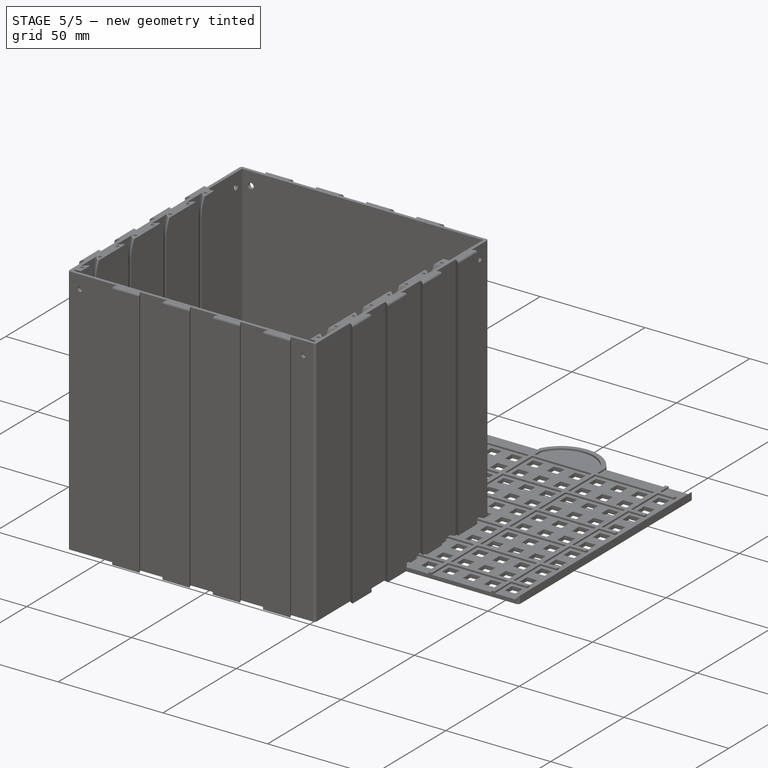
[diagram: stage 5 of 5 — iso view after this stage's code; geometry added in this stage tinted green]
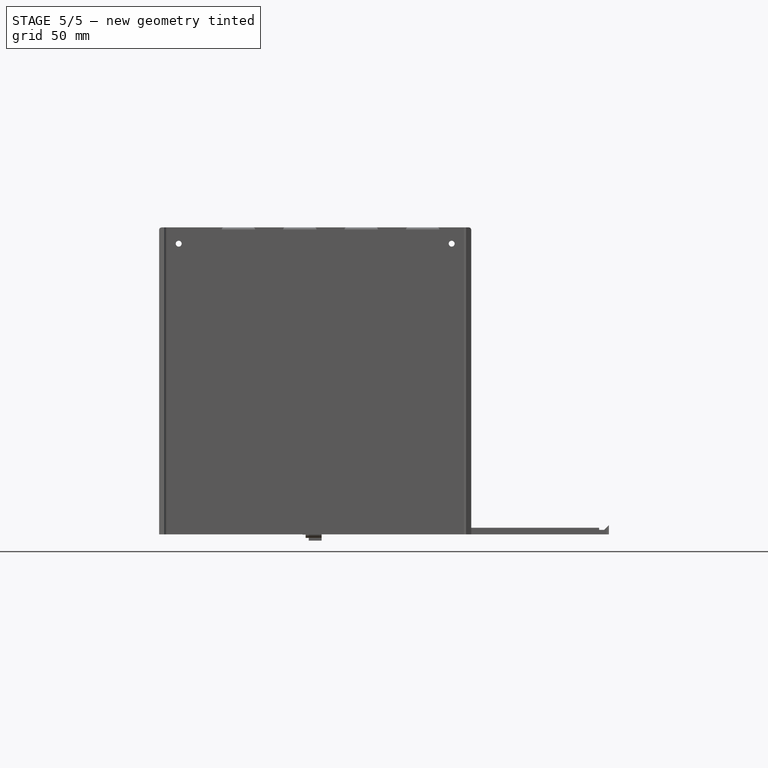
[diagram: stage 5 of 5 — front view after this stage's code; geometry added in this stage tinted green]
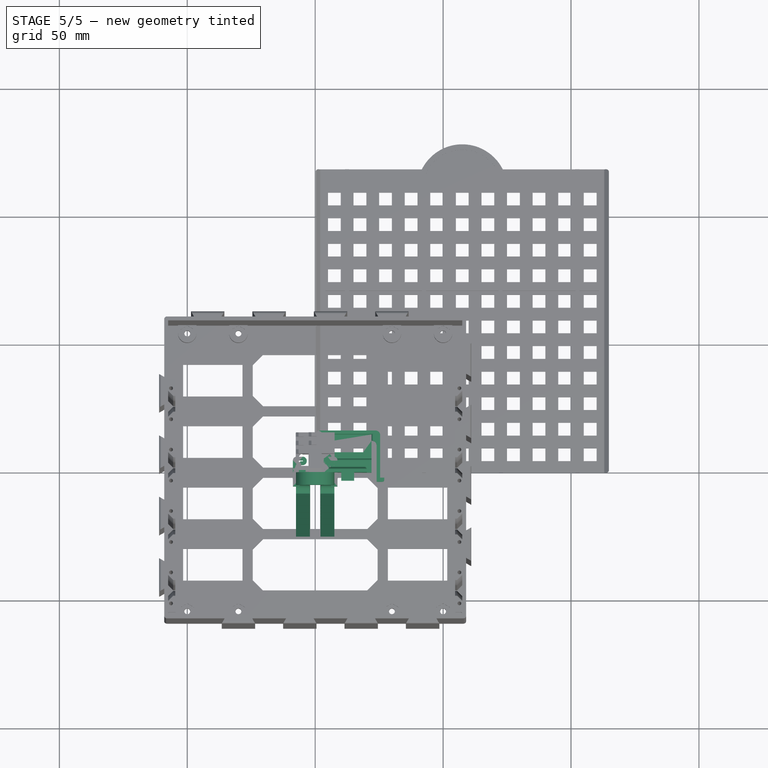
[diagram: stage 5 of 5 — top view after this stage's code; geometry added in this stage tinted green]
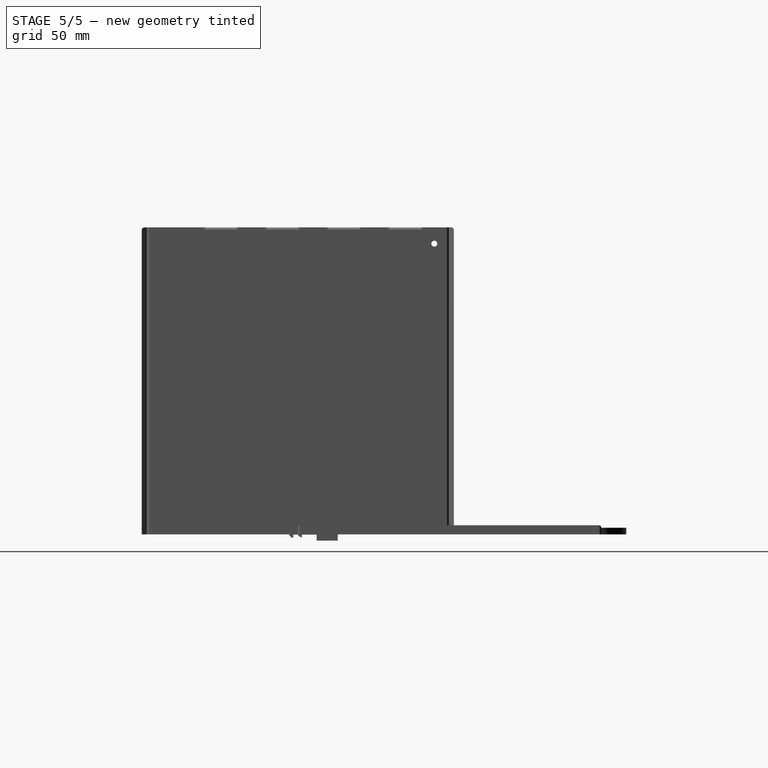
[diagram: stage 5 of 5 — right view after this stage's code; geometry added in this stage tinted green]
FEATURE [Sketcher::SketchObject] Sketch006  label="Sketch_front_usb_holder"
  FullyConstrained = true
  MapMode = 5
  Support = -> [XY_Plane001]
  expr: Constraints[20] = Spreadsheet.bh_grid - 0.2 mm
  expr: Constraints[22] = Spreadsheet.bh_grid * 5 + Spreadsheet.clip_deflection * 2
  expr: Constraints[48] = Spreadsheet.bh_base_z
  expr: Constraints[52] = Spreadsheet.clip_overhang
  expr: Constraints[53] = Spreadsheet.clip_overhang + Spreadsheet.clip_thickness
  expr: Constraints[55] = Spreadsheet.clip_height_from_board
  expr: Constraints[59] = Spreadsheet.usb_board_to_center_z + Spreadsheet.usb_metal_plug_height / 2 + 4 mm
  expr: Constraints[60] = Spreadsheet.usb_board_to_center_z + Spreadsheet.usb_metal_plug_height / 2
  expr: Constraints[65] = Spreadsheet.clip_overhang + Spreadsheet.clip_deflection + 0.2 mm
  expr: Constraints[71] = Spreadsheet.bh_base_z + Spreadsheet.clip_deflection
  sketch-geometry (24):
    g0: LineSegment StartX=0 StartY=0 StartZ=0 EndX=0 EndY=16.425 EndZ=0
    g1: LineSegment StartX=0 StartY=16.425 StartZ=0 EndX=25.4 EndY=16.425 EndZ=0
    g2: LineSegment StartX=25.4 StartY=16.425 StartZ=0 EndX=25.4 EndY=0 EndZ=0
    g3: LineSegment StartX=15.1 StartY=0 StartZ=0 EndX=15.1 EndY=-1.8 EndZ=0
    g4: LineSegment StartX=1.4 StartY=12.425 StartZ=0 EndX=3.4 EndY=12.425 EndZ=0
    g5: LineSegment StartX=3.4 StartY=12.425 StartZ=0 EndX=3.4 EndY=0 EndZ=0
    g6: LineSegment StartX=15.1 StartY=0 StartZ=0 EndX=22 EndY=0 EndZ=0
    g7: LineSegment StartX=22 StartY=0 StartZ=0 EndX=22 EndY=12.425 EndZ=0
    g8: LineSegment StartX=24 StartY=12.425 StartZ=0 EndX=22 EndY=12.425 EndZ=0
    g9: LineSegment StartX=15.1 StartY=-1.8 StartZ=0 EndX=10.3 EndY=-1.8 EndZ=0
    g10: LineSegment StartX=10.3 StartY=-1.8 StartZ=0 EndX=10.3 EndY=0 EndZ=0
    g11: LineSegment StartX=3.4 StartY=0 StartZ=0 EndX=10.3 EndY=0 EndZ=0
    g12: LineSegment StartX=1.4 StartY=0 StartZ=0 EndX=1.4 EndY=-3.6 EndZ=0
    g13: LineSegment StartX=1.4 StartY=-3.6 StartZ=0 EndX=-1.6 EndY=-3.6 EndZ=0
    g14: LineSegment StartX=-1.6 StartY=-3.6 StartZ=0 EndX=-1.6 EndY=-2 EndZ=0
    g15: LineSegment StartX=-1.6 StartY=-2 StartZ=0 EndX=0 EndY=-2 EndZ=0
    g16: LineSegment StartX=0 StartY=-2 StartZ=0 EndX=0 EndY=0 EndZ=0
    g17: LineSegment StartX=24 StartY=0 StartZ=0 EndX=24 EndY=-3.6 EndZ=0
    g18: LineSegment StartX=24 StartY=-3.6 StartZ=0 EndX=27 EndY=-3.6 EndZ=0
    g19: LineSegment StartX=27 StartY=-3.6 StartZ=0 EndX=27 EndY=-2 EndZ=0
    g20: LineSegment StartX=27 StartY=-2 StartZ=0 EndX=25.4 EndY=-2 EndZ=0
    g21: LineSegment StartX=25.4 StartY=-2 StartZ=0 EndX=25.4 EndY=0 EndZ=0
    g22: LineSegment StartX=24 StartY=0 StartZ=0 EndX=24 EndY=12.425 EndZ=0
    g23: LineSegment StartX=1.4 StartY=0 StartZ=0 EndX=1.4 EndY=12.425 EndZ=0
  constraints (73):
    c: PointOnObject(g12,g-1)
    c: PointOnObject(g0,g-2)
    c: Coincident(g1,g0)
    c: Horizontal(g1)
    c: Coincident(g2,g1)
    c: Vertical(g2)
    c: PointOnObject(g17,g-1)
    c: PointOnObject(g3,g-1)
    c: Vertical(g3)
    c: Horizontal(g4)
    c: PointOnObject(g5,g-1)
    c: Vertical(g5)
    c: Coincident(g6,g3)
    c: PointOnObject(g6,g-1)
    c: Coincident(g7,g6)
    c: Vertical(g7)
    c: Coincident(g8,g7)
    c: Horizontal(g8)
    c: Coincident(g9,g3)
    c: Horizontal(g9)
    c: DistanceX(g9,g9) = 4.8
    c: Coincident(g4,g5)
    c: DistanceX(g1,g1) = 25.4
    c: Coincident(g10,g9)
    c: PointOnObject(g10,g-1)
    c: Vertical(g10)
    c: Coincident(g11,g5)
    c: Coincident(g11,g10)
    c: Vertical(g12)
    c: Horizontal(g13)
    c: Coincident(g14,g13)
    c: Vertical(g14)
    c: Coincident(g15,g14)
    c: PointOnObject(g15,g-2)
    c: Horizontal(g15)
    c: Coincident(g16,g15)
    c: Vertical(g16)
    c: Vertical(g17)
    c: Coincident(g18,g17)
    c: Horizontal(g18)
    c: Coincident(g19,g18)
    c: Vertical(g19)
    c: Coincident(g20,g19)
    c: Horizontal(g20)
    c: Coincident(g21,g20)
    c: Vertical(g21)
    c: PointOnObject(g2,g-1)
    c: Coincident(g21,g2)
    c: DistanceY(g10,g10) = 1.8
    c: Vertical(g0)
    c: PointOnObject(g0,g-1)
    c: PointOnObject(g16,g-1)
    c: DistanceX(g15,g15) = 1.6
    c: DistanceX(g13,g13) = 3
    c: Coincident(g12,g13)
    c: DistanceY(g14,g14) = 1.6
    c: Equal(g14,g19)
    c: Equal(g13,g18)
    c: Equal(g20,g15)
    c: DistanceY(g0,g0) = 16.425
    c: DistanceY(g5,g5) = 12.425
    c: Equal(g7,g5)
    c: Coincident(g22,g17)
    c: Vertical(g22)
    c: Coincident(g8,g22)
    c: DistanceX(g4,g4) = 2
    c: Coincident(g23,g12)
    c: Vertical(g23)
    c: Coincident(g4,g23)
    c: Equal(g4,g8)
    c: Equal(g11,g6)
    c: DistanceY(g16,g16) = 2
    c: Equal(g21,g16)
FEATURE [PartDesign::Pad] Pad004  label="Pad_front_usb_holder"
  Direction = (0,0,1)
  Length = 5
  Length2 = 10
  Profile = -> Sketch006
  ReferenceAxis = -> Sketch006 [N_Axis]
  Type = 0
  expr: Length = Spreadsheet.bh_grid
FEATURE [Sketcher::SketchObject] Sketch007  label="Sketch_usb_front_base_support"
  FullyConstrained = true
  MapMode = 5
  Support = -> [XY_Plane001]
  expr: Constraints[10] = Spreadsheet.bh_grid * 3
  expr: Constraints[12] = Spreadsheet.bh_grid * 2.5 + Spreadsheet.clip_deflection
  expr: Constraints[9] = Spreadsheet.bh_base_z
  sketch-geometry (5):
    g0: LineSegment StartX=5.2 StartY=1.8 StartZ=0 EndX=20.2 EndY=1.8 EndZ=0
    g1: LineSegment StartX=20.2 StartY=1.8 StartZ=0 EndX=20.2 EndY=0 EndZ=0
    g2: LineSegment StartX=20.2 StartY=0 StartZ=0 EndX=5.2 EndY=0 EndZ=0
    g3: LineSegment StartX=5.2 StartY=0 StartZ=0 EndX=5.2 EndY=1.8 EndZ=0
    g4: GeomPoint X=12.7 Y=0 Z=0
  constraints (13):
    c: Coincident(g0,g1)
    c: Coincident(g1,g2)
    c: Coincident(g2,g3)
    c: Coincident(g3,g0)
    c: Horizontal(g0)
    c: Horizontal(g2)
    c: Vertical(g1)
    c: Vertical(g3)
    c: PointOnObject(g1,g-1)
    c: DistanceY(g1,g1) = 1.8
    c: DistanceX(g2,g2) = 15
    c: Symmetric(g2,g2,g4)
    c: DistanceX(g-1,g4) = 12.7
FEATURE [PartDesign::Pad] Pad005  label="Pad_usb_front_base_support"
  BaseFeature = -> Pad004
  Direction = (0,0,1)
  Length = 15
  Length2 = 10
  Profile = -> Sketch007
  ReferenceAxis = -> Sketch007 [N_Axis]
  Type = 0
  expr: Length = Spreadsheet.bh_grid * 3
FEATURE [Sketcher::SketchObject] Sketch008  label="Sketch_usb_metal_plug"
  FullyConstrained = true
  MapMode = 5
  Support = -> [XY_Plane001]
  expr: Constraints[10] = Spreadsheet.usb_board_to_center_z
  expr: Constraints[11] = Spreadsheet.usb_metal_plug_width
  expr: Constraints[12] = Spreadsheet.usb_metal_plug_height
  expr: Constraints[9] = Spreadsheet.bh_grid * 2.5 + Spreadsheet.clip_deflection
  sketch-geometry (5):
    g0: LineSegment StartX=6.65 StartY=7.975 StartZ=0 EndX=6.65 EndY=12.425 EndZ=0
    g1: LineSegment StartX=6.65 StartY=12.425 StartZ=0 EndX=18.75 EndY=12.425 EndZ=0
    g2: LineSegment StartX=18.75 StartY=12.425 StartZ=0 EndX=18.75 EndY=7.975 EndZ=0
    g3: LineSegment StartX=18.75 StartY=7.975 StartZ=0 EndX=6.65 EndY=7.975 EndZ=0
    g4: GeomPoint X=12.7 Y=10.2 Z=0
  constraints (13):
    c: Coincident(g0,g1)
    c: Coincident(g1,g2)
    c: Coincident(g2,g3)
    c: Coincident(g3,g0)
    c: Horizontal(g1)
    c: Horizontal(g3)
    c: Vertical(g0)
    c: Vertical(g2)
    c: Symmetric(g1,g0,g4)
    c: DistanceX(g-1,g4) = 12.7
    c: DistanceY(g-1,g4) = 10.2
    c: DistanceX(g3,g3) = 12.1
    c: DistanceY(g2,g2) = 4.45
FEATURE [PartDesign::Pocket] Pocket001  label="Pocket_usb_metal_plug"
  BaseFeature = -> Pad005
  Direction = (0,0,-1)
  Length = 5
  Length2 = 5
  Profile = -> Sketch008
  ReferenceAxis = -> Sketch008 [N_Axis]
  Reversed = true
  Type = 1
FEATURE [Sketcher::SketchObject] Sketch009  label="Sketch_usb_case_allowence"
  FullyConstrained = true
  MapMode = 5
  Placement = pos=(0,0,5) rot=(0,0,1;0rad)
  Support = -> [Pocket001]
  expr: Constraints[10] = Spreadsheet.usb_board_to_center_z
  expr: Constraints[11] = Spreadsheet.usb_metal_plug_width + 6.55 mm
  expr: Constraints[12] = Spreadsheet.usb_metal_plug_height + 5 mm
  expr: Constraints[9] = Spreadsheet.bh_grid * 2.5 + Spreadsheet.clip_deflection
  sketch-geometry (5):
    g0: LineSegment StartX=3.375 StartY=5.475 StartZ=0 EndX=3.375 EndY=14.925 EndZ=0
    g1: LineSegment StartX=3.375 StartY=14.925 StartZ=0 EndX=22.025 EndY=14.925 EndZ=0
    g2: LineSegment StartX=22.025 StartY=14.925 StartZ=0 EndX=22.025 EndY=5.475 EndZ=0
    g3: LineSegment StartX=22.025 StartY=5.475 StartZ=0 EndX=3.375 EndY=5.475 EndZ=0
    g4: GeomPoint X=12.7 Y=10.2 Z=0
  constraints (13):
    c: Coincident(g0,g1)
    c: Coincident(g1,g2)
    c: Coincident(g2,g3)
    c: Coincident(g3,g0)
    c: Horizontal(g1)
    c: Horizontal(g3)
    c: Vertical(g0)
    c: Vertical(g2)
    c: Symmetric(g1,g0,g4)
    c: DistanceX(g-1,g4) = 12.7
    c: DistanceY(g-1,g4) = 10.2
    c: DistanceX(g3,g3) = 18.65
    c: DistanceY(g0,g0) = 9.45
FEATURE [PartDesign::Pocket] Pocket002  label="Pocket_usb_case_allowence"
  BaseFeature = -> Pocket001
  Direction = (0,0,-1)
  Length = 2.3
  Length2 = 5
  Profile = -> Sketch009
  ReferenceAxis = -> Sketch009 [N_Axis]
  Type = 0
  expr: Length = Spreadsheet.bh_grid - Spreadsheet.usb_metal_gap
FEATURE [PartDesign::AdditiveWedge] Wedge001  label="Wedge_umh_back_clip"
  AttacherType = Attacher::AttachEngine3D
  AttachmentOffset = pos=(10.2,-3.4,15) rot=(-1,0,0;1.5708rad)
  BaseFeature = -> Pocket002
  MapMode = 5
  Placement = pos=(10.2,-3.4,15) rot=(-1,0,0;1.5708rad)
  Support = -> [XY_Plane001]
  X2max = 5
  X2min = 0
  Xmax = 5
  Xmin = 0
  Ymax = 5
  Ymin = 0
  Z2max = 3.4
  Z2min = 3.4
  Zmax = 3.4
  Zmin = 0
  expr: .AttachmentOffset.Base.x = Spreadsheet.bh_grid * 2 + Spreadsheet.clip_deflection
  expr: .AttachmentOffset.Base.y = -(Spreadsheet.bh_base_z + Spreadsheet.clip_height_from_board)
  expr: .AttachmentOffset.Base.z = Spreadsheet.bh_grid * 3
  expr: Xmax = Spreadsheet.bh_grid
  expr: Z2max = Spreadsheet.bh_base_z + Spreadsheet.clip_height_from_board
  expr: Z2min = Spreadsheet.bh_base_z + Spreadsheet.clip_height_from_board
  expr: Zmax = Spreadsheet.bh_base_z + Spreadsheet.clip_height_from_board
FEATURE [PartDesign::AdditiveBox] Box  label="Box_umh_back_clip"
  AttacherType = Attacher::AttachEngine3D
  AttachmentOffset = pos=(10.2,-3.4,15) rot=(0,0,1;0rad)
  BaseFeature = -> Wedge001
  Height = 1
  Length = 5
  MapMode = 5
  Placement = pos=(10.2,-3.4,15) rot=(0,0,1;0rad)
  Support = -> [XY_Plane001]
  Width = 1.6
  expr: .AttachmentOffset.Base.x = Spreadsheet.bh_grid * 2 + Spreadsheet.clip_deflection
  expr: .AttachmentOffset.Base.y = -Spreadsheet.bh_base_z - Spreadsheet.clip_overhang
  expr: .AttachmentOffset.Base.z = Spreadsheet.bh_grid * 3
  expr: Length = Spreadsheet.bh_grid
  expr: Width = Spreadsheet.clip_height_from_board
FEATURE [PartDesign::Fillet] Fillet002  label="Fillet_umh_clip"
  Base = -> Box [Edge114,Edge8,Edge83,Edge49,Edge51,Edge50,Edge100,Edge128,Edge109,Edge126,Edge118,Edge115,Edge113,Edge102,Edge134]
  BaseFeature = -> Box
  Placement = pos=(10.2,-3.4,15) rot=(0,0,1;0rad)
  Radius = 0.8
  SupportTransform = false
  UseAllEdges = false
FEATURE [Sketcher::SketchObject] Sketch010  label="Sketch_srh_base"
  FullyConstrained = true
  MapMode = 5
  Support = -> [XY_Plane002]
  expr: Constraints[11] = Spreadsheet.srh_width
  expr: Constraints[9] = Spreadsheet.srh_length
  sketch-geometry (5):
    g0: LineSegment StartX=-7.5 StartY=0 StartZ=0 EndX=-7.5 EndY=-25 EndZ=0
    g1: LineSegment StartX=-7.5 StartY=-25 StartZ=0 EndX=7.5 EndY=-25 EndZ=0
    g2: LineSegment StartX=7.5 StartY=-25 StartZ=0 EndX=7.5 EndY=0 EndZ=0
    g3: LineSegment StartX=7.5 StartY=0 StartZ=0 EndX=-7.5 EndY=0 EndZ=0
    g4: GeomPoint X=0 Y=-12.5 Z=0
  constraints (13):
    c: Coincident(g0,g1)
    c: Coincident(g1,g2)
    c: Coincident(g2,g3)
    c: Coincident(g3,g0)
    c: Horizontal(g1)
    c: Horizontal(g3)
    c: Vertical(g0)
    c: Vertical(g2)
    c: Symmetric(g1,g0,g4)
    c: DistanceY(g2,g2) = 25
    c: PointOnObject(g4,g-2)
    c: DistanceX(g3,g3) = 15
    c: PointOnObject(g0,g-1)
FEATURE [Sketcher::SketchObject] Sketch011  label="Sketch_cone_base"
  FullyConstrained = true
  MapMode = 5
  Placement = pos=(0,0,0) rot=(1,0,0;1.5708rad)
  Support = -> [XZ_Plane002]
  expr: Constraints[11] = Spreadsheet.usb_board_to_center_z
  expr: Constraints[8] = Spreadsheet.srh_width
  expr: Constraints[9] = Spreadsheet.usb_board_to_center_z
  sketch-geometry (5):
    g0: LineSegment StartX=-7.5 StartY=0 StartZ=0 EndX=7.5 EndY=0 EndZ=0
    g1: LineSegment StartX=7.5 StartY=0 StartZ=0 EndX=7.5 EndY=10.2 EndZ=0
    g2: LineSegment StartX=-7.5 StartY=10.2 StartZ=0 EndX=-7.5 EndY=0 EndZ=0
    g3: GeomPoint X=0 Y=0 Z=0
    g4: ArcOfCircle CenterX=0 CenterY=10.2 CenterZ=0 NormalX=0 NormalY=0 NormalZ=1 AngleXU=0 Radius=7.5 StartAngle=0 EndAngle=3.14159
  constraints (15):
    c: Coincident(g0,g1)
    c: Coincident(g2,g0)
    c: Horizontal(g0)
    c: Vertical(g1)
    c: Vertical(g2)
    c: PointOnObject(g0,g-1)
    c: Symmetric(g0,g0,g3)
    c: PointOnObject(g3,g-2)
    c: DistanceX(g0,g0) = 15
    c: DistanceY(g1,g1) = 10.2
    c: PointOnObject(g4,g-2)
    c: DistanceY(g-1,g4) = 10.2
    c: Coincident(g4,g2)
    c: Equal(g2,g1)
    c: Horizontal(g4,g2)
FEATURE [PartDesign::Pad] Pad006  label="Pad_cone_base"
  Direction = (0,-1,-2e-16)
  Length = 5
  Length2 = 10
  Placement = pos=(0,0,0) rot=(1,0,0;1.5708rad)
  Profile = -> Sketch011
  ReferenceAxis = -> Sketch011 [N_Axis]
  Type = 0
FEATURE [PartDesign::Pad] Pad007  label="Pad_srh_base"
  BaseFeature = -> Pad006
  Direction = (0,0,1)
  Length = 1.8
  Length2 = 10
  Placement = pos=(0,0,0) rot=(1,0,0;1.5708rad)
  Profile = -> Sketch010
  ReferenceAxis = -> Sketch010 [N_Axis]
  Type = 0
  expr: Length = Spreadsheet.bh_base_z
FEATURE [PartDesign::Hole] Hole  label="Hole_srh_base"
  BaseFeature = -> Pad007
  CustomThreadClearance = 0
  Depth = 68.8962
  DepthType = 1
  Diameter = 5
  DrillForDepth = false
  DrillPoint = 1
  DrillPointAngle = 118
  HoleCutCountersinkAngle = 83
  HoleCutCustomValues = false
  HoleCutDepth = 8.8
  HoleCutDiameter = 13.75
  HoleCutType = 2
  ModelThread = false
  Placement = pos=(0,0,0) rot=(1,0,0;1.5708rad)
  Profile = -> Pad007 [Face10]
  Tapered = false
  TaperedAngle = 90
  ThreadClass = 0
  ThreadDepth = 68.8962
  ThreadDepthType = 0
  ThreadDirection = 0
  ThreadFit = 0
  ThreadSize = 0
  ThreadType = 0
  Threaded = false
  UseCustomThreadClearance = false
  expr: HoleCutDiameter = Spreadsheet.srh_width - 1.25 mm
FEATURE [PartDesign::AdditiveWedge] Wedge002  label="Wedge_srh_ridge"
  AttacherType = Attacher::AttachEngine3D
  AttachmentOffset = pos=(-7.5,-23.8,1.8) rot=(1,0,0;1.5708rad)
  BaseFeature = -> Hole
  MapMode = 5
  Placement = pos=(-7.5,-23.8,1.8) rot=(1,0,0;1.5708rad)
  Support = -> [XY_Plane002]
  X2max = 15
  X2min = 0
  Xmax = 15
  Xmin = 0
  Ymax = 1.2
  Ymin = 0
  Z2max = 1.2
  Z2min = 1.2
  Zmax = 1.2
  Zmin = 0
  expr: .AttachmentOffset.Base.x = -Spreadsheet.srh_width / 2
  expr: .AttachmentOffset.Base.y = -Spreadsheet.srh_length + Spreadsheet.srh_ridge_grid
  expr: .AttachmentOffset.Base.z = Spreadsheet.bh_base_z
  expr: X2max = Spreadsheet.srh_width
  expr: Xmax = Spreadsheet.srh_width
  expr: Ymax = Spreadsheet.srh_ridge_grid
  expr: Z2max = Spreadsheet.srh_ridge_grid
  expr: Z2min = Spreadsheet.srh_ridge_grid
  expr: Zmax = Spreadsheet.srh_ridge_grid
FEATURE [PartDesign::LinearPattern] LinearPattern004  label="LinearPattern_srh_ridge"
  BaseFeature = -> Wedge002
  Direction = -> Y_Axis002
  Length = 15.6
  Occurrences = 14
  Originals = -> [Wedge002]
  Placement = pos=(-7.5,-23.8,1.8) rot=(1,0,0;1.5708rad)
  expr: Length = trunc(Spreadsheet.srh_length / Spreadsheet.srh_ridge_grid * 0.65) * Spreadsheet.srh_ridge_grid
  expr: Occurrences = trunc(Spreadsheet.srh_length / Spreadsheet.srh_ridge_grid * 0.65) + 1
FEATURE [PartDesign::Fillet] Fillet004  label="Fillet_srh_support"
  Base = -> LinearPattern004 [Edge56]
  BaseFeature = -> LinearPattern004
  Placement = pos=(-7.5,-23.8,1.8) rot=(1,0,0;1.5708rad)
  Radius = 3
  SupportTransform = false
  UseAllEdges = false
FEATURE [PartDesign::SubtractiveWedge] Wedge003  label="Wedge_srh_cable_cutout"
  AttacherType = Attacher::AttachEngine3D
  AttachmentOffset = pos=(0,0,0) rot=(1,0,0;1.5708rad)
  BaseFeature = -> Fillet004
  MapMode = 5
  Placement = pos=(0,0,0) rot=(1,0,0;1.5708rad)
  Support = -> [XY_Plane002]
  X2max = 2.5
  X2min = -2.5
  Xmax = 2
  Xmin = -2
  Ymax = 10.2
  Ymin = 0
  Z2max = 25
  Z2min = 0
  Zmax = 25
  Zmin = 0
  expr: X2max = Spreadsheet.srh_center_diameter / 2
  expr: X2min = -Spreadsheet.srh_center_diameter / 2
  expr: Xmax = Spreadsheet.srh_bottom_cutout / 2
  expr: Xmin = -Spreadsheet.srh_bottom_cutout / 2
  expr: Ymax = Spreadsheet.usb_board_to_center_z
  expr: Z2max = Spreadsheet.srh_length
  expr: Zmax = Spreadsheet.srh_length
FEATURE [PartDesign::Body] Body002  label="srh"
  Group = -> [Sketch010,Sketch011,Pad006,Pad007,Hole,Wedge002,LinearPattern004,Fillet004,Wedge003]
  Origin = -> Origin002
  Placement = pos=(-40,-46.2,35.45) rot=(-1,0,0;1.5708rad)
  Tip = -> Wedge003
  expr: .Placement.Base.x = Spreadsheet.bh_edge_to_usb_center_x - Spreadsheet.mc_inner_base_x / 2
  expr: .Placement.Base.y = -Spreadsheet.mc_top_of_bottom_board_y
  expr: .Placement.Base.z = Spreadsheet.mc_back_thickness_z + Spreadsheet.bh_grid * 5.5 + Spreadsheet.bh_edge_to_center_of_first_grid_cutout_y - 0.45 mm
FEATURE [Sketcher::SketchObject] Sketch012  label="Sketch_src_base"
  FullyConstrained = true
  MapMode = 5
  Support = -> [XY_Plane003]
  expr: Constraints[116] = Spreadsheet.src_clip_thickness
  expr: Constraints[15] = Spreadsheet.bh_grid * 3 - Spreadsheet.clip_deflection * 2
  expr: Constraints[16] = Spreadsheet.src_clip_thickness + Spreadsheet.srh_ridge_grid
  expr: Constraints[17] = Spreadsheet.clip_height_from_board
  expr: Constraints[18] = Spreadsheet.clip_overhang
  expr: Constraints[21] = Spreadsheet.src_clip_thickness + Spreadsheet.clip_overhang
  expr: Constraints[32] = Spreadsheet.bh_base_z * 2 + Spreadsheet.clip_overhang + 0.2 mm
  expr: Constraints[43] = Spreadsheet.src_bend_diameter
  expr: Constraints[51] = Spreadsheet.src_clip_thickness
  expr: Constraints[53] = Spreadsheet.src_clip_thickness
  expr: Constraints[57] = Spreadsheet.src_bend_diameter
  expr: Constraints[60] = Spreadsheet.clip_deflection * 2
  sketch-geometry (37):
    g0: LineSegment StartX=-6.9 StartY=0 StartZ=0 EndX=6.9 EndY=0 EndZ=0
    g1: LineSegment StartX=-7.3 StartY=-3.8 StartZ=0 EndX=-5.7 EndY=-3.8 EndZ=0
    g2: LineSegment StartX=-5.7 StartY=-3.8 StartZ=0 EndX=-5.7 EndY=-5.4 EndZ=0
    g3: LineSegment StartX=-5.7 StartY=-5.4 StartZ=0 EndX=-8.7 EndY=-5.4 EndZ=0
    g4: LineSegment StartX=-5.3 StartY=2.6 StartZ=0 EndX=5.3 EndY=2.6 EndZ=0
    g5: LineSegment StartX=8.7 StartY=-5.4 StartZ=0 EndX=5.7 EndY=-5.4 EndZ=0
    g6: LineSegment StartX=5.7 StartY=-5.4 StartZ=0 EndX=5.7 EndY=-3.8 EndZ=0
    g7: LineSegment StartX=5.7 StartY=-3.8 StartZ=0 EndX=7.3 EndY=-3.8 EndZ=0
    g8: LineSegment StartX=7.3 StartY=-3.8 StartZ=0 EndX=7.3 EndY=3.4 EndZ=0
    g9: LineSegment StartX=-8.7 StartY=-5.4 StartZ=0 EndX=-8.7 EndY=0 EndZ=0
    g10: LineSegment StartX=-8.7 StartY=0 StartZ=0 EndX=-8.7 EndY=4.8 EndZ=0
    g11: LineSegment StartX=8.7 StartY=-5.4 StartZ=0 EndX=8.7 EndY=0 EndZ=0
    g12: LineSegment StartX=8.7 StartY=0 StartZ=0 EndX=8.7 EndY=4.8 EndZ=0
    g13: GeomPoint X=0 Y=2.6 Z=0
    g14: ArcOfCircle CenterX=-7.3 CenterY=4.8 CenterZ=0 NormalX=0 NormalY=0 NormalZ=1 AngleXU=0 Radius=1.4 StartAngle=1.5708 EndAngle=3.14159
    g15: LineSegment StartX=-5.9 StartY=4.8 StartZ=0 EndX=-4.9 EndY=4.8 EndZ=0
    g16: ArcOfCircle CenterX=-4.9 CenterY=4.6 CenterZ=0 NormalX=0 NormalY=0 NormalZ=1 AngleXU=0 Radius=0.2 StartAngle=4.71239 EndAngle=7.85398
    g17: LineSegment StartX=-6.9 StartY=0 StartZ=0 EndX=-6.9 EndY=2.8 EndZ=0
    g18: LineSegment StartX=-7.3 StartY=6.2 StartZ=0 EndX=-4.9 EndY=6.2 EndZ=0
    g19: ArcOfCircle CenterX=-4.9 CenterY=4.6 CenterZ=0 NormalX=0 NormalY=0 NormalZ=1 AngleXU=0 Radius=1.6 StartAngle=4.71239 EndAngle=7.85398
    g20: ArcOfCircle CenterX=-5.9 CenterY=3.4 CenterZ=0 NormalX=0 NormalY=0 NormalZ=1 AngleXU=0 Radius=1.4 StartAngle=1.5708 EndAngle=3.14159
    g21: LineSegment StartX=-7.3 StartY=-3.8 StartZ=0 EndX=-7.3 EndY=3.4 EndZ=0
    g22: ArcOfCircle CenterX=-5.3 CenterY=2.8 CenterZ=0 NormalX=0 NormalY=0 NormalZ=1 AngleXU=0 Radius=0.2 StartAngle=1.5708 EndAngle=4.71239
    g23: ArcOfCircle CenterX=-5.3 CenterY=2.8 CenterZ=0 NormalX=0 NormalY=0 NormalZ=1 AngleXU=0 Radius=1.6 StartAngle=1.5708 EndAngle=3.14159
    g24: ArcOfCircle CenterX=5.3 CenterY=2.8 CenterZ=0 NormalX=0 NormalY=0 NormalZ=1 AngleXU=0 Radius=0.2 StartAngle=4.71239 EndAngle=7.85398
    g25: ArcOfCircle CenterX=4.9 CenterY=4.6 CenterZ=0 NormalX=0 NormalY=0 NormalZ=1 AngleXU=0 Radius=1.6 StartAngle=1.5708 EndAngle=4.71239
    g26: ArcOfCircle CenterX=4.9 CenterY=4.6 CenterZ=0 NormalX=0 NormalY=0 NormalZ=1 AngleXU=0 Radius=0.2 StartAngle=1.5708 EndAngle=4.71239
    g27: ArcOfCircle CenterX=5.3 CenterY=2.8 CenterZ=0 NormalX=0 NormalY=0 NormalZ=1 AngleXU=0 Radius=1.6 StartAngle=0 EndAngle=1.5708
    g28: LineSegment StartX=6.9 StartY=0 StartZ=0 EndX=6.9 EndY=2.8 EndZ=0
    g29: ArcOfCircle CenterX=5.9 CenterY=3.4 CenterZ=0 NormalX=0 NormalY=0 NormalZ=1 AngleXU=0 Radius=1.4 StartAngle=0 EndAngle=1.5708
    g30: ArcOfCircle CenterX=7.3 CenterY=4.8 CenterZ=0 NormalX=0 NormalY=0 NormalZ=1 AngleXU=0 Radius=1.4 StartAngle=0 EndAngle=1.5708
    g31: LineSegment StartX=4.9 StartY=6.2 StartZ=0 EndX=7.3 EndY=6.2 EndZ=0
    g32: LineSegment StartX=4.9 StartY=4.8 StartZ=0 EndX=5.9 EndY=4.8 EndZ=0
    g33: LineSegment StartX=-5.3 StartY=4.4 StartZ=0 EndX=-4.9 EndY=4.4 EndZ=0
    g34: LineSegment StartX=-5.3 StartY=3 StartZ=0 EndX=-4.9 EndY=3 EndZ=0
    g35: LineSegment StartX=5.3 StartY=4.4 StartZ=0 EndX=4.9 EndY=4.4 EndZ=0
    g36: LineSegment StartX=5.3 StartY=3 StartZ=0 EndX=4.9 EndY=3 EndZ=0
  constraints (118):
    c: PointOnObject(g0,g-1)
    c: Horizontal(g0)
    c: Horizontal(g1)
    c: Coincident(g2,g1)
    c: Vertical(g2)
    c: Coincident(g3,g2)
    c: Horizontal(g3)
    c: Horizontal(g4)
    c: Horizontal(g5)
    c: Coincident(g6,g5)
    c: Vertical(g6)
    c: Coincident(g7,g6)
    c: Horizontal(g7)
    c: Coincident(g8,g7)
    c: Vertical(g8)
    c: DistanceX(g1,g7) = 14.6
    c: DistanceY(g-1,g4) = 2.6
    c: DistanceY(g2,g2) = 1.6
    c: DistanceX(g1,g1) = 1.6
    c: Equal(g2,g6)
    c: Equal(g7,g1)
    c: DistanceX(g3,g3) = 3
    c: Coincident(g9,g3)
    c: PointOnObject(g9,g-1)
    c: Vertical(g9)
    c: Coincident(g10,g9)
    c: Vertical(g10)
    c: Coincident(g11,g5)
    c: PointOnObject(g11,g-1)
    c: Vertical(g11)
    c: Coincident(g12,g11)
    c: Vertical(g12)
    c: DistanceY(g9,g9) = 5.4
    c: Equal(g9,g11)
    c: Symmetric(g4,g4,g13)
    c: PointOnObject(g13,g-2)
    c: Equal(g5,g3)
    c: Coincident(g14,g10)
    c: Horizontal(g10,g14)
    c: Vertical(g14,g14)
    c: Horizontal(g15)
    c: Coincident(g16,g15)
    c: Vertical(g16,g15)
    c: DistanceY(g16,g15) = 0.4
    c: Coincident(g17,g0)
    c: Vertical(g17)
    c: Coincident(g18,g14)
    c: Horizontal(g18)
    c: Coincident(g19,g16)
    c: Coincident(g18,g19)
    c: Vertical(g18,g16)
    c: DistanceY(g15,g14) = 1.4
    c: Vertical(g20,g14)
    c: DistanceX(g20,g20) = 1.4
    c: Coincident(g21,g1)
    c: Coincident(g21,g20)
    c: Coincident(g22,g4)
    c: DistanceY(g4,g19) = 0.4
    c: Coincident(g23,g17)
    c: Horizontal(g22,g17)
    c: DistanceX(g1,g0) = 0.4
    c: Coincident(g24,g4)
    c: Coincident(g26,g25)
    c: Coincident(g27,g24)
    c: Coincident(g28,g0)
    c: Vertical(g28)
    c: Coincident(g28,g27)
    c: Equal(g25,g19)
    c: Equal(g26,g16)
    c: Equal(g27,g23)
    c: Horizontal(g27,g24)
    c: Coincident(g20,g15)
    c: Coincident(g29,g8)
    c: Coincident(g30,g12)
    c: Coincident(g31,g25)
    c: Horizontal(g31)
    c: Coincident(g30,g31)
    c: Coincident(g32,g26)
    c: Horizontal(g32)
    c: Coincident(g29,g32)
    c: Horizontal(g12,g30)
    c: Equal(g14,g30)
    c: Equal(g29,g20)
    c: Horizontal(g8,g29)
    c: Equal(g32,g15)
    c: Vertical(g29,g29)
    c: Coincident(g33,g23)
    c: Horizontal(g33)
    c: Coincident(g34,g22)
    c: Horizontal(g34)
    c: Coincident(g16,g33)
    c: Vertical(g22,g22)
    c: Vertical(g22,g23)
    c: Vertical(g23,g23)
    c: Horizontal(g23,g17)
    c: Vertical(g4,g22)
    c: Vertical(g16,g16)
    c: Vertical(g16,g19)
    c: Vertical(g20,g15)
    c: DistanceX(g34,g34) = 0.4
    c: Coincident(g19,g34)
    c: Coincident(g35,g27)
    c: Horizontal(g35)
    c: Coincident(g36,g24)
    c: Horizontal(g36)
    c: Coincident(g35,g26)
    c: Coincident(g36,g25)
    c: Equal(g10,g12)
    c: Equal(g35,g33)
    c: Vertical(g26,g25)
    c: Vertical(g25,g26)
    c: Vertical(g25,g25)
    c: Vertical(g25,g25)
    c: Vertical(g27,g24)
    c: Vertical(g24,g24)
    c: Vertical(g24,g4)
    c: DistanceX(g10,g20) = 1.4
    c: Horizontal(g20,g20)
FEATURE [PartDesign::Pad] Pad008  label="Pad_src_base"
  Direction = (0,0,1)
  Length = 5
  Length2 = 10
  Profile = -> Sketch012
  ReferenceAxis = -> Sketch012 [N_Axis]
  Type = 0
  expr: Length = Spreadsheet.bh_grid
FEATURE [PartDesign::SubtractiveWedge] Wedge004  label="Wedge_src_ridge_cutout"
  AttacherType = Attacher::AttachEngine3D
  BaseFeature = -> Pad008
  MapMode = 5
  Support = -> [XY_Plane003]
  X2max = 7.3
  X2min = -7.3
  Xmax = 7.3
  Xmin = -7.3
  Ymax = 1.2
  Ymin = 0
  Z2max = 0
  Z2min = 0
  Zmax = 1.2
  Zmin = 0
  expr: X2max = Spreadsheet.bh_grid * 3 / 2 - Spreadsheet.clip_deflection
  expr: X2min = -Spreadsheet.bh_grid * 3 / 2 + Spreadsheet.clip_deflection
  expr: Xmax = Spreadsheet.bh_grid * 3 / 2 - Spreadsheet.clip_deflection
  expr: Xmin = -Spreadsheet.bh_grid * 3 / 2 + Spreadsheet.clip_deflection
  expr: Ymax = Spreadsheet.srh_ridge_grid
  expr: Zmax = Spreadsheet.srh_ridge_grid
FEATURE [PartDesign::LinearPattern] LinearPattern005  label="LinearPattern_src_ridge_cutout"
  BaseFeature = -> Wedge004
  Direction = -> Z_Axis003
  Length = 4.8
  Occurrences = 5
  Originals = -> [Wedge004]
  expr: Length = trunc(Spreadsheet.bh_grid / Spreadsheet.srh_ridge_grid) * Spreadsheet.srh_ridge_grid
FEATURE [PartDesign::Fillet] Fillet005  label="Fillet_src_clip_ends"
  Base = -> LinearPattern005 [Edge146,Edge129]
  BaseFeature = -> LinearPattern005
  Radius = 1
  SupportTransform = false
  UseAllEdges = false
FEATURE [PartDesign::Fillet] Fillet006  label="Fillet_umh_strain_relief"
  Base = -> Fillet002 [Edge58,Edge93,Edge73,Edge70]
  BaseFeature = -> Fillet002
  Placement = pos=(10.2,-3.4,15) rot=(0,0,1;0rad)
  Radius = 1.8
  SupportTransform = false
  UseAllEdges = false
FEATURE [PartDesign::FeatureBase] Clone
  BaseFeature = -> Fusion001
FEATURE [Sketcher::SketchObject] Sketch040  label="Sketch_bc_s_pcb"
  FullyConstrained = true
  MapMode = 5
  Support = -> [XY_Plane012]
  expr: Constraints[10] = Spreadsheet.bc_pcb_thickness
  expr: Constraints[11] = Spreadsheet.bc_s_total_x
  expr: Constraints[12] = Spreadsheet.bc_top_of_bh_to_bottom_of_pcb
  sketch-geometry (5):
    g0: LineSegment StartX=2.6 StartY=10.65 StartZ=0 EndX=2.6 EndY=9 EndZ=0
    g1: LineSegment StartX=2.6 StartY=9 StartZ=0 EndX=-2.6 EndY=9 EndZ=0
    g2: LineSegment StartX=-2.6 StartY=9 StartZ=0 EndX=-2.6 EndY=10.65 EndZ=0
    g3: LineSegment StartX=-2.6 StartY=10.65 StartZ=0 EndX=2.6 EndY=10.65 EndZ=0
    g4: GeomPoint X=0 Y=9.825 Z=0
  constraints (13):
    c: Coincident(g0,g1)
    c: Coincident(g1,g2)
    c: Coincident(g2,g3)
    c: Coincident(g3,g0)
    c: Horizontal(g1)
    c: Horizontal(g3)
    c: Vertical(g0)
    c: Vertical(g2)
    c: Symmetric(g1,g0,g4)
    c: PointOnObject(g4,g-2)
    c: DistanceY(g0,g0) = 1.65
    c: DistanceX(g3,g3) = 5.2
    c: DistanceY(g-1,g0) = 9
FEATURE [Sketcher::SketchObject] Sketch041  label="Sketch_bc_s_corner"
  FullyConstrained = true
  MapMode = 5
  Support = -> [XY_Plane012]
  expr: Constraints[10] = Spreadsheet.bc_s_total_x / 2
  expr: Constraints[11] = Spreadsheet.bc_top_of_bh_to_bottom_of_pcb
  expr: Constraints[8] = Spreadsheet.bc_grid - Spreadsheet.bc_tol_inner_slots
  expr: Constraints[9] = Spreadsheet.bc_pcb_thickness
  sketch-geometry (4):
    g0: LineSegment StartX=0.5 StartY=10.65 StartZ=0 EndX=2.6 EndY=10.65 EndZ=0
    g1: LineSegment StartX=2.6 StartY=10.65 StartZ=0 EndX=2.6 EndY=9 EndZ=0
    g2: LineSegment StartX=2.6 StartY=9 StartZ=0 EndX=0.5 EndY=9 EndZ=0
    g3: LineSegment StartX=0.5 StartY=9 StartZ=0 EndX=0.5 EndY=10.65 EndZ=0
  constraints (12):
    c: Coincident(g0,g1)
    c: Coincident(g1,g2)
    c: Coincident(g2,g3)
    c: Coincident(g3,g0)
    c: Horizontal(g0)
    c: Horizontal(g2)
    c: Vertical(g1)
    c: Vertical(g3)
    c: DistanceX(g0,g0) = 2.1
    c: DistanceY(g1,g1) = 1.65
    c: DistanceX(g-1,g0) = 2.6
    c: DistanceY(g-1,g1) = 9
FEATURE [Sketcher::SketchObject] Sketch042  label="Sketch_bc_s_top"
  FullyConstrained = true
  MapMode = 5
  Support = -> [XY_Plane012]
  expr: Constraints[12] = Spreadsheet.bc_top_of_bh_to_bottom_of_pcb + Spreadsheet.bc_pcb_thickness
  expr: Constraints[8] = Spreadsheet.bc_s_total_x
  expr: Constraints[9] = Spreadsheet.bc_holder_thickness
  sketch-geometry (5):
    g0: LineSegment StartX=-2.6 StartY=12.3 StartZ=0 EndX=2.6 EndY=12.3 EndZ=0
    g1: LineSegment StartX=2.6 StartY=12.3 StartZ=0 EndX=2.6 EndY=10.65 EndZ=0
    g2: LineSegment StartX=2.6 StartY=10.65 StartZ=0 EndX=-2.6 EndY=10.65 EndZ=0
    g3: LineSegment StartX=-2.6 StartY=10.65 StartZ=0 EndX=-2.6 EndY=12.3 EndZ=0
    g4: GeomPoint X=0 Y=12.3 Z=0
  constraints (13):
    c: Coincident(g0,g1)
    c: Coincident(g1,g2)
    c: Coincident(g2,g3)
    c: Coincident(g3,g0)
    c: Horizontal(g0)
    c: Horizontal(g2)
    c: Vertical(g1)
    c: Vertical(g3)
    c: DistanceX(g0,g0) = 5.2
    c: DistanceY(g1,g1) = 1.65
    c: Symmetric(g0,g0,g4)
    c: PointOnObject(g4,g-2)
    c: DistanceY(g-1,g1) = 10.65
FEATURE [PartDesign::Pad] Pad022  label="Pad_bc_s_pcb"
  BaseFeature = -> Clone
  Direction = (0,0,1)
  Length = 2.1
  Length2 = 10
  Profile = -> Sketch040
  ReferenceAxis = -> Sketch040 [N_Axis]
  Type = 0
  expr: Length = Spreadsheet.bc_grid - Spreadsheet.bc_tol_inner_slots
FEATURE [PartDesign::Pad] Pad023  label="Pad_bc_s_corner"
  BaseFeature = -> Pad022
  Direction = (0,0,1)
  Length = 5
  Length2 = 10
  Profile = -> Sketch041
  ReferenceAxis = -> Sketch041 [N_Axis]
  Type = 0
  expr: Length = Spreadsheet.bc_grid * 2
FEATURE [PartDesign::Pad] Pad024  label="Pad_bc_s_top"
  BaseFeature = -> Pad023
  Direction = (0,0,1)
  Length = 5
  Length2 = 10
  Profile = -> Sketch042
  ReferenceAxis = -> Sketch042 [N_Axis]
  Type = 0
  expr: Length = Spreadsheet.bc_grid * 2
FEATURE [PartDesign::LinearPattern] LinearPattern010  label="LinearPattern_bc_s"
  BaseFeature = -> Pad024
  Direction = -> Sketch042 [V_Axis]
  Length = 3.3
  Occurrences = 2
  Originals = -> [Pad024,Pad023,Pad022]
  expr: Length = Spreadsheet.bc_total_y_from_bottom_of_pcb
  expr: Occurrences = Spreadsheet.bc_slots
FEATURE [PartDesign::Chamfer] Chamfer
  Angle = 45
  Base = -> LinearPattern010 [Edge99,Edge35,Edge41]
  BaseFeature = -> LinearPattern010
  ChamferType = 0
  FlipDirection = false
  Size = 1
  Size2 = 1
  SupportTransform = false
  UseAllEdges = false
FEATURE [PartDesign::Pad] Pad030  label="Pad_bc_s_pcb002"
  BaseFeature = -> Pad029
  Direction = (0,0,1)
  Length = 4.6
  Length2 = 10
  Profile = -> Sketch056
  ReferenceAxis = -> Sketch056 [N_Axis]
  Type = 0
  expr: Length = Spreadsheet.bc_grid * 2 - Spreadsheet.bc_tol_inner_slots
FEATURE [PartDesign::Pad] Pad031  label="Pad_bc_s_top002"
  BaseFeature = -> Pad030
  Direction = (0,0,1)
  Length = 7.5
  Length2 = 10
  Profile = -> Sketch058
  ReferenceAxis = -> Sketch058 [N_Axis]
  Type = 0
  expr: Length = Spreadsheet.bc_grid * 3
FEATURE [PartDesign::Pad] Pad032  label="Pad_bc_s_corner002"
  BaseFeature = -> Pad031
  Direction = (0,0,1)
  Length = 7.5
  Length2 = 10
  Profile = -> Sketch057
  ReferenceAxis = -> Sketch057 [N_Axis]
  Type = 0
  expr: Length = Spreadsheet.bc_grid * 3
FEATURE [PartDesign::LinearPattern] LinearPattern012
  BaseFeature = -> Pad032
  Direction = -> Sketch056 [V_Axis]
  Length = 3.3
  Occurrences = 2
  Originals = -> [Pad030,Pad031,Pad032]
  expr: Length = Spreadsheet.bc_total_y_from_bottom_of_pcb
  expr: Occurrences = Spreadsheet.bc_slots
FEATURE [PartDesign::Chamfer] Chamfer002
  Angle = 45
  Base = -> LinearPattern012 [Edge25,Edge40,Edge77]
  BaseFeature = -> LinearPattern012
  ChamferType = 0
  FlipDirection = false
  Size = 1
  Size2 = 1
  SupportTransform = false
  UseAllEdges = false
FEATURE [PartDesign::Body] Body018  label="bc_s_1_2"
  Group = -> [Clone009]
  Origin = -> Origin018
  Tip = -> Clone009
FEATURE [PartDesign::SubtractiveWedge] Wedge005
  AttacherType = Attacher::AttachEngine3D
  AttachmentOffset = pos=(-2,0,-3.2) rot=(0,0,1;0rad)
  BaseFeature = -> Fillet005
  MapMode = 5
  Placement = pos=(-2,3.2,7e-16) rot=(1,0,0;1.5708rad)
  Support = -> [XZ_Plane003]
  X2max = 2
  X2min = 2
  Xmax = 4
  Xmin = 0
  Ymax = 4
  Ymin = 1
  Z2max = 1
  Z2min = 0
  Zmax = 1
  Zmin = 0
FEATURE [PartDesign::Fillet] Fillet007  label="Fillet_bh_insertion_edge"
  Base = -> Pad090 [Edge153,Edge234,Edge1615,Edge2022,Edge1921,Edge2125,Edge5,Edge80]
  BaseFeature = -> Pad090
  Placement = pos=(0.2,118.6,1.8) rot=(1,0,0;1.5708rad)
  Radius = 1
  SupportTransform = false
  UseAllEdges = false
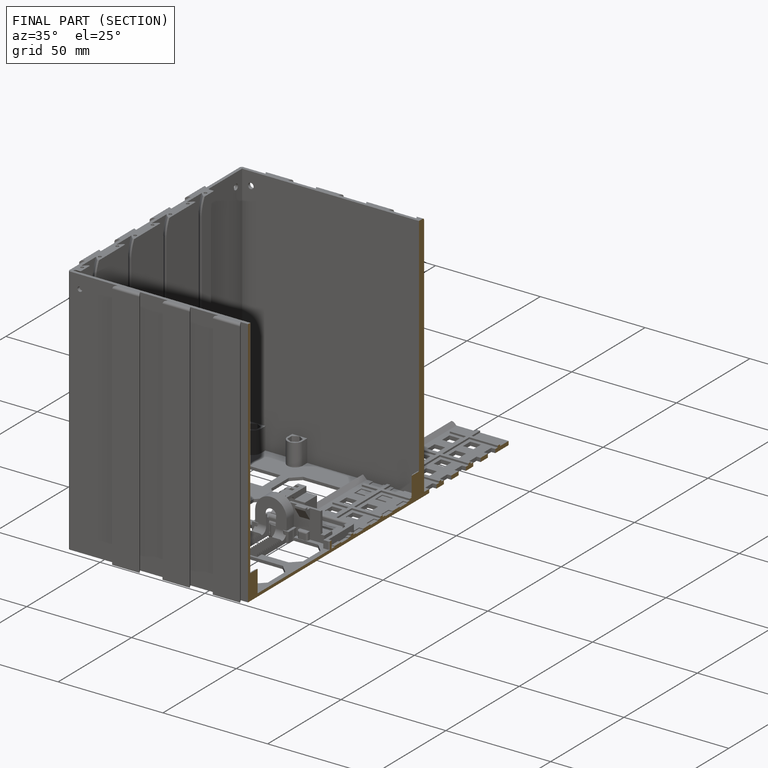
[diagram: finished part — half-section view (interior)]
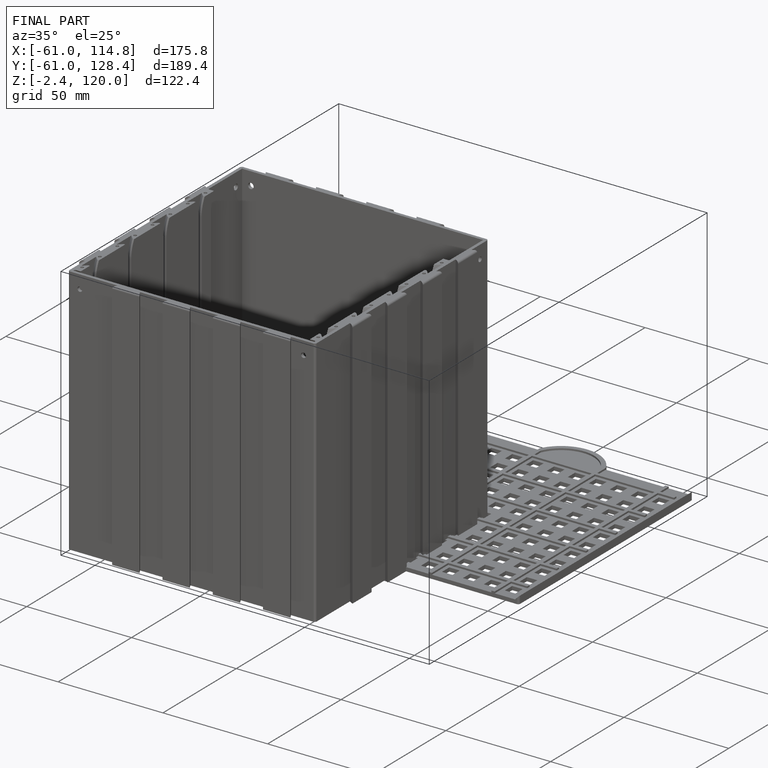
[diagram: finished part — iso view with bounding-box wireframe]
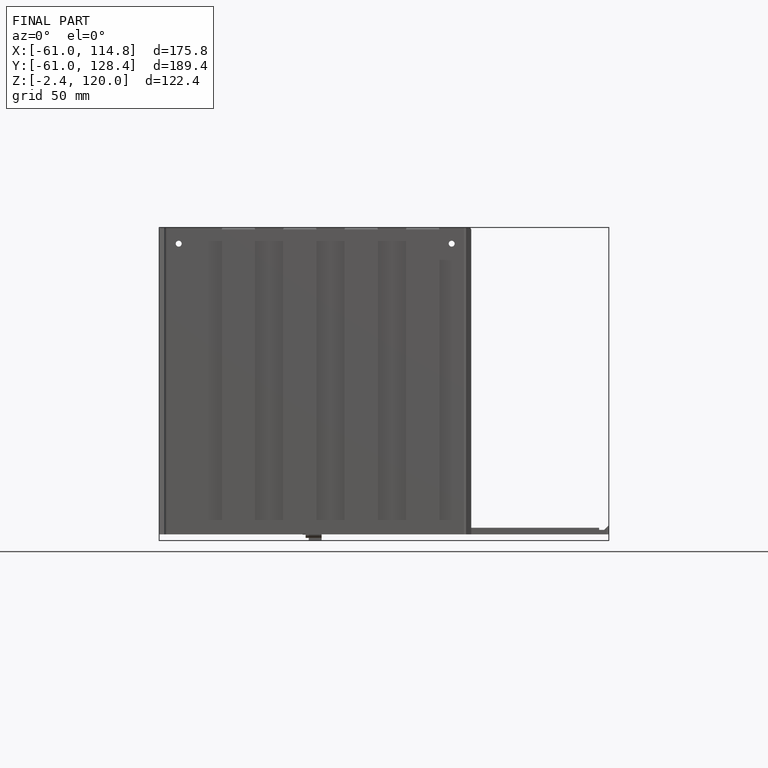
[diagram: finished part — front view with bounding-box wireframe]
